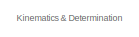
[diagram: root canvas - part 1/4, top center region]
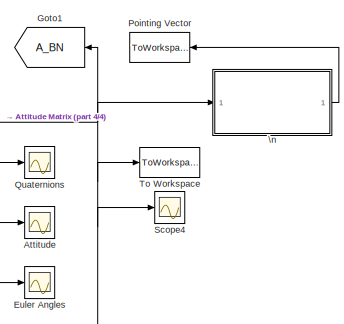
[diagram: root canvas - part 2/4, top right region]
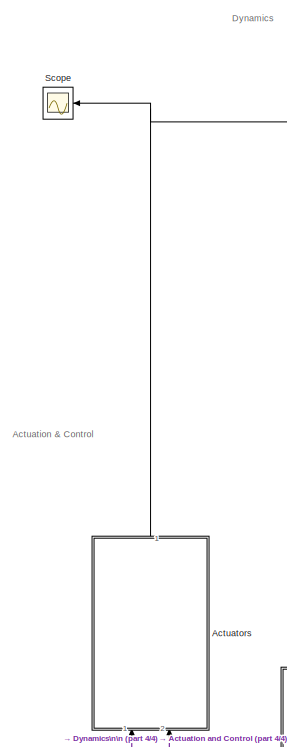
[diagram: root canvas - part 3/4, left side, full height]
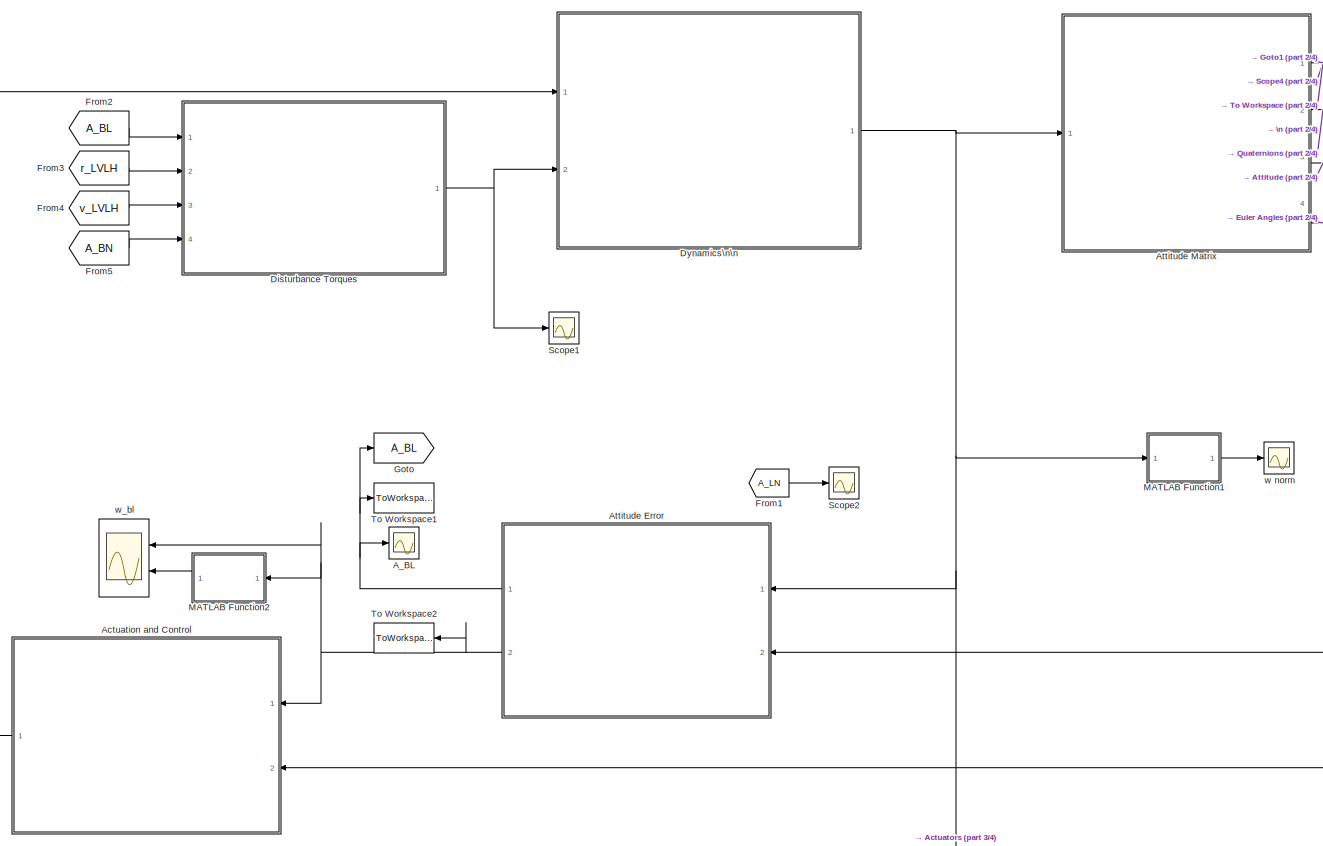
[diagram: root canvas - part 4/4, center side, full height]
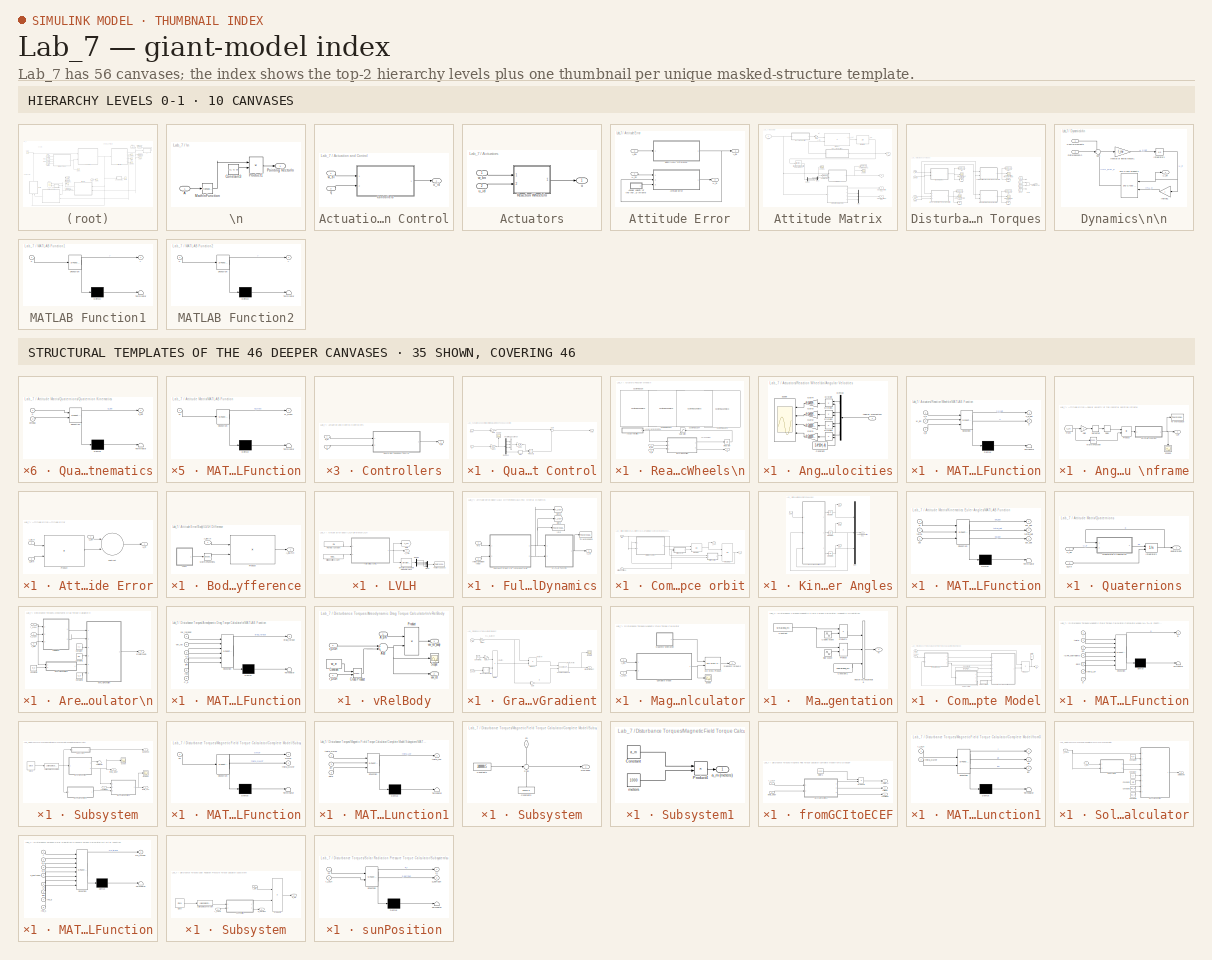
[diagram: thumbnail index - top-2 hierarchy levels (10 canvases) + 35 structural-template representatives of the remaining 46 canvases]
MODEL Lab_7
KIND model
BLOCK [Scope] A_BL
  Floating = off
  NumInputPorts = 1
  Ports = [1]
  SID = 1139
  ScopeSpecificationString = Simulink.scopes.TimeScopeBlockCfg('CurrentConfiguration', extmgr.ConfigurationSet(extmgr.Configuration('Core','General UI',true),extmgr.Configuration('Core','Source UI',true),extmgr.Configuration('Sources','WiredSimulink',true,'DataLoggingVariableName','ScopeData1'),extmgr.Configuration('Visuals','Time Domain',true,'SerializedDisplays',{struct('MinYLimReal','-1.24956','MaxYLimReal','1.24607','YLab...<+1593ch>
BLOCK [SubSystem] Actuation and Control
  Ports = [2, 1]
  RequestExecContextInheritance = off
  SID = 1421
BLOCK [SubSystem] Actuation and Control/Controllers
  Ports = [2, 1]
  RequestExecContextInheritance = off
  SID = 1476
BLOCK [SubSystem] Actuation and Control/Controllers/Quaternion Feedback Control
  Ports = [2, 1]
  RequestExecContextInheritance = off
  SID = 1482
BLOCK [Demux] Actuation and Control/Controllers/Quaternion Feedback Control/Demux2
  DisplayOption = bar
  Ports = [1, 4]
  SID = 1463
BLOCK [Gain] Actuation and Control/Controllers/Quaternion Feedback Control/Gain
  Gain = k_p
  OutDataTypeStr = Inherit: Inherit via internal rule
  ParamDataTypeStr = Inherit: Inherit via internal rule
  SID = 1472
  SaturateOnIntegerOverflow = off
BLOCK [Gain] Actuation and Control/Controllers/Quaternion Feedback Control/Gain1
  Gain = k_d
  OutDataTypeStr = Inherit: Inherit via internal rule
  ParamDataTypeStr = Inherit: Inherit via internal rule
  SID = 1465
  SaturateOnIntegerOverflow = off
BLOCK [Gain] Actuation and Control/Controllers/Quaternion Feedback Control/Gain2
  Gain = Q_C
  Multiplication = Matrix(K*u)
  OutDataTypeStr = Inherit: Inherit via internal rule
  ParamDataTypeStr = Inherit: Inherit via internal rule
  SID = 1466
  SaturateOnIntegerOverflow = off
BLOCK [Product] Actuation and Control/Controllers/Quaternion Feedback Control/Product2
  InputSameDT = off
  OutDataTypeStr = Inherit: Inherit via internal rule
  Ports = [2, 1]
  RndMeth = Floor
  SID = 1467
  SaturateOnIntegerOverflow = off
BLOCK [Scope] Actuation and Control/Controllers/Quaternion Feedback Control/Scope
  Floating = off
  NumInputPorts = 1
  Ports = [1]
  SID = 1468
  ScopeSpecificationString = Simulink.scopes.TimeScopeBlockCfg('CurrentConfiguration', extmgr.ConfigurationSet(extmgr.Configuration('Core','General UI',true),extmgr.Configuration('Core','Source UI',true),extmgr.Configuration('Sources','WiredSimulink',true,'DataLoggingVariableName','ScopeData9'),extmgr.Configuration('Visuals','Time Domain',true,'SerializedDisplays',{struct('MinYLimReal','-1.152','MaxYLimReal','1.239','YLabelRe...<+1382ch>
BLOCK [Signum] Actuation and Control/Controllers/Quaternion Feedback Control/Sign
  SID = 1469
BLOCK [Sum] Actuation and Control/Controllers/Quaternion Feedback Control/Sum
  IconShape = round
  InputSameDT = off
  Inputs = |++
  OutDataTypeStr = Inherit: Inherit via internal rule
  Ports = [2, 1]
  SID = 1455
  SaturateOnIntegerOverflow = off
BLOCK [Concatenate] Actuation and Control/Controllers/Quaternion Feedback Control/Vector\nConcatenate1
  NumInputs = 3
  Ports = [3, 1]
  SID = 1471
BLOCK [Inport] Actuation and Control/Controllers/Quaternion Feedback Control/q
  IconDisplay = Port number
  Port = 2
  SID = 1484
BLOCK [Outport] Actuation and Control/Controllers/Quaternion Feedback Control/u_id
  IconDisplay = Port number
  SID = 1487
BLOCK [Inport] Actuation and Control/Controllers/Quaternion Feedback Control/w_bl
  IconDisplay = Port number
  SID = 1483
BLOCK [Inport] Actuation and Control/Controllers/q
  IconDisplay = Port number
  Port = 2
  SID = 1478
BLOCK [Outport] Actuation and Control/Controllers/u_id
  IconDisplay = Port number
  SID = 1481
BLOCK [Inport] Actuation and Control/Controllers/w_bl
  IconDisplay = Port number
  SID = 1477
BLOCK [Inport] Actuation and Control/q
  IconDisplay = Port number
  Port = 2
  SID = 1423
BLOCK [Outport] Actuation and Control/u_id
  IconDisplay = Port number
  SID = 1460
BLOCK [Inport] Actuation and Control/w_bl
  IconDisplay = Port number
  SID = 1422
BLOCK [SubSystem] Actuators
  Ports = [2, 1]
  RequestExecContextInheritance = off
  SID = 1445
BLOCK [SubSystem] Actuators/Reaction Wheels\n
  Ports = [2, 1]
  RequestExecContextInheritance = off
  SID = 1562
BLOCK [SubSystem] Actuators/Reaction Wheels\n/Angular Velocities
  Ports = [1]
  RequestExecContextInheritance = off
  SID = 1575
BLOCK [Inport] Actuators/Reaction Wheels\n/Angular Velocities/Angular Momentum
  IconDisplay = Port number
  SID = 1576
BLOCK [Constant] Actuators/Reaction Wheels\n/Angular Velocities/Constant
  SID = 1557
  Value = 3.4*10^(-4)
BLOCK [Demux] Actuators/Reaction Wheels\n/Angular Velocities/Demux
  DisplayOption = bar
  Ports = [1, 4]
  SID = 1552
BLOCK [Product] Actuators/Reaction Wheels\n/Angular Velocities/Divide
  InputSameDT = off
  Inputs = */
  OutDataTypeStr = Inherit: Inherit via internal rule
  Ports = [2, 1]
  RndMeth = Floor
  SID = 1553
  SaturateOnIntegerOverflow = off
BLOCK [Product] Actuators/Reaction Wheels\n/Angular Velocities/Divide1
  InputSameDT = off
  Inputs = */
  OutDataTypeStr = Inherit: Inherit via internal rule
  Ports = [2, 1]
  RndMeth = Floor
  SID = 1554
  SaturateOnIntegerOverflow = off
BLOCK [Product] Actuators/Reaction Wheels\n/Angular Velocities/Divide2
  InputSameDT = off
  Inputs = */
  OutDataTypeStr = Inherit: Inherit via internal rule
  Ports = [2, 1]
  RndMeth = Floor
  SID = 1555
  SaturateOnIntegerOverflow = off
BLOCK [Product] Actuators/Reaction Wheels\n/Angular Velocities/Divide3
  InputSameDT = off
  Inputs = */
  OutDataTypeStr = Inherit: Inherit via internal rule
  Ports = [2, 1]
  RndMeth = Floor
  SID = 1556
  SaturateOnIntegerOverflow = off
BLOCK [Gain] Actuators/Reaction Wheels\n/Angular Velocities/Gain1
  Gain = 9.5492965964254
  OutDataTypeStr = Inherit: Inherit via internal rule
  ParamDataTypeStr = Inherit: Inherit via internal rule
  SID = 1540
  SaturateOnIntegerOverflow = off
BLOCK [Gain] Actuators/Reaction Wheels\n/Angular Velocities/Gain2
  Gain = 9.5492965964254
  OutDataTypeStr = Inherit: Inherit via internal rule
  ParamDataTypeStr = Inherit: Inherit via internal rule
  SID = 1559
  SaturateOnIntegerOverflow = off
BLOCK [Gain] Actuators/Reaction Wheels\n/Angular Velocities/Gain3
  Gain = 9.5492965964254
  OutDataTypeStr = Inherit: Inherit via internal rule
  ParamDataTypeStr = Inherit: Inherit via internal rule
  SID = 1560
  SaturateOnIntegerOverflow = off
BLOCK [Gain] Actuators/Reaction Wheels\n/Angular Velocities/Gain4
  Gain = 9.5492965964254
  OutDataTypeStr = Inherit: Inherit via internal rule
  ParamDataTypeStr = Inherit: Inherit via internal rule
  SID = 1561
  SaturateOnIntegerOverflow = off
BLOCK [Scope] Actuators/Reaction Wheels\n/Angular Velocities/Scope
  Floating = off
  NumInputPorts = 4
  Ports = [4]
  SID = 1558
  ScopeSpecificationString = Simulink.scopes.TimeScopeBlockCfg('CurrentConfiguration', extmgr.ConfigurationSet(extmgr.Configuration('Core','General UI',true),extmgr.Configuration('Core','Source UI',true),extmgr.Configuration('Sources','WiredSimulink',true,'DataLoggingVariableName','ScopeData4'),extmgr.Configuration('Visuals','Time Domain',true,'SerializedDisplays',{struct('MinYLimReal','-520.46576','MaxYLimReal','422.1388','Y...<+1400ch>
BLOCK [CustomGaugeBlock] Actuators/Reaction Wheels\n/Custom Gauge
  BackgroundImage = data:image/svg+xml;base64,PD94bWwgdmVyc2lvbj0iMS4wIiBlbmNvZGluZz0iVVRGLTgiIHN0YW5kYWxvbmU9Im5vIj8+CjwhLS0gR2VuZXJhdG9yOiBBZG9iZSBJbGx1c3RyYXRvciAxOS4yLjEsIFNWRyBFeHBvcnQgUGx1Zy1JbiAuIFNWRyBWZXJzaW9uOiA2LjAwIEJ1aWxkIDApICAtLT4KCjxzdmcKICAgeG1sbnM6ZGM9Imh0dHA6Ly9wdXJsLm9yZy9kYy9lbGVtZW50cy8xLjEvIgogICB4bWxuczpjYz0iaHR0cDovL2NyZWF0aXZlY29tbW9ucy5vcmcvbnMjIgogICB4bWxuczpyZGY9Imh0dHA6Ly93d3cudzMub3JnLz...<+9686ch>  <repeated x4 — deduplicated; at blocks: Custom Gauge, Custom Gauge1, Custom Gauge3, Custom Gauge4>
  BindingPersistence = DataTag0
  GaugeArcDefined = true
  GaugeArcRadius = 0.1358563990074277
  GaugeArcRatio = 0.8333333333333
  GaugeArcRotation = 240.5385250290321
  GaugeArcStrokeWidth = 0.03972965542329953
  GaugeArcTransparency = 0
  GaugeMax = 6000
  GaugeMin = -6000
  GaugeTickColor = #faf5c8
  NeedleHeight = 0.11602152693163792
  NeedleImage = data:image/svg+xml;base64,PD94bWwgdmVyc2lvbj0iMS4wIiBlbmNvZGluZz0idXRmLTgiPz4KPCEtLSBHZW5lcmF0b3I6IEFkb2JlIElsbHVzdHJhdG9yIDE5LjIuMSwgU1ZHIEV4cG9ydCBQbHVnLUluIC4gU1ZHIFZlcnNpb246IDYuMDAgQnVpbGQgMCkgIC0tPgo8c3ZnIHZlcnNpb249IjEuMSIgeG1sbnM9Imh0dHA6Ly93d3cudzMub3JnLzIwMDAvc3ZnIiB4bWxuczp4bGluaz0iaHR0cDovL3d3dy53My5vcmcvMTk5OS94bGluayIgeD0iMHB4IiB5PSIwcHgiCgkgdmlld0JveD0iMCAwIDIwMCA1MCIgc3R5bGU9ImVuYW...<+9966ch>  <repeated x4 — deduplicated; at blocks: Custom Gauge, Custom Gauge1, Custom Gauge3, Custom Gauge4>
  NeedleInitialRotation = -59.94322499147643
  NeedleWidth = 0.1911368983686954
  NeedleXPos = 0.3802298124325669
  NeedleYPos = 0.48117305677424654
  SID = 1566
  ScaleColorsJSON = []
  ValueArcColor = #1759b0
  WebBlockId = 1566
  fixedAspectRatio = on
BLOCK [CustomGaugeBlock] Actuators/Reaction Wheels\n/Custom Gauge1
  BindingPersistence = DataTag1
  GaugeArcDefined = true
  GaugeArcRadius = 0.1358563990074277
  GaugeArcRatio = 0.8333333333333
  GaugeArcRotation = 240.5385250290321
  GaugeArcStrokeWidth = 0.03972965542329953
  GaugeArcTransparency = 0
  GaugeMax = 6000
  GaugeMin = -6000
  GaugeTickColor = #faf5c8
  NeedleHeight = 0.11602152693163792
  NeedleInitialRotation = -59.94322499147643
  NeedleWidth = 0.1911368983686954
  NeedleXPos = 0.3802298124325669
  NeedleYPos = 0.48117305677424654
  SID = 1574
  ScaleColorsJSON = []
  ValueArcColor = #1759b0
  WebBlockId = 1574
  fixedAspectRatio = on
BLOCK [CustomGaugeBlock] Actuators/Reaction Wheels\n/Custom Gauge3
  BindingPersistence = DataTag2
  GaugeArcDefined = true
  GaugeArcRadius = 0.1358563990074277
  GaugeArcRatio = 0.8333333333333
  GaugeArcRotation = 240.5385250290321
  GaugeArcStrokeWidth = 0.03972965542329953
  GaugeArcTransparency = 0
  GaugeMax = 6000
  GaugeMin = -6000
  GaugeTickColor = #faf5c8
  NeedleHeight = 0.11602152693163792
  NeedleInitialRotation = -59.94322499147643
  NeedleWidth = 0.1911368983686954
  NeedleXPos = 0.3802298124325669
  NeedleYPos = 0.48117305677424654
  SID = 1572
  ScaleColorsJSON = []
  ValueArcColor = #1759b0
  WebBlockId = 1572
  fixedAspectRatio = on
BLOCK [CustomGaugeBlock] Actuators/Reaction Wheels\n/Custom Gauge4
  BindingPersistence = DataTag3
  GaugeArcDefined = true
  GaugeArcRadius = 0.1358563990074277
  GaugeArcRatio = 0.8333333333333
  GaugeArcRotation = 240.5385250290321
  GaugeArcStrokeWidth = 0.03972965542329953
  GaugeArcTransparency = 0
  GaugeMax = 6000
  GaugeMin = -6000
  GaugeTickColor = #faf5c8
  NeedleHeight = 0.11602152693163792
  NeedleInitialRotation = -59.94322499147643
  NeedleWidth = 0.1911368983686954
  NeedleXPos = 0.3802298124325669
  NeedleYPos = 0.48117305677424654
  SID = 1573
  ScaleColorsJSON = []
  ValueArcColor = #1759b0
  WebBlockId = 1573
  fixedAspectRatio = on
BLOCK [Integrator] Actuators/Reaction Wheels\n/Integrator
  InitialCondition = [0,0,0,0]
  LimitOutput = on
  LowerSaturationLimit = -0.02
  Ports = [1, 1]
  SID = 1448
  UpperSaturationLimit = 0.02
BLOCK [SubSystem] Actuators/Reaction Wheels\n/MATLAB Function
  ErrorFcn = Stateflow.Translate.translate
  PermitHierarchicalResolution = ExplicitOnly
  Ports = [3, 2]
  RequestExecContextInheritance = off
  SFBlockType = MATLAB Function
  SID = 1449
  TreatAsAtomicUnit = on
BLOCK [Demux] Actuators/Reaction Wheels\n/MATLAB Function/ Demux 
  Outputs = 1
  Ports = [1, 1]
  SID = 1449::29
BLOCK [S-Function] Actuators/Reaction Wheels\n/MATLAB Function/ SFunction 
  EnableBusSupport = on
  FunctionName = sf_sfun
  PortCounts = [3 3]
  Ports = [3, 3]
  SFcnIsStateOwnerBlock = off
  SFunctionDeploymentMode = off
  SID = 1449::28
  Tag = Stateflow S-Function Lab_7 16
BLOCK [Terminator] Actuators/Reaction Wheels\n/MATLAB Function/ Terminator 
  SID = 1449::30
BLOCK [Inport] Actuators/Reaction Wheels\n/MATLAB Function/h_d
  IconDisplay = Port number
  SID = 1449::23
BLOCK [Outport] Actuators/Reaction Wheels\n/MATLAB Function/h_d_dot
  IconDisplay = Port number
  SID = 1449::26
BLOCK [Outport] Actuators/Reaction Wheels\n/MATLAB Function/u
  IconDisplay = Port number
  Port = 2
  SID = 1449::27
BLOCK [Inport] Actuators/Reaction Wheels\n/MATLAB Function/u_id
  IconDisplay = Port number
  Port = 3
  SID = 1449::25
BLOCK [Inport] Actuators/Reaction Wheels\n/MATLAB Function/w_bn
  IconDisplay = Port number
  Port = 2
  SID = 1449::24
BLOCK [Saturate] Actuators/Reaction Wheels\n/Saturation
  InputPortMap = u0
  LowerLimit = -0.2
  Ports = [1, 1]
  SID = 1450
  UpperLimit = 0.2
BLOCK [Outport] Actuators/Reaction Wheels\n/u
  IconDisplay = Port number
  SID = 1565
BLOCK [Inport] Actuators/Reaction Wheels\n/u_id
  IconDisplay = Port number
  Port = 2
  SID = 1564
BLOCK [Inport] Actuators/Reaction Wheels\n/w_bn
  IconDisplay = Port number
  SID = 1563
BLOCK [Outport] Actuators/u
  IconDisplay = Port number
  SID = 1452
BLOCK [Inport] Actuators/u_id
  IconDisplay = Port number
  Port = 2
  SID = 1447
BLOCK [Inport] Actuators/w_bn
  IconDisplay = Port number
  SID = 1446
BLOCK [Scope] Attitude
  Floating = off
  NumInputPorts = 1
  Ports = [1]
  SID = 1140
  ScopeSpecificationString = Simulink.scopes.TimeScopeBlockCfg('CurrentConfiguration', extmgr.ConfigurationSet(extmgr.Configuration('Core','General UI',true),extmgr.Configuration('Core','Source UI',true),extmgr.Configuration('Sources','WiredSimulink',true,'DataLoggingVariableName','ScopeData2'),extmgr.Configuration('Visuals','Time Domain',true,'SerializedDisplays',{struct('MinYLimReal','-3.00854','MaxYLimReal','2.65787','YLab...<+1540ch>
BLOCK [SubSystem] Attitude Error
  Ports = [2, 2]
  RequestExecContextInheritance = off
  SID = 1141
BLOCK [Outport] Attitude Error/A_BL
  IconDisplay = Port number
  SID = 1202
BLOCK [Inport] Attitude Error/A_BN
  IconDisplay = Port number
  Port = 2
  SID = 1143
BLOCK [SubSystem] Attitude Error/Angular velocity of the \norbital pointing \nframe
  Ports = [0, 1]
  RequestExecContextInheritance = off
  SID = 1144
BLOCK [Delay] Attitude Error/Angular velocity of the \norbital pointing \nframe/Delay
  DelayLength = 1
  InputPortMap = u0
  Ports = [1, 1]
  SID = 1475
BLOCK [Derivative] Attitude Error/Angular velocity of the \norbital pointing \nframe/Derivative
  SID = 1145
BLOCK [From] Attitude Error/Angular velocity of the \norbital pointing \nframe/From
  GotoTag = A_LN
  SID = 1146
  TagVisibility = global
BLOCK [Gain] Attitude Error/Angular velocity of the \norbital pointing \nframe/Gain
  Gain = -1
  OutDataTypeStr = Inherit: Inherit via internal rule
  ParamDataTypeStr = Inherit: Inherit via internal rule
  SID = 1147
  SaturateOnIntegerOverflow = off
BLOCK [SubSystem] Attitude Error/Angular velocity of the \norbital pointing \nframe/MATLAB Function
  ErrorFcn = Stateflow.Translate.translate
  PermitHierarchicalResolution = ExplicitOnly
  Ports = [1, 1]
  RequestExecContextInheritance = off
  SFBlockType = MATLAB Function
  SID = 1148
  TreatAsAtomicUnit = on
BLOCK [Demux] Attitude Error/Angular velocity of the \norbital pointing \nframe/MATLAB Function/ Demux 
  Outputs = 1
  Ports = [1, 1]
  SID = 1148::23
BLOCK [S-Function] Attitude Error/Angular velocity of the \norbital pointing \nframe/MATLAB Function/ SFunction 
  EnableBusSupport = on
  FunctionName = sf_sfun
  PortCounts = [1 2]
  Ports = [1, 2]
  SFcnIsStateOwnerBlock = off
  SFunctionDeploymentMode = off
  SID = 1148::22
  Tag = Stateflow S-Function Lab_7 8
BLOCK [Terminator] Attitude Error/Angular velocity of the \norbital pointing \nframe/MATLAB Function/ Terminator 
  SID = 1148::24
BLOCK [Outport] Attitude Error/Angular velocity of the \norbital pointing \nframe/MATLAB Function/w_ln
  IconDisplay = Port number
  SID = 1148::5
BLOCK [Inport] Attitude Error/Angular velocity of the \norbital pointing \nframe/MATLAB Function/w_ln_cross
  IconDisplay = Port number
  SID = 1148::1
BLOCK [Math] Attitude Error/Angular velocity of the \norbital pointing \nframe/Math\nFunction
  Operator = transpose
  Ports = [1, 1]
  SID = 1149
BLOCK [Product] Attitude Error/Angular velocity of the \norbital pointing \nframe/Product
  InputSameDT = off
  Multiplication = Matrix(*)
  OutDataTypeStr = Inherit: Inherit via internal rule
  Ports = [2, 1]
  RndMeth = Floor
  SID = 1150
  SaturateOnIntegerOverflow = off
BLOCK [Scope] Attitude Error/Angular velocity of the \norbital pointing \nframe/Scope3
  Floating = off
  NumInputPorts = 1
  Ports = [1]
  SID = 1151
  ScopeSpecificationString = Simulink.scopes.TimeScopeBlockCfg('CurrentConfiguration', extmgr.ConfigurationSet(extmgr.Configuration('Core','General UI',true),extmgr.Configuration('Core','Source UI',true),extmgr.Configuration('Sources','WiredSimulink',true,'DataLoggingVariableName','ScopeData1'),extmgr.Configuration('Visuals','Time Domain',true,'SerializedDisplays',{struct('MinYLimReal','-0.00118','MaxYLimReal','-0.00054','YLa...<+1489ch>
BLOCK [ToWorkspace] Attitude Error/Angular velocity of the \norbital pointing \nframe/To Workspace
  FixptAsFi = on
  MaxDataPoints = inf
  Ports = [1]
  SID = 1152
  SampleTime = -1
  Save2DSignal = 3-D array (concatenate along third dimension)
  VariableName = w_ln
BLOCK [Outport] Attitude Error/Angular velocity of the \norbital pointing \nframe/ω_ln
  IconDisplay = Port number
  SID = 1153
BLOCK [SubSystem] Attitude Error/Attitude Error
  Ports = [3, 1]
  RequestExecContextInheritance = off
  SID = 1154
BLOCK [Inport] Attitude Error/Attitude Error/A_BL\n
  IconDisplay = Port number
  Port = 2
  SID = 1156
BLOCK [Product] Attitude Error/Attitude Error/Product
  InputSameDT = off
  Multiplication = Matrix(*)
  OutDataTypeStr = Inherit: Inherit via internal rule
  Ports = [2, 1]
  RndMeth = Floor
  SID = 1158
  SaturateOnIntegerOverflow = off
BLOCK [Sum] Attitude Error/Attitude Error/Subtract
  InputSameDT = off
  Inputs = +-
  OutDataTypeStr = Inherit: Inherit via internal rule
  Ports = [2, 1]
  SID = 1159
  SaturateOnIntegerOverflow = off
BLOCK [Outport] Attitude Error/Attitude Error/ω_bl
  IconDisplay = Port number
  SID = 1160
BLOCK [Inport] Attitude Error/Attitude Error/ω_bn
  IconDisplay = Port number
  SID = 1155
BLOCK [Inport] Attitude Error/Attitude Error/ω_ln\n
  IconDisplay = Port number
  Port = 3
  SID = 1157
BLOCK [SubSystem] Attitude Error/Body\\LVLH Difference
  Ports = [1, 1]
  RequestExecContextInheritance = off
  SID = 1161
BLOCK [Outport] Attitude Error/Body\\LVLH Difference/A_BL\n\n 
  IconDisplay = Port number
  SID = 1201
BLOCK [Inport] Attitude Error/Body\\LVLH Difference/A_BN\n
  IconDisplay = Port number
  SID = 1162
BLOCK [SubSystem] Attitude Error/Body\\LVLH Difference/LVLH
  Ports = [0, 1]
  RequestExecContextInheritance = off
  SID = 1163
BLOCK [Outport] Attitude Error/Body\\LVLH Difference/LVLH/A_LN\n
  IconDisplay = Port number
  SID = 1198
BLOCK [Demux] Attitude Error/Body\\LVLH Difference/LVLH/Demux
  DisplayOption = bar
  Ports = [1, 4]
  SID = 1164
BLOCK [Reference] Attitude Error/Body\\LVLH Difference/LVLH/Direction Cosine Matrix \nto Quaternions  REF=sharedtransform/Direction Cosine Matrix \nto Quaternions
  Ports = [1, 1]
  SID = 1165
  SourceBlock = sharedtransform/Direction Cosine Matrix \nto Quaternions
  SourceProductBaseCode = AE
  SourceProductName = Aerospace Blockset
  SourceType = DCM2Quaternion
  aMode = 0
  action = None
  tolerance = eps(2)
BLOCK [SubSystem] Attitude Error/Body\\LVLH Difference/LVLH/Full Orbital Dynamics
  Ports = [2, 1]
  RequestExecContextInheritance = off
  SID = 1166
BLOCK [Outport] Attitude Error/Body\\LVLH Difference/LVLH/Full Orbital Dynamics/A_LN
  IconDisplay = Port number
  SID = 1192
BLOCK [SubSystem] Attitude Error/Body\\LVLH Difference/LVLH/Full Orbital Dynamics/Compute R and V of reference orbit
  Ports = [2, 2]
  RequestExecContextInheritance = off
  SID = 1170
BLOCK [Inport] Attitude Error/Body\\LVLH Difference/LVLH/Full Orbital Dynamics/Compute R and V of reference orbit/Initial Conditions
  IconDisplay = Port number
  Port = 2
  SID = 1172
BLOCK [SubSystem] Attitude Error/Body\\LVLH Difference/LVLH/Full Orbital Dynamics/Compute R and V of reference orbit/Initial Position
  Ports = [2, 1]
  RequestExecContextInheritance = off
  SID = 1173
BLOCK [Inport] Attitude Error/Body\\LVLH Difference/LVLH/Full Orbital Dynamics/Compute R and V of reference orbit/Initial Position/Initial Conditions
  IconDisplay = Port number
  Port = 2
  SID = 1175
BLOCK [SubSystem] Attitude Error/Body\\LVLH Difference/LVLH/Full Orbital Dynamics/Compute R and V of reference orbit/Initial Position/MATLAB Function2
  ErrorFcn = Stateflow.Translate.translate
  PermitHierarchicalResolution = ExplicitOnly
  Ports = [2, 1]
  RequestExecContextInheritance = off
  SFBlockType = MATLAB Function
  SID = 1176
  TreatAsAtomicUnit = on
BLOCK [Demux] Attitude Error/Body\\LVLH Difference/LVLH/Full Orbital Dynamics/Compute R and V of reference orbit/Initial Position/MATLAB Function2/ Demux 
  Outputs = 1
  Ports = [1, 1]
  SID = 1176::33
BLOCK [S-Function] Attitude Error/Body\\LVLH Difference/LVLH/Full Orbital Dynamics/Compute R and V of reference orbit/Initial Position/MATLAB Function2/ SFunction 
  EnableBusSupport = on
  FunctionName = sf_sfun
  PortCounts = [2 2]
  Ports = [2, 2]
  SFcnIsStateOwnerBlock = off
  SFunctionDeploymentMode = off
  SID = 1176::32
  Tag = Stateflow S-Function Lab_7 9
BLOCK [Terminator] Attitude Error/Body\\LVLH Difference/LVLH/Full Orbital Dynamics/Compute R and V of reference orbit/Initial Position/MATLAB Function2/ Terminator 
  SID = 1176::34
BLOCK [Inport] Attitude Error/Body\\LVLH Difference/LVLH/Full Orbital Dynamics/Compute R and V of reference orbit/Initial Position/MATLAB Function2/kep
  IconDisplay = Port number
  SID = 1176::30
BLOCK [Inport] Attitude Error/Body\\LVLH Difference/LVLH/Full Orbital Dynamics/Compute R and V of reference orbit/Initial Position/MATLAB Function2/mu
  IconDisplay = Port number
  Port = 2
  SID = 1176::31
BLOCK [Outport] Attitude Error/Body\\LVLH Difference/LVLH/Full Orbital Dynamics/Compute R and V of reference orbit/Initial Position/MATLAB Function2/r_0
  IconDisplay = Port number
  SID = 1176::5
BLOCK [Inport] Attitude Error/Body\\LVLH Difference/LVLH/Full Orbital Dynamics/Compute R and V of reference orbit/Initial Position/mu
  IconDisplay = Port number
  SID = 1174
BLOCK [Outport] Attitude Error/Body\\LVLH Difference/LVLH/Full Orbital Dynamics/Compute R and V of reference orbit/Initial Position/r_0
  IconDisplay = Port number
  SID = 1177
BLOCK [SubSystem] Attitude Error/Body\\LVLH Difference/LVLH/Full Orbital Dynamics/Compute R and V of reference orbit/Initial Velocity
  Ports = [2, 1]
  RequestExecContextInheritance = off
  SID = 1178
BLOCK [Inport] Attitude Error/Body\\LVLH Difference/LVLH/Full Orbital Dynamics/Compute R and V of reference orbit/Initial Velocity/Initial Conditions
  IconDisplay = Port number
  Port = 2
  SID = 1180
BLOCK [SubSystem] Attitude Error/Body\\LVLH Difference/LVLH/Full Orbital Dynamics/Compute R and V of reference orbit/Initial Velocity/MATLAB Function1
  ErrorFcn = Stateflow.Translate.translate
  PermitHierarchicalResolution = ExplicitOnly
  Ports = [2, 1]
  RequestExecContextInheritance = off
  SFBlockType = MATLAB Function
  SID = 1181
  TreatAsAtomicUnit = on
BLOCK [Demux] Attitude Error/Body\\LVLH Difference/LVLH/Full Orbital Dynamics/Compute R and V of reference orbit/Initial Velocity/MATLAB Function1/ Demux 
  Outputs = 1
  Ports = [1, 1]
  SID = 1181::35
BLOCK [S-Function] Attitude Error/Body\\LVLH Difference/LVLH/Full Orbital Dynamics/Compute R and V of reference orbit/Initial Velocity/MATLAB Function1/ SFunction 
  EnableBusSupport = on
  FunctionName = sf_sfun
  PortCounts = [2 2]
  Ports = [2, 2]
  SFcnIsStateOwnerBlock = off
  SFunctionDeploymentMode = off
  SID = 1181::34
  Tag = Stateflow S-Function Lab_7 10
BLOCK [Terminator] Attitude Error/Body\\LVLH Difference/LVLH/Full Orbital Dynamics/Compute R and V of reference orbit/Initial Velocity/MATLAB Function1/ Terminator 
  SID = 1181::36
BLOCK [Inport] Attitude Error/Body\\LVLH Difference/LVLH/Full Orbital Dynamics/Compute R and V of reference orbit/Initial Velocity/MATLAB Function1/kep
  IconDisplay = Port number
  SID = 1181::32
BLOCK [Inport] Attitude Error/Body\\LVLH Difference/LVLH/Full Orbital Dynamics/Compute R and V of reference orbit/Initial Velocity/MATLAB Function1/mu
  IconDisplay = Port number
  Port = 2
  SID = 1181::33
BLOCK [Outport] Attitude Error/Body\\LVLH Difference/LVLH/Full Orbital Dynamics/Compute R and V of reference orbit/Initial Velocity/MATLAB Function1/r_dot_0
  IconDisplay = Port number
  SID = 1181::5
BLOCK [Inport] Attitude Error/Body\\LVLH Difference/LVLH/Full Orbital Dynamics/Compute R and V of reference orbit/Initial Velocity/mu
  IconDisplay = Port number
  SID = 1179
BLOCK [Outport] Attitude Error/Body\\LVLH Difference/LVLH/Full Orbital Dynamics/Compute R and V of reference orbit/Initial Velocity/r_dot_0
  IconDisplay = Port number
  SID = 1182
BLOCK [Integrator] Attitude Error/Body\\LVLH Difference/LVLH/Full Orbital Dynamics/Compute R and V of reference orbit/Integrator
  ContinuousStateAttributes = 'velocity'
  InitialCondition = [r,v]=kep2car(kep,mu);
  InitialConditionSource = external
  Ports = [2, 1]
  SID = 1183
BLOCK [Integrator] Attitude Error/Body\\LVLH Difference/LVLH/Full Orbital Dynamics/Compute R and V of reference orbit/Integrator2
  ContinuousStateAttributes = 'position'
  InitialCondition = [r,v]=kep2car(kep,mu);
  InitialConditionSource = external
  Ports = [2, 1]
  SID = 1184
BLOCK [SubSystem] Attitude Error/Body\\LVLH Difference/LVLH/Full Orbital Dynamics/Compute R and V of reference orbit/Orbital Dynamics
  ErrorFcn = Stateflow.Translate.translate
  PermitHierarchicalResolution = ExplicitOnly
  Ports = [2, 1]
  RequestExecContextInheritance = off
  SFBlockType = MATLAB Function
  SID = 1185
  TreatAsAtomicUnit = on
BLOCK [Demux] Attitude Error/Body\\LVLH Difference/LVLH/Full Orbital Dynamics/Compute R and V of reference orbit/Orbital Dynamics/ Demux 
  Outputs = 1
  Ports = [1, 1]
  SID = 1185::31
BLOCK [S-Function] Attitude Error/Body\\LVLH Difference/LVLH/Full Orbital Dynamics/Compute R and V of reference orbit/Orbital Dynamics/ SFunction 
  EnableBusSupport = on
  FunctionName = sf_sfun
  PortCounts = [2 2]
  Ports = [2, 2]
  SFcnIsStateOwnerBlock = off
  SFunctionDeploymentMode = off
  SID = 1185::30
  Tag = Stateflow S-Function Lab_7 11
BLOCK [Terminator] Attitude Error/Body\\LVLH Difference/LVLH/Full Orbital Dynamics/Compute R and V of reference orbit/Orbital Dynamics/ Terminator 
  SID = 1185::32
BLOCK [Inport] Attitude Error/Body\\LVLH Difference/LVLH/Full Orbital Dynamics/Compute R and V of reference orbit/Orbital Dynamics/mu
  IconDisplay = Port number
  Port = 2
  SID = 1185::29
BLOCK [Inport] Attitude Error/Body\\LVLH Difference/LVLH/Full Orbital Dynamics/Compute R and V of reference orbit/Orbital Dynamics/r
  IconDisplay = Port number
  SID = 1185::1
BLOCK [Outport] Attitude Error/Body\\LVLH Difference/LVLH/Full Orbital Dynamics/Compute R and V of reference orbit/Orbital Dynamics/r_dot_dot
  IconDisplay = Port number
  SID = 1185::5
BLOCK [Inport] Attitude Error/Body\\LVLH Difference/LVLH/Full Orbital Dynamics/Compute R and V of reference orbit/mu
  IconDisplay = Port number
  SID = 1171
BLOCK [Outport] Attitude Error/Body\\LVLH Difference/LVLH/Full Orbital Dynamics/Compute R and V of reference orbit/r
  IconDisplay = Port number
  SID = 1186
BLOCK [Outport] Attitude Error/Body\\LVLH Difference/LVLH/Full Orbital Dynamics/Compute R and V of reference orbit/r_dot
  IconDisplay = Port number
  Port = 2
  SID = 1187
BLOCK [Goto] Attitude Error/Body\\LVLH Difference/LVLH/Full Orbital Dynamics/Goto
  GotoTag = r_LVLH
  SID = 1188
  TagVisibility = global
BLOCK [Goto] Attitude Error/Body\\LVLH Difference/LVLH/Full Orbital Dynamics/Goto1
  GotoTag = v_LVLH
  SID = 1189
  TagVisibility = global
BLOCK [Inport] Attitude Error/Body\\LVLH Difference/LVLH/Full Orbital Dynamics/Initial Condition (kep)
  IconDisplay = Port number
  Port = 2
  SID = 1168
BLOCK [SubSystem] Attitude Error/Body\\LVLH Difference/LVLH/Full Orbital Dynamics/MATLAB Function
  ErrorFcn = Stateflow.Translate.translate
  PermitHierarchicalResolution = ExplicitOnly
  Ports = [2, 1]
  RequestExecContextInheritance = off
  SFBlockType = MATLAB Function
  SID = 1190
  TreatAsAtomicUnit = on
BLOCK [Demux] Attitude Error/Body\\LVLH Difference/LVLH/Full Orbital Dynamics/MATLAB Function/ Demux 
  Outputs = 1
  Ports = [1, 1]
  SID = 1190::24
BLOCK [S-Function] Attitude Error/Body\\LVLH Difference/LVLH/Full Orbital Dynamics/MATLAB Function/ SFunction 
  EnableBusSupport = on
  FunctionName = sf_sfun
  PortCounts = [2 2]
  Ports = [2, 2]
  SFcnIsStateOwnerBlock = off
  SFunctionDeploymentMode = off
  SID = 1190::23
  Tag = Stateflow S-Function Lab_7 12
BLOCK [Terminator] Attitude Error/Body\\LVLH Difference/LVLH/Full Orbital Dynamics/MATLAB Function/ Terminator 
  SID = 1190::25
BLOCK [Outport] Attitude Error/Body\\LVLH Difference/LVLH/Full Orbital Dynamics/MATLAB Function/A_LN
  IconDisplay = Port number
  SID = 1190::5
BLOCK [Inport] Attitude Error/Body\\LVLH Difference/LVLH/Full Orbital Dynamics/MATLAB Function/r
  IconDisplay = Port number
  SID = 1190::1
BLOCK [Inport] Attitude Error/Body\\LVLH Difference/LVLH/Full Orbital Dynamics/MATLAB Function/r_dot
  IconDisplay = Port number
  Port = 2
  SID = 1190::22
BLOCK [ToWorkspace] Attitude Error/Body\\LVLH Difference/LVLH/Full Orbital Dynamics/To Workspace
  FixptAsFi = on
  MaxDataPoints = inf
  Ports = [1]
  SID = 1191
  SampleTime = -1
  Save2DSignal = 3-D array (concatenate along third dimension)
  VariableName = A_LN
BLOCK [ToWorkspace] Attitude Error/Body\\LVLH Difference/LVLH/Full Orbital Dynamics/\n\n
  MaxDataPoints = inf
  Ports = [1]
  SID = 1169
  SampleTime = -1
  Save2DSignal = 3-D array (concatenate along third dimension)
  VariableName = r_LVLH
BLOCK [Inport] Attitude Error/Body\\LVLH Difference/LVLH/Full Orbital Dynamics/mu
  IconDisplay = Port number
  SID = 1167
BLOCK [Goto] Attitude Error/Body\\LVLH Difference/LVLH/Goto
  GotoTag = A_LN
  SID = 1193
  TagVisibility = global
BLOCK [Constant] Attitude Error/Body\\LVLH Difference/LVLH/Initial Conditions (KEP)
  SID = 1194
  Value = [a, e, i, OMG, omg, theta]
BLOCK [Mux] Attitude Error/Body\\LVLH Difference/LVLH/Mux1
  DisplayOption = bar
  Ports = [4, 1]
  SID = 1195
BLOCK [Constant] Attitude Error/Body\\LVLH Difference/LVLH/Planetary Constant
  SID = 1196
  Value = mu
BLOCK [ToWorkspace] Attitude Error/Body\\LVLH Difference/LVLH/To Workspace3
  FixptAsFi = on
  MaxDataPoints = inf
  Ports = [1]
  SID = 1197
  SampleTime = -1
  Save2DSignal = 3-D array (concatenate along third dimension)
  VariableName = q_ALN
BLOCK [Math] Attitude Error/Body\\LVLH Difference/Math\nFunction1
  Operator = transpose
  Ports = [1, 1]
  SID = 1199
BLOCK [Product] Attitude Error/Body\\LVLH Difference/Product
  InputSameDT = off
  Multiplication = Matrix(*)
  OutDataTypeStr = Inherit: Inherit via internal rule
  Ports = [2, 1]
  RndMeth = Floor
  SID = 1200
  SaturateOnIntegerOverflow = off
BLOCK [Outport] Attitude Error/ω_bl
  IconDisplay = Port number
  Port = 2
  SID = 1203
BLOCK [Inport] Attitude Error/ω_bn
  IconDisplay = Port number
  SID = 1142
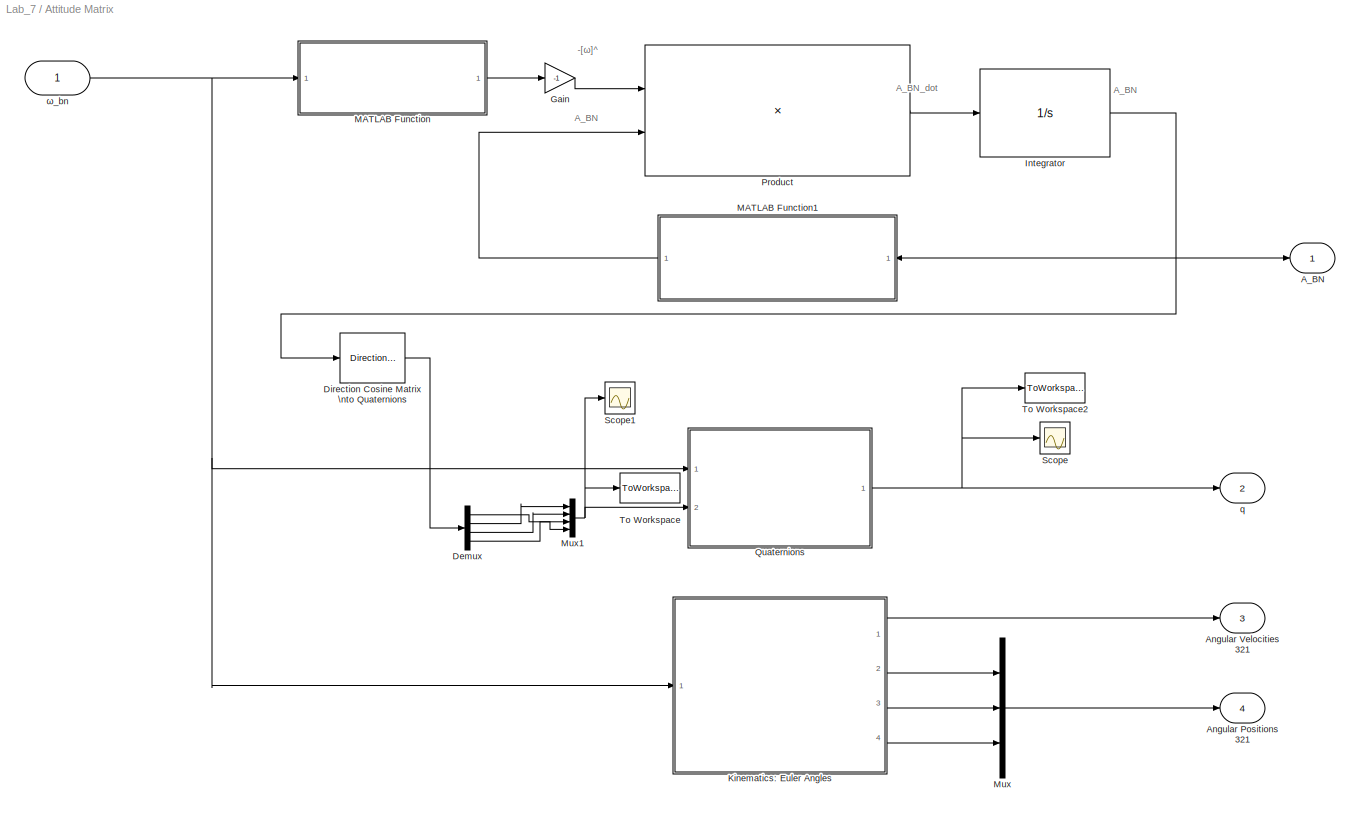
BLOCK [SubSystem] Attitude Matrix
  Ports = [1, 4]
  RequestExecContextInheritance = off
  SID = 1204
BLOCK [Outport] Attitude Matrix/A_BN
  IconDisplay = Port number
  SID = 1236
BLOCK [Outport] Attitude Matrix/Angular Positions 321
  IconDisplay = Port number
  Port = 4
  SID = 1239
BLOCK [Outport] Attitude Matrix/Angular Velocities 321
  IconDisplay = Port number
  Port = 3
  SID = 1238
BLOCK [Demux] Attitude Matrix/Demux
  DisplayOption = bar
  Ports = [1, 4]
  SID = 1206
BLOCK [Reference] Attitude Matrix/Direction Cosine Matrix \nto Quaternions  REF=sharedtransform/Direction Cosine Matrix \nto Quaternions
  Ports = [1, 1]
  SID = 1207
  SourceBlock = sharedtransform/Direction Cosine Matrix \nto Quaternions
  SourceProductBaseCode = AE
  SourceProductName = Aerospace Blockset
  SourceType = DCM2Quaternion
  aMode = 0
  action = None
  tolerance = eps(2)
BLOCK [Gain] Attitude Matrix/Gain
  Gain = -1
  OutDataTypeStr = Inherit: Inherit via internal rule
  ParamDataTypeStr = Inherit: Inherit via internal rule
  SID = 1208
  SaturateOnIntegerOverflow = off
BLOCK [Integrator] Attitude Matrix/Integrator
  InitialCondition = A_BN_0
  Ports = [1, 1]
  SID = 1209
BLOCK [SubSystem] Attitude Matrix/Kinematics: Euler Angles
  Ports = [1, 4]
  RequestExecContextInheritance = off
  SID = 1210
BLOCK [Outport] Attitude Matrix/Kinematics: Euler Angles/Angular Velocities 321
  IconDisplay = Port number
  SID = 1217
BLOCK [Integrator] Attitude Matrix/Kinematics: Euler Angles/Integrator
  InitialCondition = phi_0
  Ports = [1, 1]
  SID = 1212
BLOCK [Integrator] Attitude Matrix/Kinematics: Euler Angles/Integrator1
  InitialCondition = theta_0
  Ports = [1, 1]
  SID = 1213
BLOCK [Integrator] Attitude Matrix/Kinematics: Euler Angles/Integrator2
  InitialCondition = psi_0
  Ports = [1, 1]
  SID = 1214
BLOCK [SubSystem] Attitude Matrix/Kinematics: Euler Angles/MATLAB Function
  ErrorFcn = Stateflow.Translate.translate
  PermitHierarchicalResolution = ExplicitOnly
  Ports = [3, 3]
  RequestExecContextInheritance = off
  SFBlockType = MATLAB Function
  SID = 1215
  TreatAsAtomicUnit = on
BLOCK [Demux] Attitude Matrix/Kinematics: Euler Angles/MATLAB Function/ Demux 
  Outputs = 1
  Ports = [1, 1]
  SID = 1215::31
BLOCK [S-Function] Attitude Matrix/Kinematics: Euler Angles/MATLAB Function/ SFunction 
  EnableBusSupport = on
  FunctionName = sf_sfun
  PortCounts = [3 4]
  Ports = [3, 4]
  SFcnIsStateOwnerBlock = off
  SFunctionDeploymentMode = off
  SID = 1215::30
  Tag = Stateflow S-Function Lab_7 1
BLOCK [Terminator] Attitude Matrix/Kinematics: Euler Angles/MATLAB Function/ Terminator 
  SID = 1215::32
BLOCK [Outport] Attitude Matrix/Kinematics: Euler Angles/MATLAB Function/phi_dot
  IconDisplay = Port number
  SID = 1215::25
BLOCK [Inport] Attitude Matrix/Kinematics: Euler Angles/MATLAB Function/psi
  IconDisplay = Port number
  Port = 3
  SID = 1215::29
BLOCK [Outport] Attitude Matrix/Kinematics: Euler Angles/MATLAB Function/psi_dot
  IconDisplay = Port number
  Port = 3
  SID = 1215::27
BLOCK [Inport] Attitude Matrix/Kinematics: Euler Angles/MATLAB Function/tetha
  IconDisplay = Port number
  Port = 2
  SID = 1215::28
BLOCK [Outport] Attitude Matrix/Kinematics: Euler Angles/MATLAB Function/tetha_dot
  IconDisplay = Port number
  Port = 2
  SID = 1215::26
BLOCK [Inport] Attitude Matrix/Kinematics: Euler Angles/MATLAB Function/w
  IconDisplay = Port number
  SID = 1215::1
BLOCK [Mux] Attitude Matrix/Kinematics: Euler Angles/Mux
  DisplayOption = bar
  Inputs = 3
  Ports = [3, 1]
  SID = 1216
BLOCK [Outport] Attitude Matrix/Kinematics: Euler Angles/phi
  IconDisplay = Port number
  Port = 2
  SID = 1218
BLOCK [Outport] Attitude Matrix/Kinematics: Euler Angles/psi
  IconDisplay = Port number
  Port = 4
  SID = 1220
BLOCK [Outport] Attitude Matrix/Kinematics: Euler Angles/theta
  IconDisplay = Port number
  Port = 3
  SID = 1219
BLOCK [Inport] Attitude Matrix/Kinematics: Euler Angles/ω_bn
  IconDisplay = Port number
  SID = 1211
BLOCK [SubSystem] Attitude Matrix/MATLAB Function
  ErrorFcn = Stateflow.Translate.translate
  PermitHierarchicalResolution = ExplicitOnly
  Ports = [1, 1]
  RequestExecContextInheritance = off
  SFBlockType = MATLAB Function
  SID = 1221
  TreatAsAtomicUnit = on
BLOCK [Demux] Attitude Matrix/MATLAB Function/ Demux 
  Outputs = 1
  Ports = [1, 1]
  SID = 1221::20
BLOCK [S-Function] Attitude Matrix/MATLAB Function/ SFunction 
  EnableBusSupport = on
  FunctionName = sf_sfun
  PortCounts = [1 2]
  Ports = [1, 2]
  SFcnIsStateOwnerBlock = off
  SFunctionDeploymentMode = off
  SID = 1221::19
  Tag = Stateflow S-Function Lab_7 2
BLOCK [Terminator] Attitude Matrix/MATLAB Function/ Terminator 
  SID = 1221::21
BLOCK [Inport] Attitude Matrix/MATLAB Function/w
  IconDisplay = Port number
  SID = 1221::1
BLOCK [Outport] Attitude Matrix/MATLAB Function/w_cross
  IconDisplay = Port number
  SID = 1221::5
BLOCK [SubSystem] Attitude Matrix/MATLAB Function1
  ErrorFcn = Stateflow.Translate.translate
  PermitHierarchicalResolution = ExplicitOnly
  Ports = [1, 1]
  RequestExecContextInheritance = off
  SFBlockType = MATLAB Function
  SID = 1222
  TreatAsAtomicUnit = on
BLOCK [Demux] Attitude Matrix/MATLAB Function1/ Demux 
  Outputs = 1
  Ports = [1, 1]
  SID = 1222::23
BLOCK [S-Function] Attitude Matrix/MATLAB Function1/ SFunction 
  EnableBusSupport = on
  FunctionName = sf_sfun
  PortCounts = [1 2]
  Ports = [1, 2]
  SFcnIsStateOwnerBlock = off
  SFunctionDeploymentMode = off
  SID = 1222::22
  Tag = Stateflow S-Function Lab_7 3
BLOCK [Terminator] Attitude Matrix/MATLAB Function1/ Terminator 
  SID = 1222::24
BLOCK [Inport] Attitude Matrix/MATLAB Function1/u
  IconDisplay = Port number
  SID = 1222::1
BLOCK [Outport] Attitude Matrix/MATLAB Function1/y
  IconDisplay = Port number
  SID = 1222::5
BLOCK [Mux] Attitude Matrix/Mux
  DisplayOption = bar
  Inputs = 3
  Ports = [3, 1]
  SID = 1223
BLOCK [Mux] Attitude Matrix/Mux1
  DisplayOption = bar
  Ports = [4, 1]
  SID = 1224
BLOCK [Product] Attitude Matrix/Product
  InputSameDT = off
  Multiplication = Matrix(*)
  OutDataTypeStr = Inherit: Inherit via internal rule
  Ports = [2, 1]
  RndMeth = Floor
  SID = 1225
  SaturateOnIntegerOverflow = off
BLOCK [SubSystem] Attitude Matrix/Quaternions
  Ports = [2, 1]
  RequestExecContextInheritance = off
  SID = 1226
BLOCK [Integrator] Attitude Matrix/Quaternions/Integrator2
  InitialCondition = q_0
  InitialConditionSource = external
  Ports = [2, 1]
  SID = 1229
BLOCK [SubSystem] Attitude Matrix/Quaternions/Quaternion Kinematics
  ErrorFcn = Stateflow.Translate.translate
  PermitHierarchicalResolution = ExplicitOnly
  Ports = [2, 1]
  RequestExecContextInheritance = off
  SFBlockType = MATLAB Function
  SID = 1230
  TreatAsAtomicUnit = on
BLOCK [Demux] Attitude Matrix/Quaternions/Quaternion Kinematics/ Demux 
  Outputs = 1
  Ports = [1, 1]
  SID = 1230::29
BLOCK [S-Function] Attitude Matrix/Quaternions/Quaternion Kinematics/ SFunction 
  EnableBusSupport = on
  FunctionName = sf_sfun
  PortCounts = [2 2]
  Ports = [2, 2]
  SFcnIsStateOwnerBlock = off
  SFunctionDeploymentMode = off
  SID = 1230::28
  Tag = Stateflow S-Function Lab_7 4
BLOCK [Terminator] Attitude Matrix/Quaternions/Quaternion Kinematics/ Terminator 
  SID = 1230::30
BLOCK [Inport] Attitude Matrix/Quaternions/Quaternion Kinematics/omega
  IconDisplay = Port number
  Port = 2
  SID = 1230::18
BLOCK [Inport] Attitude Matrix/Quaternions/Quaternion Kinematics/q
  IconDisplay = Port number
  SID = 1230::1
BLOCK [Outport] Attitude Matrix/Quaternions/Quaternion Kinematics/q_dot
  IconDisplay = Port number
  SID = 1230::5
BLOCK [Inport] Attitude Matrix/Quaternions/q_0\n
  IconDisplay = Port number
  Port = 2
  SID = 1228
BLOCK [Outport] Attitude Matrix/Quaternions/quaternions
  IconDisplay = Port number
  SID = 1231
BLOCK [Inport] Attitude Matrix/Quaternions/ω_bn
  IconDisplay = Port number
  SID = 1227
BLOCK [Scope] Attitude Matrix/Scope
  Floating = off
  NumInputPorts = 1
  Ports = [1]
  SID = 1232
  ScopeSpecificationString = Simulink.scopes.TimeScopeBlockCfg('CurrentConfiguration', extmgr.ConfigurationSet(extmgr.Configuration('Core','General UI',true),extmgr.Configuration('Core','Source UI',true),extmgr.Configuration('Sources','WiredSimulink',true,'DataLoggingVariableName','ScopeData1'),extmgr.Configuration('Visuals','Time Domain',true,'SerializedDisplays',{struct('MinYLimReal','-0.80506','MaxYLimReal','1.2006','YLabe...<+1445ch>
BLOCK [Scope] Attitude Matrix/Scope1
  Floating = off
  NumInputPorts = 1
  Ports = [1]
  SID = 1233
  ScopeSpecificationString = Simulink.scopes.TimeScopeBlockCfg('CurrentConfiguration', extmgr.ConfigurationSet(extmgr.Configuration('Core','General UI',true),extmgr.Configuration('Core','Source UI',true),extmgr.Configuration('Sources','WiredSimulink',true,'DataLoggingVariableName','ScopeData2'),extmgr.Configuration('Visuals','Time Domain',true,'SerializedDisplays',{struct('MinYLimReal','-1.09716','MaxYLimReal','1.23302','YLab...<+1425ch>
BLOCK [ToWorkspace] Attitude Matrix/To Workspace
  FixptAsFi = on
  MaxDataPoints = inf
  Ports = [1]
  SID = 1234
  SampleTime = -1
  Save2DSignal = 3-D array (concatenate along third dimension)
  VariableName = q_from_ABN
BLOCK [ToWorkspace] Attitude Matrix/To Workspace2
  FixptAsFi = on
  MaxDataPoints = inf
  Ports = [1]
  SID = 1235
  SampleTime = -1
  Save2DSignal = 3-D array (concatenate along third dimension)
  VariableName = q
BLOCK [Outport] Attitude Matrix/q
  IconDisplay = Port number
  Port = 2
  SID = 1237
BLOCK [Inport] Attitude Matrix/ω_bn
  IconDisplay = Port number
  PortDimensions = 3
  SID = 1205
  Unit = rad/s
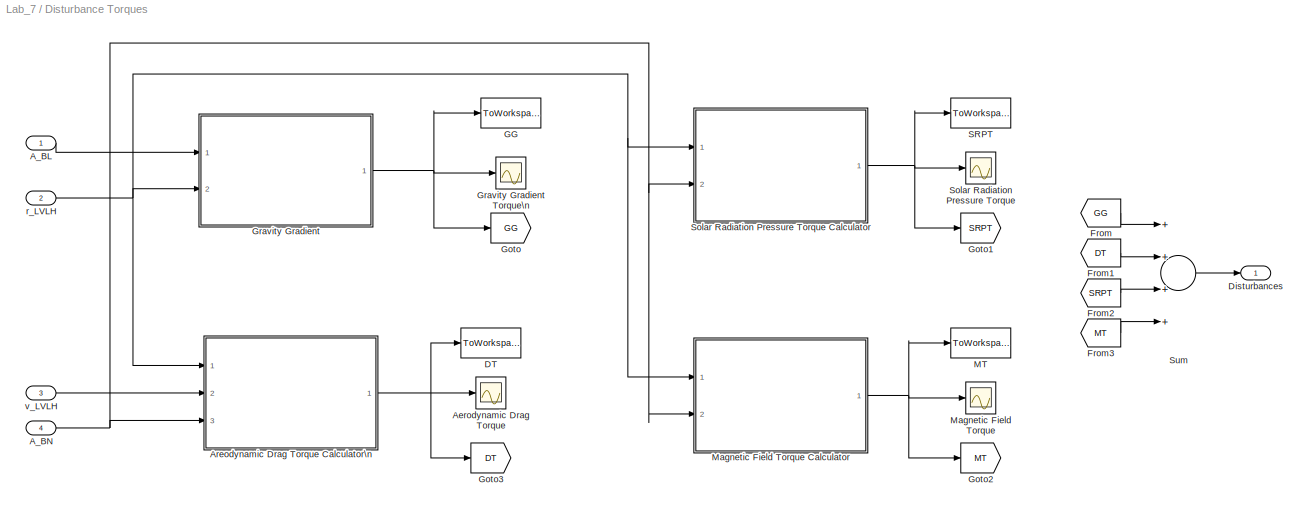
BLOCK [SubSystem] Disturbance Torques
  Ports = [4, 1]
  RequestExecContextInheritance = off
  SID = 1255
BLOCK [Inport] Disturbance Torques/A_BL
  IconDisplay = Port number
  SID = 1256
BLOCK [Inport] Disturbance Torques/A_BN
  IconDisplay = Port number
  Port = 4
  SID = 1259
BLOCK [Scope] Disturbance Torques/Aerodynamic Drag Torque
  Floating = off
  NumInputPorts = 1
  Ports = [1]
  SID = 1260
  ScopeSpecificationString = Simulink.scopes.TimeScopeBlockCfg('CurrentConfiguration', extmgr.ConfigurationSet(extmgr.Configuration('Core','General UI',true),extmgr.Configuration('Core','Source UI',true),extmgr.Configuration('Sources','WiredSimulink',true,'DataLoggingVariableName','ScopeData2'),extmgr.Configuration('Visuals','Time Domain',true,'SerializedDisplays',{struct('MinYLimReal','-0.000000024','MaxYLimReal','0.00000002...<+1554ch>
BLOCK [SubSystem] Disturbance Torques/Areodynamic Drag Torque Calculator\n
  Ports = [3, 1]
  RequestExecContextInheritance = off
  SID = 1261
BLOCK [Inport] Disturbance Torques/Areodynamic Drag Torque Calculator\n/A_BN
  IconDisplay = Port number
  Port = 3
  SID = 1264
BLOCK [Constant] Disturbance Torques/Areodynamic Drag Torque Calculator\n/Constant
  SID = 1265
  Value = A_i
BLOCK [Constant] Disturbance Torques/Areodynamic Drag Torque Calculator\n/Constant1
  SID = 1266
  Value = dim
BLOCK [Constant] Disturbance Torques/Areodynamic Drag Torque Calculator\n/Constant2
  SID = 1267
  Value = R_e
BLOCK [Constant] Disturbance Torques/Areodynamic Drag Torque Calculator\n/Constant3
  SID = 1268
  Value = C_d
BLOCK [SubSystem] Disturbance Torques/Areodynamic Drag Torque Calculator\n/MATLAB Function
  ErrorFcn = Stateflow.Translate.translate
  PermitHierarchicalResolution = ExplicitOnly
  Ports = [6, 1]
  RequestExecContextInheritance = off
  SFBlockType = MATLAB Function
  SID = 1269
  TreatAsAtomicUnit = on
BLOCK [Demux] Disturbance Torques/Areodynamic Drag Torque Calculator\n/MATLAB Function/ Demux 
  Outputs = 1
  Ports = [1, 1]
  SID = 1269::30
BLOCK [S-Function] Disturbance Torques/Areodynamic Drag Torque Calculator\n/MATLAB Function/ SFunction 
  EnableBusSupport = on
  FunctionName = sf_sfun
  PortCounts = [6 2]
  Ports = [6, 2]
  SFcnIsStateOwnerBlock = off
  SFunctionDeploymentMode = off
  SID = 1269::29
  Tag = Stateflow S-Function Lab_7 5
BLOCK [Terminator] Disturbance Torques/Areodynamic Drag Torque Calculator\n/MATLAB Function/ Terminator 
  SID = 1269::31
BLOCK [Inport] Disturbance Torques/Areodynamic Drag Torque Calculator\n/MATLAB Function/A_i
  IconDisplay = Port number
  Port = 3
  SID = 1269::22
BLOCK [Inport] Disturbance Torques/Areodynamic Drag Torque Calculator\n/MATLAB Function/C_d
  IconDisplay = Port number
  Port = 6
  SID = 1269::26
BLOCK [Inport] Disturbance Torques/Areodynamic Drag Torque Calculator\n/MATLAB Function/dim
  IconDisplay = Port number
  Port = 4
  SID = 1269::23
BLOCK [Outport] Disturbance Torques/Areodynamic Drag Torque Calculator\n/MATLAB Function/drag_torque
  IconDisplay = Port number
  SID = 1269::5
BLOCK [Inport] Disturbance Torques/Areodynamic Drag Torque Calculator\n/MATLAB Function/rho
  IconDisplay = Port number
  Port = 5
  SID = 1269::25
BLOCK [Inport] Disturbance Torques/Areodynamic Drag Torque Calculator\n/MATLAB Function/vw_rel
  IconDisplay = Port number
  Port = 2
  SID = 1269::32
BLOCK [Inport] Disturbance Torques/Areodynamic Drag Torque Calculator\n/MATLAB Function/vw_rel_body
  IconDisplay = Port number
  SID = 1269::1
BLOCK [SubSystem] Disturbance Torques/Areodynamic Drag Torque Calculator\n/MATLAB Function1
  ErrorFcn = Stateflow.Translate.translate
  PermitHierarchicalResolution = ExplicitOnly
  Ports = [2, 1]
  RequestExecContextInheritance = off
  SFBlockType = MATLAB Function
  SID = 1270
  TreatAsAtomicUnit = on
BLOCK [Demux] Disturbance Torques/Areodynamic Drag Torque Calculator\n/MATLAB Function1/ Demux 
  Outputs = 1
  Ports = [1, 1]
  SID = 1270::25
BLOCK [S-Function] Disturbance Torques/Areodynamic Drag Torque Calculator\n/MATLAB Function1/ SFunction 
  EnableBusSupport = on
  FunctionName = sf_sfun
  PortCounts = [2 2]
  Ports = [2, 2]
  SFcnIsStateOwnerBlock = off
  SFunctionDeploymentMode = off
  SID = 1270::24
  Tag = Stateflow S-Function Lab_7 7
BLOCK [Terminator] Disturbance Torques/Areodynamic Drag Torque Calculator\n/MATLAB Function1/ Terminator 
  SID = 1270::26
BLOCK [Inport] Disturbance Torques/Areodynamic Drag Torque Calculator\n/MATLAB Function1/R_e
  IconDisplay = Port number
  Port = 2
  SID = 1270::22
BLOCK [Inport] Disturbance Torques/Areodynamic Drag Torque Calculator\n/MATLAB Function1/r_LVLH
  IconDisplay = Port number
  SID = 1270::1
BLOCK [Outport] Disturbance Torques/Areodynamic Drag Torque Calculator\n/MATLAB Function1/rho
  IconDisplay = Port number
  SID = 1270::5
BLOCK [Outport] Disturbance Torques/Areodynamic Drag Torque Calculator\n/drag torque\n
  IconDisplay = Port number
  SID = 1282
BLOCK [Inport] Disturbance Torques/Areodynamic Drag Torque Calculator\n/r_LVLH
  IconDisplay = Port number
  SID = 1262
BLOCK [SubSystem] Disturbance Torques/Areodynamic Drag Torque Calculator\n/vRelBody
  Ports = [3, 2]
  RequestExecContextInheritance = off
  SID = 1271
BLOCK [Inport] Disturbance Torques/Areodynamic Drag Torque Calculator\n/vRelBody/A_BN
  IconDisplay = Port number
  Port = 3
  SID = 1274
BLOCK [Sum] Disturbance Torques/Areodynamic Drag Torque Calculator\n/vRelBody/Add
  InputSameDT = off
  OutDataTypeStr = Inherit: Inherit via internal rule
  Ports = [2, 1]
  SID = 1275
  SaturateOnIntegerOverflow = off
BLOCK [Constant] Disturbance Torques/Areodynamic Drag Torque Calculator\n/vRelBody/Constant
  SID = 1276
  Value = w_e
BLOCK [Reference] Disturbance Torques/Areodynamic Drag Torque Calculator\n/vRelBody/Cross Product  REF=vrlib/Utilities/Cross Product
  Ports = [2, 1]
  SID = 1277
  SourceBlock = vrlib/Utilities/Cross Product
  SourceProductBaseCode = VR
  SourceProductName = Simulink 3D Animation
  SourceType = Cross Product
BLOCK [Product] Disturbance Torques/Areodynamic Drag Torque Calculator\n/vRelBody/Product
  InputSameDT = off
  Multiplication = Matrix(*)
  OutDataTypeStr = Inherit: Inherit via internal rule
  Ports = [2, 1]
  RndMeth = Floor
  SID = 1278
  SaturateOnIntegerOverflow = off
BLOCK [Scope] Disturbance Torques/Areodynamic Drag Torque Calculator\n/vRelBody/Scope
  Floating = off
  NumInputPorts = 1
  Ports = [1]
  SID = 1279
  ScopeSpecificationString = Simulink.scopes.TimeScopeBlockCfg('CurrentConfiguration', extmgr.ConfigurationSet(extmgr.Configuration('Core','General UI',true),extmgr.Configuration('Core','Source UI',true),extmgr.Configuration('Sources','WiredSimulink',true,'DataLoggingVariableName','ScopeData2'),extmgr.Configuration('Visuals','Time Domain',true,'SerializedDisplays',{struct('MinYLimReal','-8.87875','MaxYLimReal','8.88104','YLab...<+1409ch>
BLOCK [Inport] Disturbance Torques/Areodynamic Drag Torque Calculator\n/vRelBody/r_LVLH
  IconDisplay = Port number
  SID = 1272
BLOCK [Inport] Disturbance Torques/Areodynamic Drag Torque Calculator\n/vRelBody/v_LVLH
  IconDisplay = Port number
  Port = 2
  SID = 1273
BLOCK [Outport] Disturbance Torques/Areodynamic Drag Torque Calculator\n/vRelBody/vw_rel
  IconDisplay = Port number
  Port = 2
  SID = 1281
BLOCK [Outport] Disturbance Torques/Areodynamic Drag Torque Calculator\n/vRelBody/vw_rel_body
  IconDisplay = Port number
  SID = 1280
BLOCK [Inport] Disturbance Torques/Areodynamic Drag Torque Calculator\n/v_LVLH
  IconDisplay = Port number
  Port = 2
  SID = 1263
BLOCK [ToWorkspace] Disturbance Torques/DT
  FixptAsFi = on
  MaxDataPoints = inf
  Ports = [1]
  SID = 1283
  SampleTime = -1
  Save2DSignal = 3-D array (concatenate along third dimension)
  VariableName = drag_torque
BLOCK [Outport] Disturbance Torques/Disturbances
  IconDisplay = Port number
  SID = 1389
BLOCK [From] Disturbance Torques/From
  GotoTag = GG
  SID = 1284
BLOCK [From] Disturbance Torques/From1
  GotoTag = DT
  SID = 1285
BLOCK [From] Disturbance Torques/From2
  GotoTag = SRPT
  SID = 1286
BLOCK [From] Disturbance Torques/From3
  GotoTag = MT
  SID = 1287
BLOCK [ToWorkspace] Disturbance Torques/GG
  FixptAsFi = on
  MaxDataPoints = inf
  Ports = [1]
  SID = 1288
  SampleTime = -1
  Save2DSignal = 3-D array (concatenate along third dimension)
  VariableName = GG
BLOCK [Goto] Disturbance Torques/Goto
  GotoTag = GG
  SID = 1289
BLOCK [Goto] Disturbance Torques/Goto1
  GotoTag = SRPT
  SID = 1290
BLOCK [Goto] Disturbance Torques/Goto2
  GotoTag = MT
  SID = 1291
BLOCK [Goto] Disturbance Torques/Goto3
  GotoTag = DT
  SID = 1292
BLOCK [SubSystem] Disturbance Torques/Gravity Gradient
  Ports = [2, 1]
  RequestExecContextInheritance = off
  SID = 1293
BLOCK [Scope] Disturbance Torques/Gravity Gradient Torque\n
  Floating = off
  NumInputPorts = 1
  Ports = [1]
  SID = 1311
  ScopeSpecificationString = Simulink.scopes.TimeScopeBlockCfg('CurrentConfiguration', extmgr.ConfigurationSet(extmgr.Configuration('Core','General UI',true),extmgr.Configuration('Core','Source UI',true),extmgr.Configuration('Sources','WiredSimulink',true,'DataLoggingVariableName','ScopeData1'),extmgr.Configuration('Visuals','Time Domain',true,'SerializedDisplays',{struct('MinYLimReal','-0.00000019','MaxYLimReal','0.00000021'...<+1472ch>
BLOCK [Reference] Disturbance Torques/Gravity Gradient/3x3 Cross Product1  REF=sharedutil/3x3 Cross Product
  Ports = [2, 1]
  SID = 1296
  SourceBlock = sharedutil/3x3 Cross Product
  SourceProductBaseCode = AE
  SourceProductName = Aerospace Blockset
  SourceType = CrossProduct
  aMode = aMode
BLOCK [Inport] Disturbance Torques/Gravity Gradient/A_BL
  IconDisplay = Port number
  SID = 1294
BLOCK [Constant] Disturbance Torques/Gravity Gradient/Constant2
  SID = 1297
  Value = mu
BLOCK [Product] Disturbance Torques/Gravity Gradient/Divide
  InputSameDT = off
  Inputs = */
  OutDataTypeStr = Inherit: Inherit via internal rule
  Ports = [2, 1]
  RndMeth = Floor
  SID = 1298
  SaturateOnIntegerOverflow = off
BLOCK [Gain] Disturbance Torques/Gravity Gradient/Gain
  Gain = I
  Multiplication = Matrix(K*u)
  OutDataTypeStr = Inherit: Inherit via internal rule
  ParamDataTypeStr = Inherit: Inherit via internal rule
  SID = 1299
  SaturateOnIntegerOverflow = off
BLOCK [Gain] Disturbance Torques/Gravity Gradient/Gain1
  Gain = 3
  OutDataTypeStr = Inherit: Inherit via internal rule
  ParamDataTypeStr = Inherit: Inherit via internal rule
  SID = 1300
  SaturateOnIntegerOverflow = off
BLOCK [Gain] Disturbance Torques/Gravity Gradient/Gain2
  Gain = nadir_vector
  Multiplication = Matrix(u*K)
  OutDataTypeStr = Inherit: Inherit via internal rule
  ParamDataTypeStr = Inherit: Inherit via internal rule
  SID = 1301
  SaturateOnIntegerOverflow = off
BLOCK [Outport] Disturbance Torques/Gravity Gradient/Gravity Gradient
  IconDisplay = Port number
  SID = 1305
BLOCK [SubSystem] Disturbance Torques/Gravity Gradient/MATLAB Function
  ErrorFcn = Stateflow.Translate.translate
  PermitHierarchicalResolution = ExplicitOnly
  Ports = [1, 1]
  RequestExecContextInheritance = off
  SFBlockType = MATLAB Function
  SID = 1302
  TreatAsAtomicUnit = on
BLOCK [Demux] Disturbance Torques/Gravity Gradient/MATLAB Function/ Demux 
  Outputs = 1
  Ports = [1, 1]
  SID = 1302::23
BLOCK [S-Function] Disturbance Torques/Gravity Gradient/MATLAB Function/ SFunction 
  EnableBusSupport = on
  FunctionName = sf_sfun
  PortCounts = [1 2]
  Ports = [1, 2]
  SFcnIsStateOwnerBlock = off
  SFunctionDeploymentMode = off
  SID = 1302::22
  Tag = Stateflow S-Function Lab_7 19
BLOCK [Terminator] Disturbance Torques/Gravity Gradient/MATLAB Function/ Terminator 
  SID = 1302::24
BLOCK [Inport] Disturbance Torques/Gravity Gradient/MATLAB Function/u
  IconDisplay = Port number
  SID = 1302::1
BLOCK [Outport] Disturbance Torques/Gravity Gradient/MATLAB Function/y
  IconDisplay = Port number
  SID = 1302::5
BLOCK [Product] Disturbance Torques/Gravity Gradient/Product
  InputSameDT = off
  Multiplication = Matrix(*)
  OutDataTypeStr = Inherit: Inherit via internal rule
  Ports = [2, 1]
  RndMeth = Floor
  SID = 1303
  SaturateOnIntegerOverflow = off
BLOCK [Scope] Disturbance Torques/Gravity Gradient/Scope
  Floating = off
  NumInputPorts = 1
  Ports = [1]
  SID = 1304
  ScopeSpecificationString = Simulink.scopes.TimeScopeBlockCfg('CurrentConfiguration', extmgr.ConfigurationSet(extmgr.Configuration('Core','General UI',true),extmgr.Configuration('Core','Source UI',true),extmgr.Configuration('Sources','WiredSimulink',true,'DataLoggingVariableName','ScopeData4'),extmgr.Configuration('Visuals','Time Domain',true,'SerializedDisplays',{struct('MinYLimReal','-0.00000007','MaxYLimReal','0.00000005'...<+1497ch>
BLOCK [Inport] Disturbance Torques/Gravity Gradient/r_LVLH
  IconDisplay = Port number
  Port = 2
  SID = 1295
BLOCK [ToWorkspace] Disturbance Torques/MT
  FixptAsFi = on
  MaxDataPoints = inf
  Ports = [1]
  SID = 1312
  SampleTime = -1
  Save2DSignal = 3-D array (concatenate along third dimension)
  VariableName = magnetic_torque
BLOCK [Scope] Disturbance Torques/Magnetic Field Torque
  Floating = off
  NumInputPorts = 1
  Ports = [1]
  SID = 1313
  ScopeSpecificationString = Simulink.scopes.TimeScopeBlockCfg('CurrentConfiguration', extmgr.ConfigurationSet(extmgr.Configuration('Core','General UI',true),extmgr.Configuration('Core','Source UI',true),extmgr.Configuration('Sources','WiredSimulink',true,'DataLoggingVariableName','ScopeData1'),extmgr.Configuration('Visuals','Time Domain',true,'SerializedDisplays',{struct('MinYLimReal','-0.000034','MaxYLimReal','0.000043','YL...<+1523ch>
BLOCK [SubSystem] Disturbance Torques/Magnetic Field Torque Calculator
  Ports = [2, 1]
  RequestExecContextInheritance = off
  SID = 1314
BLOCK [SubSystem] Disturbance Torques/Magnetic Field Torque Calculator/ Magnetic Orientation
  Ports = [0, 1]
  RequestExecContextInheritance = off
  SID = 1317
BLOCK [Constant] Disturbance Torques/Magnetic Field Torque Calculator/ Magnetic Orientation/Constant
  SID = 1318
  Value = sin(alpha_m)
BLOCK [Constant] Disturbance Torques/Magnetic Field Torque Calculator/ Magnetic Orientation/Constant1
  SID = 1319
  Value = cos(alpha_m)
BLOCK [Sin] Disturbance Torques/Magnetic Field Torque Calculator/ Magnetic Orientation/Cosine Wave
  Frequency = w_e(3)
  Phase = pi/2
  Ports = [0, 1]
  SID = 1320
  SampleTime = 0
BLOCK [Product] Disturbance Torques/Magnetic Field Torque Calculator/ Magnetic Orientation/Product
  InputSameDT = off
  OutDataTypeStr = Inherit: Inherit via internal rule
  Ports = [2, 1]
  RndMeth = Floor
  SID = 1321
  SaturateOnIntegerOverflow = off
BLOCK [Product] Disturbance Torques/Magnetic Field Torque Calculator/ Magnetic Orientation/Product1
  InputSameDT = off
  OutDataTypeStr = Inherit: Inherit via internal rule
  Ports = [2, 1]
  RndMeth = Floor
  SID = 1322
  SaturateOnIntegerOverflow = off
BLOCK [Sin] Disturbance Torques/Magnetic Field Torque Calculator/ Magnetic Orientation/Sine Wave
  Frequency = w_e(3)
  Ports = [0, 1]
  SID = 1323
  SampleTime = 0
BLOCK [Concatenate] Disturbance Torques/Magnetic Field Torque Calculator/ Magnetic Orientation/Vector\nConcatenate
  NumInputs = 3
  Ports = [3, 1]
  SID = 1324
BLOCK [Outport] Disturbance Torques/Magnetic Field Torque Calculator/ Magnetic Orientation/m
  IconDisplay = Port number
  SID = 1325
BLOCK [Reference] Disturbance Torques/Magnetic Field Torque Calculator/3x3 Cross Product  REF=sharedutil/3x3 Cross Product
  Ports = [2, 1]
  SID = 1513
  SourceBlock = sharedutil/3x3 Cross Product
  SourceProductBaseCode = AE
  SourceProductName = Aerospace Blockset
  SourceType = CrossProduct
  aMode = aMode
BLOCK [Inport] Disturbance Torques/Magnetic Field Torque Calculator/A_BN
  IconDisplay = Port number
  Port = 2
  SID = 1316
BLOCK [SubSystem] Disturbance Torques/Magnetic Field Torque Calculator/Complete Model
  Ports = [2, 1]
  RequestExecContextInheritance = off
  SID = 1326
BLOCK [Inport] Disturbance Torques/Magnetic Field Torque Calculator/Complete Model/A_BN
  IconDisplay = Port number
  SID = 1327
BLOCK [Outport] Disturbance Torques/Magnetic Field Torque Calculator/Complete Model/B
  IconDisplay = Port number
  SID = 1362
BLOCK [Constant] Disturbance Torques/Magnetic Field Torque Calculator/Complete Model/Constant2
  SID = 1330
  Value = [gn, gm, gvali,  gsvi, hn,  hm,  hvali,  hsvi]
BLOCK [Goto] Disturbance Torques/Magnetic Field Torque Calculator/Complete Model/Goto
  GotoTag = B
  SID = 1331
  TagVisibility = global
BLOCK [SubSystem] Disturbance Torques/Magnetic Field Torque Calculator/Complete Model/MATLAB Function
  ErrorFcn = Stateflow.Translate.translate
  PermitHierarchicalResolution = ExplicitOnly
  Ports = [7, 1]
  RequestExecContextInheritance = off
  SFBlockType = MATLAB Function
  SID = 1332
  TreatAsAtomicUnit = on
BLOCK [Demux] Disturbance Torques/Magnetic Field Torque Calculator/Complete Model/MATLAB Function/ Demux 
  Outputs = 1
  Ports = [1, 1]
  SID = 1332::20
BLOCK [S-Function] Disturbance Torques/Magnetic Field Torque Calculator/Complete Model/MATLAB Function/ SFunction 
  EnableBusSupport = on
  FunctionName = sf_sfun
  PortCounts = [7 2]
  Ports = [7, 2]
  SFcnIsStateOwnerBlock = off
  SFunctionDeploymentMode = off
  SID = 1332::19
  Tag = Stateflow S-Function Lab_7 18
BLOCK [Terminator] Disturbance Torques/Magnetic Field Torque Calculator/Complete Model/MATLAB Function/ Terminator 
  SID = 1332::21
BLOCK [Outport] Disturbance Torques/Magnetic Field Torque Calculator/Complete Model/MATLAB Function/B
  IconDisplay = Port number
  SID = 1332::5
BLOCK [Inport] Disturbance Torques/Magnetic Field Torque Calculator/Complete Model/MATLAB Function/IGRF_coefficients
  IconDisplay = Port number
  Port = 4
  SID = 1332::28
BLOCK [Inport] Disturbance Torques/Magnetic Field Torque Calculator/Complete Model/MATLAB Function/a
  IconDisplay = Port number
  Port = 7
  SID = 1332::31
BLOCK [Inport] Disturbance Torques/Magnetic Field Torque Calculator/Complete Model/MATLAB Function/days
  IconDisplay = Port number
  Port = 5
  SID = 1332::24
BLOCK [Inport] Disturbance Torques/Magnetic Field Torque Calculator/Complete Model/MATLAB Function/phi
  IconDisplay = Port number
  Port = 3
  SID = 1332::30
BLOCK [Inport] Disturbance Torques/Magnetic Field Torque Calculator/Complete Model/MATLAB Function/r
  IconDisplay = Port number
  SID = 1332::1
BLOCK [Inport] Disturbance Torques/Magnetic Field Torque Calculator/Complete Model/MATLAB Function/theta
  IconDisplay = Port number
  Port = 2
  SID = 1332::29
BLOCK [Inport] Disturbance Torques/Magnetic Field Torque Calculator/Complete Model/MATLAB Function/theta_LST
  IconDisplay = Port number
  Port = 6
  SID = 1332::32
BLOCK [Product] Disturbance Torques/Magnetic Field Torque Calculator/Complete Model/Product
  InputSameDT = off
  Multiplication = Matrix(*)
  OutDataTypeStr = Inherit: Inherit via internal rule
  Ports = [2, 1]
  RndMeth = Floor
  SID = 1333
  SaturateOnIntegerOverflow = off
BLOCK [SubSystem] Disturbance Torques/Magnetic Field Torque Calculator/Complete Model/Subsystem
  Ports = [1, 3]
  RequestExecContextInheritance = off
  SID = 1334
BLOCK [Clock] Disturbance Torques/Magnetic Field Torque Calculator/Complete Model/Subsystem/Clock
  DisplayTime = on
  SID = 1336
BLOCK [Reference] Disturbance Torques/Magnetic Field Torque Calculator/Complete Model/Subsystem/Julian Date Conversion  REF=aerolibconvert2/Julian Date Conversion
  Ports = [1, 1]
  SID = 1337
  SourceBlock = aerolibconvert2/Julian Date Conversion
  SourceProductBaseCode = AE
  SourceProductName = Aerospace Blockset
  SourceType = JulianDate
  day = 1
  deltaT = Sec
  errorflag = Error
  hour = 12
  min = 0
  modflag = off
  month = January
  sec = 0
  year = 2019
BLOCK [Inport] Disturbance Torques/Magnetic Field Torque Calculator/Complete Model/Subsystem/Longitude
  IconDisplay = Port number
  SID = 1335
BLOCK [SubSystem] Disturbance Torques/Magnetic Field Torque Calculator/Complete Model/Subsystem/MATLAB Function
  ErrorFcn = Stateflow.Translate.translate
  PermitHierarchicalResolution = ExplicitOnly
  Ports = [1, 2]
  RequestExecContextInheritance = off
  SFBlockType = MATLAB Function
  SID = 1338
  TreatAsAtomicUnit = on
BLOCK [Demux] Disturbance Torques/Magnetic Field Torque Calculator/Complete Model/Subsystem/MATLAB Function/ Demux 
  Outputs = 1
  Ports = [1, 1]
  SID = 1338::20
BLOCK [S-Function] Disturbance Torques/Magnetic Field Torque Calculator/Complete Model/Subsystem/MATLAB Function/ SFunction 
  EnableBusSupport = on
  FunctionName = sf_sfun
  PortCounts = [1 3]
  Ports = [1, 3]
  SFcnIsStateOwnerBlock = off
  SFunctionDeploymentMode = off
  SID = 1338::19
  Tag = Stateflow S-Function Lab_7 21
BLOCK [Terminator] Disturbance Torques/Magnetic Field Torque Calculator/Complete Model/Subsystem/MATLAB Function/ Terminator 
  SID = 1338::21
BLOCK [Outport] Disturbance Torques/Magnetic Field Torque Calculator/Complete Model/Subsystem/MATLAB Function/GMST
  IconDisplay = Port number
  SID = 1338::5
BLOCK [Inport] Disturbance Torques/Magnetic Field Torque Calculator/Complete Model/Subsystem/MATLAB Function/JD
  IconDisplay = Port number
  SID = 1338::1
BLOCK [Outport] Disturbance Torques/Magnetic Field Torque Calculator/Complete Model/Subsystem/MATLAB Function/theta_GMST
  IconDisplay = Port number
  Port = 2
  SID = 1338::22
BLOCK [SubSystem] Disturbance Torques/Magnetic Field Torque Calculator/Complete Model/Subsystem/MATLAB Function1
  ErrorFcn = Stateflow.Translate.translate
  PermitHierarchicalResolution = ExplicitOnly
  Ports = [3, 1]
  RequestExecContextInheritance = off
  SFBlockType = MATLAB Function
  SID = 1339
  TreatAsAtomicUnit = on
BLOCK [Demux] Disturbance Torques/Magnetic Field Torque Calculator/Complete Model/Subsystem/MATLAB Function1/ Demux 
  Outputs = 1
  Ports = [1, 1]
  SID = 1339::20
BLOCK [S-Function] Disturbance Torques/Magnetic Field Torque Calculator/Complete Model/Subsystem/MATLAB Function1/ SFunction 
  EnableBusSupport = on
  FunctionName = sf_sfun
  PortCounts = [3 2]
  Ports = [3, 2]
  SFcnIsStateOwnerBlock = off
  SFunctionDeploymentMode = off
  SID = 1339::19
  Tag = Stateflow S-Function Lab_7 22
BLOCK [Terminator] Disturbance Torques/Magnetic Field Torque Calculator/Complete Model/Subsystem/MATLAB Function1/ Terminator 
  SID = 1339::21
BLOCK [Inport] Disturbance Torques/Magnetic Field Torque Calculator/Complete Model/Subsystem/MATLAB Function1/date
  IconDisplay = Port number
  Port = 3
  SID = 1339::22
BLOCK [Inport] Disturbance Torques/Magnetic Field Torque Calculator/Complete Model/Subsystem/MATLAB Function1/lon
  IconDisplay = Port number
  Port = 2
  SID = 1339::23
BLOCK [Inport] Disturbance Torques/Magnetic Field Torque Calculator/Complete Model/Subsystem/MATLAB Function1/theta_GMST
  IconDisplay = Port number
  SID = 1339::1
BLOCK [Outport] Disturbance Torques/Magnetic Field Torque Calculator/Complete Model/Subsystem/MATLAB Function1/theta_LST
  IconDisplay = Port number
  SID = 1339::5
BLOCK [SubSystem] Disturbance Torques/Magnetic Field Torque Calculator/Complete Model/Subsystem/MATLAB Function2
  ErrorFcn = Stateflow.Translate.translate
  PermitHierarchicalResolution = ExplicitOnly
  Ports = [1, 1]
  RequestExecContextInheritance = off
  SFBlockType = MATLAB Function
  SID = 1340
  TreatAsAtomicUnit = on
BLOCK [Demux] Disturbance Torques/Magnetic Field Torque Calculator/Complete Model/Subsystem/MATLAB Function2/ Demux 
  Outputs = 1
  Ports = [1, 1]
  SID = 1340::20
BLOCK [S-Function] Disturbance Torques/Magnetic Field Torque Calculator/Complete Model/Subsystem/MATLAB Function2/ SFunction 
  EnableBusSupport = on
  FunctionName = sf_sfun
  PortCounts = [1 2]
  Ports = [1, 2]
  SFcnIsStateOwnerBlock = off
  SFunctionDeploymentMode = off
  SID = 1340::19
  Tag = Stateflow S-Function Lab_7 15
BLOCK [Terminator] Disturbance Torques/Magnetic Field Torque Calculator/Complete Model/Subsystem/MATLAB Function2/ Terminator 
  SID = 1340::21
BLOCK [Outport] Disturbance Torques/Magnetic Field Torque Calculator/Complete Model/Subsystem/MATLAB Function2/date
  IconDisplay = Port number
  SID = 1340::5
BLOCK [Inport] Disturbance Torques/Magnetic Field Torque Calculator/Complete Model/Subsystem/MATLAB Function2/jd
  IconDisplay = Port number
  SID = 1340::1
BLOCK [Outport] Disturbance Torques/Magnetic Field Torque Calculator/Complete Model/Subsystem/MJD2000
  IconDisplay = Port number
  SID = 1350
BLOCK [Scope] Disturbance Torques/Magnetic Field Torque Calculator/Complete Model/Subsystem/Scope
  Floating = off
  NumInputPorts = 1
  Ports = [1]
  SID = 1341
  ScopeSpecificationString = Simulink.scopes.TimeScopeBlockCfg('CurrentConfiguration', extmgr.ConfigurationSet(extmgr.Configuration('Core','General UI',true),extmgr.Configuration('Core','Source UI',true),extmgr.Configuration('Sources','WiredSimulink',true,'DataLoggingVariableName','ScopeData1'),extmgr.Configuration('Visuals','Time Domain',true,'SerializedDisplays',{struct('MinYLimReal','278.72703','MaxYLimReal','304.91851','Y...<+1428ch>
BLOCK [Scope] Disturbance Torques/Magnetic Field Torque Calculator/Complete Model/Subsystem/Scope1
  Floating = off
  NumInputPorts = 1
  Ports = [1]
  SID = 1342
  ScopeSpecificationString = Simulink.scopes.TimeScopeBlockCfg('CurrentConfiguration', extmgr.ConfigurationSet(extmgr.Configuration('Core','General UI',true),extmgr.Configuration('Core','Source UI',true),extmgr.Configuration('Sources','WiredSimulink',true,'DataLoggingVariableName','ScopeData1'),extmgr.Configuration('Visuals','Time Domain',true,'SerializedDisplays',{struct('MinYLimReal','-44.99633','MaxYLimReal','404.97103','Y...<+1413ch>
BLOCK [SubSystem] Disturbance Torques/Magnetic Field Torque Calculator/Complete Model/Subsystem/Subsystem
  Ports = [1, 1]
  RequestExecContextInheritance = off
  SID = 1343
BLOCK [Constant] Disturbance Torques/Magnetic Field Torque Calculator/Complete Model/Subsystem/Subsystem/Constant1
  SID = 1345
  Value = 2400000.5
BLOCK [Constant] Disturbance Torques/Magnetic Field Torque Calculator/Complete Model/Subsystem/Subsystem/Constant3
  SID = 1346
  Value = 51544.5
BLOCK [Inport] Disturbance Torques/Magnetic Field Torque Calculator/Complete Model/Subsystem/Subsystem/JD
  IconDisplay = Port number
  SID = 1344
BLOCK [Outport] Disturbance Torques/Magnetic Field Torque Calculator/Complete Model/Subsystem/Subsystem/MJD2000
  IconDisplay = Port number
  SID = 1348
BLOCK [Sum] Disturbance Torques/Magnetic Field Torque Calculator/Complete Model/Subsystem/Subsystem/Sum
  IconShape = round
  InputSameDT = off
  Inputs = +--
  OutDataTypeStr = Inherit: Inherit via internal rule
  Ports = [3, 1]
  SID = 1347
  SaturateOnIntegerOverflow = off
BLOCK [Terminator] Disturbance Torques/Magnetic Field Torque Calculator/Complete Model/Subsystem/Terminator
  SID = 1349
BLOCK [Outport] Disturbance Torques/Magnetic Field Torque Calculator/Complete Model/Subsystem/theta_GMST
  IconDisplay = Port number
  Port = 3
  SID = 1352
BLOCK [Outport] Disturbance Torques/Magnetic Field Torque Calculator/Complete Model/Subsystem/theta_LST
  IconDisplay = Port number
  Port = 2
  SID = 1351
BLOCK [SubSystem] Disturbance Torques/Magnetic Field Torque Calculator/Complete Model/Subsystem1
  Ports = [0, 1]
  RequestExecContextInheritance = off
  SID = 1518
BLOCK [Constant] Disturbance Torques/Magnetic Field Torque Calculator/Complete Model/Subsystem1/Constant
  SID = 1329
  Value = a_m
BLOCK [Product] Disturbance Torques/Magnetic Field Torque Calculator/Complete Model/Subsystem1/Product4
  InputSameDT = off
  OutDataTypeStr = Inherit: Inherit via internal rule
  Ports = [2, 1]
  RndMeth = Floor
  SID = 1516
  SaturateOnIntegerOverflow = off
BLOCK [Outport] Disturbance Torques/Magnetic Field Torque Calculator/Complete Model/Subsystem1/a_m (meters)
  IconDisplay = Port number
  SID = 1519
BLOCK [Constant] Disturbance Torques/Magnetic Field Torque Calculator/Complete Model/Subsystem1/meters
  SID = 1517
  Value = 1000
BLOCK [SubSystem] Disturbance Torques/Magnetic Field Torque Calculator/Complete Model/fromGCItoECEF
  Ports = [2, 3]
  RequestExecContextInheritance = off
  SID = 1353
BLOCK [Outport] Disturbance Torques/Magnetic Field Torque Calculator/Complete Model/fromGCItoECEF/Latitude
  IconDisplay = Port number
  Port = 2
  SID = 1360
BLOCK [Outport] Disturbance Torques/Magnetic Field Torque Calculator/Complete Model/fromGCItoECEF/Longitude
  IconDisplay = Port number
  Port = 3
  SID = 1361
BLOCK [SubSystem] Disturbance Torques/Magnetic Field Torque Calculator/Complete Model/fromGCItoECEF/MATLAB Function1
  ErrorFcn = Stateflow.Translate.translate
  PermitHierarchicalResolution = ExplicitOnly
  Ports = [2, 3]
  RequestExecContextInheritance = off
  SFBlockType = MATLAB Function
  SID = 1356
  TreatAsAtomicUnit = on
BLOCK [Demux] Disturbance Torques/Magnetic Field Torque Calculator/Complete Model/fromGCItoECEF/MATLAB Function1/ Demux 
  Outputs = 1
  Ports = [1, 1]
  SID = 1356::20
BLOCK [S-Function] Disturbance Torques/Magnetic Field Torque Calculator/Complete Model/fromGCItoECEF/MATLAB Function1/ SFunction 
  EnableBusSupport = on
  FunctionName = sf_sfun
  PortCounts = [2 4]
  Ports = [2, 4]
  SFcnIsStateOwnerBlock = off
  SFunctionDeploymentMode = off
  SID = 1356::19
  Tag = Stateflow S-Function Lab_7 20
BLOCK [Terminator] Disturbance Torques/Magnetic Field Torque Calculator/Complete Model/fromGCItoECEF/MATLAB Function1/ Terminator 
  SID = 1356::21
BLOCK [Outport] Disturbance Torques/Magnetic Field Torque Calculator/Complete Model/fromGCItoECEF/MATLAB Function1/lat
  IconDisplay = Port number
  Port = 2
  SID = 1356::5
BLOCK [Outport] Disturbance Torques/Magnetic Field Torque Calculator/Complete Model/fromGCItoECEF/MATLAB Function1/lon
  IconDisplay = Port number
  Port = 3
  SID = 1356::22
BLOCK [Outport] Disturbance Torques/Magnetic Field Torque Calculator/Complete Model/fromGCItoECEF/MATLAB Function1/r
  IconDisplay = Port number
  SID = 1356::24
BLOCK [Inport] Disturbance Torques/Magnetic Field Torque Calculator/Complete Model/fromGCItoECEF/MATLAB Function1/r_LVLH
  IconDisplay = Port number
  SID = 1356::23
BLOCK [Inport] Disturbance Torques/Magnetic Field Torque Calculator/Complete Model/fromGCItoECEF/MATLAB Function1/theta_GMST
  IconDisplay = Port number
  Port = 2
  SID = 1356::1
BLOCK [Product] Disturbance Torques/Magnetic Field Torque Calculator/Complete Model/fromGCItoECEF/Product4
  InputSameDT = off
  OutDataTypeStr = Inherit: Inherit via internal rule
  Ports = [2, 1]
  RndMeth = Floor
  SID = 1357
  SaturateOnIntegerOverflow = off
BLOCK [Constant] Disturbance Torques/Magnetic Field Torque Calculator/Complete Model/fromGCItoECEF/meters
  SID = 1358
  Value = 1000
BLOCK [Outport] Disturbance Torques/Magnetic Field Torque Calculator/Complete Model/fromGCItoECEF/r (meters)
  IconDisplay = Port number
  SID = 1359
BLOCK [Inport] Disturbance Torques/Magnetic Field Torque Calculator/Complete Model/fromGCItoECEF/r_LVLH
  IconDisplay = Port number
  SID = 1354
BLOCK [Inport] Disturbance Torques/Magnetic Field Torque Calculator/Complete Model/fromGCItoECEF/theta_GMST
  IconDisplay = Port number
  Port = 2
  SID = 1355
BLOCK [Inport] Disturbance Torques/Magnetic Field Torque Calculator/Complete Model/r_LVLH
  IconDisplay = Port number
  Port = 2
  SID = 1328
BLOCK [Scope] Disturbance Torques/Magnetic Field Torque Calculator/Scope
  Floating = off
  NumInputPorts = 1
  Ports = [1]
  SID = 1511
  ScopeSpecificationString = Simulink.scopes.TimeScopeBlockCfg('CurrentConfiguration', extmgr.ConfigurationSet(extmgr.Configuration('Core','General UI',true),extmgr.Configuration('Core','Source UI',true),extmgr.Configuration('Sources','WiredSimulink',true,'DataLoggingVariableName','ScopeData1'),extmgr.Configuration('Visuals','Time Domain',true,'SerializedDisplays',{struct('MinYLimReal','-0.000036','MaxYLimReal','0.000043','YL...<+1421ch>
BLOCK [Outport] Disturbance Torques/Magnetic Field Torque Calculator/magnetic torque\n
  IconDisplay = Port number
  SID = 1364
BLOCK [Inport] Disturbance Torques/Magnetic Field Torque Calculator/r_LVLH
  IconDisplay = Port number
  SID = 1315
BLOCK [ToWorkspace] Disturbance Torques/SRPT
  FixptAsFi = on
  MaxDataPoints = inf
  Ports = [1]
  SID = 1365
  SampleTime = -1
  Save2DSignal = 3-D array (concatenate along third dimension)
  VariableName = srp_torque
BLOCK [Scope] Disturbance Torques/Solar Radiation Pressure Torque
  Floating = off
  NumInputPorts = 1
  Ports = [1]
  SID = 1366
  ScopeSpecificationString = Simulink.scopes.TimeScopeBlockCfg('CurrentConfiguration', extmgr.ConfigurationSet(extmgr.Configuration('Core','General UI',true),extmgr.Configuration('Core','Source UI',true),extmgr.Configuration('Sources','WiredSimulink',true,'DataLoggingVariableName','ScopeData1'),extmgr.Configuration('Visuals','Time Domain',true,'SerializedDisplays',{struct('MinYLimReal','-0.00000027','MaxYLimReal','0.00000027'...<+1569ch>
BLOCK [SubSystem] Disturbance Torques/Solar Radiation Pressure Torque Calculator
  Ports = [2, 1]
  RequestExecContextInheritance = off
  SID = 1367
BLOCK [Inport] Disturbance Torques/Solar Radiation Pressure Torque Calculator/A_BN
  IconDisplay = Port number
  Port = 2
  SID = 1369
BLOCK [Constant] Disturbance Torques/Solar Radiation Pressure Torque Calculator/Constant
  SID = 1370
  Value = A_i
BLOCK [Constant] Disturbance Torques/Solar Radiation Pressure Torque Calculator/Constant1
  SID = 1371
  Value = dim
BLOCK [Constant] Disturbance Torques/Solar Radiation Pressure Torque Calculator/Constant2
  SID = 1372
  Value = rho_s
BLOCK [Constant] Disturbance Torques/Solar Radiation Pressure Torque Calculator/Constant3
  SID = 1373
  Value = rho_d
BLOCK [Constant] Disturbance Torques/Solar Radiation Pressure Torque Calculator/Constant7
  SID = 1374
  Value = R_e
BLOCK [SubSystem] Disturbance Torques/Solar Radiation Pressure Torque Calculator/MATLAB Function
  ErrorFcn = Stateflow.Translate.translate
  PermitHierarchicalResolution = ExplicitOnly
  Ports = [8, 1]
  RequestExecContextInheritance = off
  SFBlockType = MATLAB Function
  SID = 1375
  TreatAsAtomicUnit = on
BLOCK [Demux] Disturbance Torques/Solar Radiation Pressure Torque Calculator/MATLAB Function/ Demux 
  Outputs = 1
  Ports = [1, 1]
  SID = 1375::35
BLOCK [S-Function] Disturbance Torques/Solar Radiation Pressure Torque Calculator/MATLAB Function/ SFunction 
  EnableBusSupport = on
  FunctionName = sf_sfun
  PortCounts = [8 2]
  Ports = [8, 2]
  SFcnIsStateOwnerBlock = off
  SFunctionDeploymentMode = off
  SID = 1375::34
  Tag = Stateflow S-Function Lab_7 17
BLOCK [Terminator] Disturbance Torques/Solar Radiation Pressure Torque Calculator/MATLAB Function/ Terminator 
  SID = 1375::36
BLOCK [Inport] Disturbance Torques/Solar Radiation Pressure Torque Calculator/MATLAB Function/A_i
  IconDisplay = Port number
  Port = 5
  SID = 1375::22
BLOCK [Inport] Disturbance Torques/Solar Radiation Pressure Torque Calculator/MATLAB Function/R_e
  IconDisplay = Port number
  Port = 2
  SID = 1375::33
BLOCK [Inport] Disturbance Torques/Solar Radiation Pressure Torque Calculator/MATLAB Function/S_b
  IconDisplay = Port number
  Port = 3
  SID = 1375::1
BLOCK [Inport] Disturbance Torques/Solar Radiation Pressure Torque Calculator/MATLAB Function/S_earthSun
  IconDisplay = Port number
  Port = 4
  SID = 1375::37
BLOCK [Inport] Disturbance Torques/Solar Radiation Pressure Torque Calculator/MATLAB Function/dim
  IconDisplay = Port number
  Port = 6
  SID = 1375::23
BLOCK [Inport] Disturbance Torques/Solar Radiation Pressure Torque Calculator/MATLAB Function/r
  IconDisplay = Port number
  SID = 1375::32
BLOCK [Inport] Disturbance Torques/Solar Radiation Pressure Torque Calculator/MATLAB Function/rho_d
  IconDisplay = Port number
  Port = 7
  SID = 1375::26
BLOCK [Inport] Disturbance Torques/Solar Radiation Pressure Torque Calculator/MATLAB Function/rho_s
  IconDisplay = Port number
  Port = 8
  SID = 1375::29
BLOCK [Outport] Disturbance Torques/Solar Radiation Pressure Torque Calculator/MATLAB Function/srp_torque
  IconDisplay = Port number
  SID = 1375::5
BLOCK [SubSystem] Disturbance Torques/Solar Radiation Pressure Torque Calculator/Subsystem
  Ports = [2, 2]
  RequestExecContextInheritance = off
  SID = 1494
BLOCK [Inport] Disturbance Torques/Solar Radiation Pressure Torque Calculator/Subsystem/A_BN
  IconDisplay = Port number
  SID = 1496
BLOCK [Clock] Disturbance Torques/Solar Radiation Pressure Torque Calculator/Subsystem/Clock
  DisplayTime = on
  SID = 1492
BLOCK [Reference] Disturbance Torques/Solar Radiation Pressure Torque Calculator/Subsystem/Julian Date Conversion  REF=aerolibconvert2/Julian Date Conversion
  Ports = [1, 1]
  SID = 1493
  SourceBlock = aerolibconvert2/Julian Date Conversion
  SourceProductBaseCode = AE
  SourceProductName = Aerospace Blockset
  SourceType = JulianDate
  day = 1
  deltaT = Sec
  errorflag = Error
  hour = 12
  min = 0
  modflag = off
  month = January
  sec = 0
  year = 2019
BLOCK [Product] Disturbance Torques/Solar Radiation Pressure Torque Calculator/Subsystem/Product2
  InputSameDT = off
  Multiplication = Matrix(*)
  OutDataTypeStr = Inherit: Inherit via internal rule
  Ports = [2, 1]
  RndMeth = Floor
  SID = 1497
  SaturateOnIntegerOverflow = off
BLOCK [Outport] Disturbance Torques/Solar Radiation Pressure Torque Calculator/Subsystem/S_b\n
  IconDisplay = Port number
  SID = 1498
BLOCK [Outport] Disturbance Torques/Solar Radiation Pressure Torque Calculator/Subsystem/S_eartSun
  IconDisplay = Port number
  Port = 2
  SID = 1501
BLOCK [Inport] Disturbance Torques/Solar Radiation Pressure Torque Calculator/Subsystem/r_LVLH
  IconDisplay = Port number
  Port = 2
  SID = 1500
BLOCK [SubSystem] Disturbance Torques/Solar Radiation Pressure Torque Calculator/Subsystem/sunPosition
  ErrorFcn = Stateflow.Translate.translate
  PermitHierarchicalResolution = ExplicitOnly
  Ports = [2, 2]
  RequestExecContextInheritance = off
  SFBlockType = MATLAB Function
  SID = 1499
  TreatAsAtomicUnit = on
BLOCK [Demux] Disturbance Torques/Solar Radiation Pressure Torque Calculator/Subsystem/sunPosition/ Demux 
  Outputs = 1
  Ports = [1, 1]
  SID = 1499::20
BLOCK [S-Function] Disturbance Torques/Solar Radiation Pressure Torque Calculator/Subsystem/sunPosition/ SFunction 
  EnableBusSupport = on
  FunctionName = sf_sfun
  PortCounts = [2 3]
  Ports = [2, 3]
  SFcnIsStateOwnerBlock = off
  SFunctionDeploymentMode = off
  SID = 1499::19
  Tag = Stateflow S-Function Lab_7 14
BLOCK [Terminator] Disturbance Torques/Solar Radiation Pressure Torque Calculator/Subsystem/sunPosition/ Terminator 
  SID = 1499::21
BLOCK [Inport] Disturbance Torques/Solar Radiation Pressure Torque Calculator/Subsystem/sunPosition/JD
  IconDisplay = Port number
  SID = 1499::1
BLOCK [Outport] Disturbance Torques/Solar Radiation Pressure Torque Calculator/Subsystem/sunPosition/S_eartSun
  IconDisplay = Port number
  Port = 2
  SID = 1499::23
BLOCK [Outport] Disturbance Torques/Solar Radiation Pressure Torque Calculator/Subsystem/sunPosition/S_i
  IconDisplay = Port number
  SID = 1499::5
BLOCK [Inport] Disturbance Torques/Solar Radiation Pressure Torque Calculator/Subsystem/sunPosition/r_LVLH
  IconDisplay = Port number
  Port = 2
  SID = 1499::22
BLOCK [Inport] Disturbance Torques/Solar Radiation Pressure Torque Calculator/r_LVLH
  IconDisplay = Port number
  SID = 1368
BLOCK [Outport] Disturbance Torques/Solar Radiation Pressure Torque Calculator/srp torque\n
  IconDisplay = Port number
  SID = 1387
BLOCK [Sum] Disturbance Torques/Sum
  InputSameDT = off
  Inputs = ++++
  OutDataTypeStr = Inherit: Inherit via internal rule
  Ports = [4, 1]
  SID = 1388
  SaturateOnIntegerOverflow = off
BLOCK [Inport] Disturbance Torques/r_LVLH
  IconDisplay = Port number
  Port = 2
  SID = 1257
BLOCK [Inport] Disturbance Torques/v_LVLH
  IconDisplay = Port number
  Port = 3
  SID = 1258
BLOCK [SubSystem] Dynamics\n\n
  Ports = [2, 1]
  RequestExecContextInheritance = off
  SID = 1390
BLOCK [Reference] Dynamics\n\n/3x3 Cross Product1  REF=sharedutil/3x3 Cross Product
  Ports = [2, 1]
  SID = 1393
  SourceBlock = sharedutil/3x3 Cross Product
  SourceProductBaseCode = AE
  SourceProductName = Aerospace Blockset
  SourceType = CrossProduct
  aMode = aMode
BLOCK [Inport] Dynamics\n\n/Control Moments
  IconDisplay = Port number
  SID = 1391
BLOCK [Inport] Dynamics\n\n/Disturbances\n
  IconDisplay = Port number
  Port = 2
  SID = 1392
BLOCK [Gain] Dynamics\n\n/Inertia1
  Gain = I
  Multiplication = Matrix(K*u)
  OutDataTypeStr = Inherit: Inherit via internal rule
  ParamDataTypeStr = Inherit: Inherit via internal rule
  SID = 1394
  SaturateOnIntegerOverflow = off
BLOCK [Integrator] Dynamics\n\n/Integrator1
  InitialCondition = w_0
  Ports = [1, 1]
  SID = 1395
BLOCK [Gain] Dynamics\n\n/Inverse of inertia tensor1
  Gain = I_inv
  Multiplication = Matrix(K*u)
  OutDataTypeStr = Inherit: Inherit via internal rule
  ParamDataTypeStr = Inherit: Inherit via internal rule
  SID = 1396
  SaturateOnIntegerOverflow = off
BLOCK [Sum] Dynamics\n\n/Sum
  IconShape = round
  InputSameDT = off
  Inputs = ++-
  OutDataTypeStr = Inherit: Inherit via internal rule
  Ports = [3, 1]
  SID = 1397
  SaturateOnIntegerOverflow = off
BLOCK [Outport] Dynamics\n\n/ω_bn
  IconDisplay = Port number
  SID = 1398
BLOCK [Scope] Euler Angles
  Floating = off
  NumInputPorts = 1
  Ports = [1]
  SID = 1399
  ScopeSpecificationString = Simulink.scopes.TimeScopeBlockCfg('CurrentConfiguration', extmgr.ConfigurationSet(extmgr.Configuration('Core','General UI',true),extmgr.Configuration('Core','Source UI',true),extmgr.Configuration('Sources','WiredSimulink',true,'DataLoggingVariableName','ScopeData3'),extmgr.Configuration('Visuals','Time Domain',true,'SerializedDisplays',{struct('MinYLimReal','-9.51583','MaxYLimReal','74.97764','YLa...<+1586ch>
BLOCK [From] From1
  GotoTag = A_LN
  SID = 1400
  TagVisibility = global
BLOCK [From] From2
  GotoTag = A_BL
  SID = 1401
  TagVisibility = global
BLOCK [From] From3
  GotoTag = r_LVLH
  SID = 1402
  TagVisibility = global
BLOCK [From] From4
  GotoTag = v_LVLH
  SID = 1403
  TagVisibility = global
BLOCK [From] From5
  GotoTag = A_BN
  SID = 1404
  TagVisibility = global
BLOCK [Goto] Goto
  GotoTag = A_BL
  SID = 1405
  TagVisibility = global
BLOCK [Goto] Goto1
  GotoTag = A_BN
  SID = 1406
  TagVisibility = global
BLOCK [SubSystem] MATLAB Function1
  ErrorFcn = Stateflow.Translate.translate
  PermitHierarchicalResolution = ExplicitOnly
  Ports = [1, 1]
  RequestExecContextInheritance = off
  SFBlockType = MATLAB Function
  SID = 1407
  TreatAsAtomicUnit = on
BLOCK [Demux] MATLAB Function1/ Demux 
  Outputs = 1
  Ports = [1, 1]
  SID = 1407::20
BLOCK [S-Function] MATLAB Function1/ SFunction 
  EnableBusSupport = on
  FunctionName = sf_sfun
  PortCounts = [1 2]
  Ports = [1, 2]
  SFcnIsStateOwnerBlock = off
  SFunctionDeploymentMode = off
  SID = 1407::19
  Tag = Stateflow S-Function Lab_7 13
BLOCK [Terminator] MATLAB Function1/ Terminator 
  SID = 1407::21
BLOCK [Inport] MATLAB Function1/u
  IconDisplay = Port number
  SID = 1407::1
BLOCK [Outport] MATLAB Function1/y
  IconDisplay = Port number
  SID = 1407::5
BLOCK [SubSystem] MATLAB Function2
  ErrorFcn = Stateflow.Translate.translate
  PermitHierarchicalResolution = ExplicitOnly
  Ports = [1, 1]
  RequestExecContextInheritance = off
  SFBlockType = MATLAB Function
  SID = 1408
  TreatAsAtomicUnit = on
BLOCK [Demux] MATLAB Function2/ Demux 
  Outputs = 1
  Ports = [1, 1]
  SID = 1408::20
BLOCK [S-Function] MATLAB Function2/ SFunction 
  EnableBusSupport = on
  FunctionName = sf_sfun
  PortCounts = [1 2]
  Ports = [1, 2]
  SFcnIsStateOwnerBlock = off
  SFunctionDeploymentMode = off
  SID = 1408::19
  Tag = Stateflow S-Function Lab_7 6
BLOCK [Terminator] MATLAB Function2/ Terminator 
  SID = 1408::21
BLOCK [Inport] MATLAB Function2/u
  IconDisplay = Port number
  SID = 1408::1
BLOCK [Outport] MATLAB Function2/y
  IconDisplay = Port number
  SID = 1408::5
BLOCK [ToWorkspace] Pointing Vector
  MaxDataPoints = inf
  Ports = [1]
  SID = 1409
  SampleTime = -1
  Save2DSignal = 3-D array (concatenate along third dimension)
  VariableName = X_P
BLOCK [Scope] Quaternions
  Floating = off
  NumInputPorts = 1
  Ports = [1]
  SID = 1410
  ScopeSpecificationString = Simulink.scopes.TimeScopeBlockCfg('CurrentConfiguration', extmgr.ConfigurationSet(extmgr.Configuration('Core','General UI',true),extmgr.Configuration('Core','Source UI',true),extmgr.Configuration('Sources','WiredSimulink',true,'DataLoggingVariableName','ScopeData4'),extmgr.Configuration('Visuals','Time Domain',true,'SerializedDisplays',{struct('MinYLimReal','-1.24248','MaxYLimReal','1.24916','YLab...<+1471ch>
BLOCK [Scope] Scope
  Floating = off
  NumInputPorts = 1
  Ports = [1]
  SID = 1473
  ScopeSpecificationString = Simulink.scopes.TimeScopeBlockCfg('CurrentConfiguration', extmgr.ConfigurationSet(extmgr.Configuration('Core','General UI',true),extmgr.Configuration('Core','Source UI',true),extmgr.Configuration('Sources','WiredSimulink',true,'DataLoggingVariableName','ScopeData10'),extmgr.Configuration('Visuals','Time Domain',true,'SerializedDisplays',{struct('MinYLimReal','-0.00116','MaxYLimReal','0.00109','YLa...<+1447ch>
BLOCK [Scope] Scope1
  Floating = off
  NumInputPorts = 1
  Ports = [1]
  SID = 1541
  ScopeSpecificationString = Simulink.scopes.TimeScopeBlockCfg('CurrentConfiguration', extmgr.ConfigurationSet(extmgr.Configuration('Core','General UI',true),extmgr.Configuration('Core','Source UI',true),extmgr.Configuration('Sources','WiredSimulink',true,'DataLoggingVariableName','ScopeData1'),extmgr.Configuration('Visuals','Time Domain',true,'SerializedDisplays',{struct('MinYLimReal','-0.000041','MaxYLimReal','0.000029','YL...<+1463ch>
BLOCK [Scope] Scope2
  Floating = off
  NumInputPorts = 1
  Ports = [1]
  SID = 1411
  ScopeSpecificationString = Simulink.scopes.TimeScopeBlockCfg('CurrentConfiguration', extmgr.ConfigurationSet(extmgr.Configuration('Core','General UI',true),extmgr.Configuration('Core','Source UI',true),extmgr.Configuration('Sources','WiredSimulink',true,'DataLoggingVariableName','ScopeData5'),extmgr.Configuration('Visuals','Time Domain',true,'SerializedDisplays',{struct('MinYLimReal','-1.25','MaxYLimReal','1.25','YLabelReal...<+1466ch>
BLOCK [Scope] Scope4
  Floating = off
  NumInputPorts = 1
  Ports = [1]
  SID = 1412
  ScopeSpecificationString = Simulink.scopes.TimeScopeBlockCfg('CurrentConfiguration', extmgr.ConfigurationSet(extmgr.Configuration('Core','General UI',true),extmgr.Configuration('Core','Source UI',true),extmgr.Configuration('Sources','WiredSimulink',true,'DataLoggingVariableName','ScopeData6'),extmgr.Configuration('Visuals','Time Domain',true,'SerializedDisplays',{struct('MinYLimReal','-1.24988','MaxYLimReal','1.24999','YLab...<+1583ch>
BLOCK [ToWorkspace] To Workspace
  FixptAsFi = on
  MaxDataPoints = inf
  Ports = [1]
  SID = 1413
  SampleTime = -1
  Save2DSignal = 3-D array (concatenate along third dimension)
  VariableName = A_BN
BLOCK [ToWorkspace] To Workspace1
  FixptAsFi = on
  MaxDataPoints = inf
  Ports = [1]
  SID = 1414
  SampleTime = -1
  Save2DSignal = 3-D array (concatenate along third dimension)
  VariableName = A_BL
BLOCK [ToWorkspace] To Workspace2
  FixptAsFi = on
  MaxDataPoints = inf
  Ports = [1]
  SID = 1415
  SampleTime = -1
  Save2DSignal = 3-D array (concatenate along third dimension)
  VariableName = w_bl
BLOCK [SubSystem] \n
  Ports = [1, 1]
  RequestExecContextInheritance = off
  SID = 1133
BLOCK [Inport] \n/A
  IconDisplay = Port number
  SID = 1134
BLOCK [Constant] \n/Constant3
  SID = 1135
  Value = [1; 0; 0]
  VectorParams1D = off
BLOCK [Math] \n/Math\nFunction
  Operator = transpose
  Ports = [1, 1]
  SID = 1136
BLOCK [Outport] \n/Pointing Vector\n
  IconDisplay = Port number
  SID = 1138
BLOCK [Product] \n/Product1
  InputSameDT = off
  Multiplication = Matrix(*)
  OutDataTypeStr = Inherit: Inherit via internal rule
  Ports = [2, 1]
  RndMeth = Floor
  SID = 1137
  SaturateOnIntegerOverflow = off
BLOCK [Scope] w norm
  Floating = off
  NumInputPorts = 1
  Ports = [1]
  SID = 1416
  ScopeSpecificationString = Simulink.scopes.TimeScopeBlockCfg('CurrentConfiguration', extmgr.ConfigurationSet(extmgr.Configuration('Core','General UI',true),extmgr.Configuration('Core','Source UI',true),extmgr.Configuration('Sources','WiredSimulink',true,'DataLoggingVariableName','ScopeData7'),extmgr.Configuration('Visuals','Time Domain',true,'SerializedDisplays',{struct('MinYLimReal','-0.01696','MaxYLimReal','0.17138','YLab...<+1470ch>
BLOCK [Scope] w_bl
  Floating = off
  NumInputPorts = 2
  Ports = [2]
  SID = 1417
  ScopeSpecificationString = Simulink.scopes.TimeScopeBlockCfg('CurrentConfiguration', extmgr.ConfigurationSet(extmgr.Configuration('Core','General UI',true),extmgr.Configuration('Core','Source UI',true),extmgr.Configuration('Sources','WiredSimulink',true,'DataLoggingVariableName','ScopeData8'),extmgr.Configuration('Visuals','Time Domain',true,'SerializedDisplays',{struct('MinYLimReal','-0.12787','MaxYLimReal','0.18456','YLab...<+1509ch>
ANNOTATION (root): Actuation & Control
ANNOTATION (root): Dynamics
ANNOTATION (root): Kinematics & Determination
ANNOTATION Actuators/Reaction Wheels\n: Angular Momentum of RW
ANNOTATION Actuators/Reaction Wheels\n: Torque of RW
ANNOTATION Attitude Matrix: -[ω]^
ANNOTATION Attitude Matrix: A_BN
ANNOTATION Attitude Matrix: A_BN_dot
ANNOTATION Disturbance Torques/Gravity Gradient: 3*mu/|r|^3
ANNOTATION Disturbance Torques/Gravity Gradient: 3*mu/|r|^3 * n
ANNOTATION Disturbance Torques/Gravity Gradient: 3*mu/|r|^3*n x (I*n)
ANNOTATION Disturbance Torques/Gravity Gradient: I * n
ANNOTATION Disturbance Torques/Gravity Gradient: n = A_BL*[1 0 0]'
LINE Actuation and Control/Controllers/Quaternion Feedback Control/Demux2:1 -> Actuation and Control/Controllers/Quaternion Feedback Control/Vector\nConcatenate1:1
LINE Actuation and Control/Controllers/Quaternion Feedback Control/Demux2:2 -> Actuation and Control/Controllers/Quaternion Feedback Control/Vector\nConcatenate1:2
LINE Actuation and Control/Controllers/Quaternion Feedback Control/Demux2:3 -> Actuation and Control/Controllers/Quaternion Feedback Control/Vector\nConcatenate1:3
LINE Actuation and Control/Controllers/Quaternion Feedback Control/Demux2:4 -> Actuation and Control/Controllers/Quaternion Feedback Control/Sign:1
LINE Actuation and Control/Controllers/Quaternion Feedback Control/Gain1:1 -> Actuation and Control/Controllers/Quaternion Feedback Control/Product2:1
NET Actuation and Control/Controllers/Quaternion Feedback Control/Gain2:1 -> Actuation and Control/Controllers/Quaternion Feedback Control/Demux2:1, Actuation and Control/Controllers/Quaternion Feedback Control/Scope:1
LINE Actuation and Control/Controllers/Quaternion Feedback Control/Gain:1 -> Actuation and Control/Controllers/Quaternion Feedback Control/Sum:1
LINE Actuation and Control/Controllers/Quaternion Feedback Control/Product2:1 -> Actuation and Control/Controllers/Quaternion Feedback Control/Sum:2
LINE Actuation and Control/Controllers/Quaternion Feedback Control/Sign:1 -> Actuation and Control/Controllers/Quaternion Feedback Control/Product2:2
LINE Actuation and Control/Controllers/Quaternion Feedback Control/Sum:1 -> Actuation and Control/Controllers/Quaternion Feedback Control/u_id:1
LINE Actuation and Control/Controllers/Quaternion Feedback Control/Vector\nConcatenate1:1 -> Actuation and Control/Controllers/Quaternion Feedback Control/Gain1:1
LINE Actuation and Control/Controllers/Quaternion Feedback Control/q:1 -> Actuation and Control/Controllers/Quaternion Feedback Control/Gain2:1
LINE Actuation and Control/Controllers/Quaternion Feedback Control/w_bl:1 -> Actuation and Control/Controllers/Quaternion Feedback Control/Gain:1
LINE Actuation and Control/Controllers/Quaternion Feedback Control:1 -> Actuation and Control/Controllers/u_id:1
LINE Actuation and Control/Controllers/q:1 -> Actuation and Control/Controllers/Quaternion Feedback Control:2
LINE Actuation and Control/Controllers/w_bl:1 -> Actuation and Control/Controllers/Quaternion Feedback Control:1
LINE Actuation and Control/Controllers:1 -> Actuation and Control/u_id:1
LINE Actuation and Control/q:1 -> Actuation and Control/Controllers:2
LINE Actuation and Control/w_bl:1 -> Actuation and Control/Controllers:1
LINE Actuation and Control:1 -> Actuators:2
LINE Actuators/Reaction Wheels\n/Angular Velocities/Angular Momentum:1 -> Actuators/Reaction Wheels\n/Angular Velocities/Demux:1
NET Actuators/Reaction Wheels\n/Angular Velocities/Constant:1 -> Actuators/Reaction Wheels\n/Angular Velocities/Divide1:2, Actuators/Reaction Wheels\n/Angular Velocities/Divide2:2, Actuators/Reaction Wheels\n/Angular Velocities/Divide3:2, Actuators/Reaction Wheels\n/Angular Velocities/Divide:2
LINE Actuators/Reaction Wheels\n/Angular Velocities/Demux:1 -> Actuators/Reaction Wheels\n/Angular Velocities/Divide:1
LINE Actuators/Reaction Wheels\n/Angular Velocities/Demux:2 -> Actuators/Reaction Wheels\n/Angular Velocities/Divide1:1
LINE Actuators/Reaction Wheels\n/Angular Velocities/Demux:3 -> Actuators/Reaction Wheels\n/Angular Velocities/Divide2:1
LINE Actuators/Reaction Wheels\n/Angular Velocities/Demux:4 -> Actuators/Reaction Wheels\n/Angular Velocities/Divide3:1
LINE Actuators/Reaction Wheels\n/Angular Velocities/Divide1:1 -> Actuators/Reaction Wheels\n/Angular Velocities/Gain3:1
LINE Actuators/Reaction Wheels\n/Angular Velocities/Divide2:1 -> Actuators/Reaction Wheels\n/Angular Velocities/Gain2:1
LINE Actuators/Reaction Wheels\n/Angular Velocities/Divide3:1 -> Actuators/Reaction Wheels\n/Angular Velocities/Gain1:1
LINE Actuators/Reaction Wheels\n/Angular Velocities/Divide:1 -> Actuators/Reaction Wheels\n/Angular Velocities/Gain4:1
LINE Actuators/Reaction Wheels\n/Angular Velocities/Gain1:1 -> Actuators/Reaction Wheels\n/Angular Velocities/Scope:4
LINE Actuators/Reaction Wheels\n/Angular Velocities/Gain2:1 -> Actuators/Reaction Wheels\n/Angular Velocities/Scope:3
LINE Actuators/Reaction Wheels\n/Angular Velocities/Gain3:1 -> Actuators/Reaction Wheels\n/Angular Velocities/Scope:2
LINE Actuators/Reaction Wheels\n/Angular Velocities/Gain4:1 -> Actuators/Reaction Wheels\n/Angular Velocities/Scope:1
LINE Actuators/Reaction Wheels\n/Integrator:1 -> Actuators/Reaction Wheels\n/Saturation:1
LINE Actuators/Reaction Wheels\n/MATLAB Function/ Demux :1 -> Actuators/Reaction Wheels\n/MATLAB Function/ Terminator :1
LINE Actuators/Reaction Wheels\n/MATLAB Function/ SFunction :1 -> Actuators/Reaction Wheels\n/MATLAB Function/ Demux :1
LINE Actuators/Reaction Wheels\n/MATLAB Function/ SFunction :2 -> Actuators/Reaction Wheels\n/MATLAB Function/h_d_dot:1
LINE Actuators/Reaction Wheels\n/MATLAB Function/ SFunction :3 -> Actuators/Reaction Wheels\n/MATLAB Function/u:1
LINE Actuators/Reaction Wheels\n/MATLAB Function/h_d:1 -> Actuators/Reaction Wheels\n/MATLAB Function/ SFunction :1
LINE Actuators/Reaction Wheels\n/MATLAB Function/u_id:1 -> Actuators/Reaction Wheels\n/MATLAB Function/ SFunction :3
LINE Actuators/Reaction Wheels\n/MATLAB Function/w_bn:1 -> Actuators/Reaction Wheels\n/MATLAB Function/ SFunction :2
LINE Actuators/Reaction Wheels\n/MATLAB Function:1 -> Actuators/Reaction Wheels\n/Integrator:1
LINE Actuators/Reaction Wheels\n/MATLAB Function:2 -> Actuators/Reaction Wheels\n/u:1
NET Actuators/Reaction Wheels\n/Saturation:1 -> Actuators/Reaction Wheels\n/Angular Velocities:1, Actuators/Reaction Wheels\n/MATLAB Function:1
LINE Actuators/Reaction Wheels\n/u_id:1 -> Actuators/Reaction Wheels\n/MATLAB Function:3
LINE Actuators/Reaction Wheels\n/w_bn:1 -> Actuators/Reaction Wheels\n/MATLAB Function:2
LINE Actuators/Reaction Wheels\n:1 -> Actuators/u:1
LINE Actuators/u_id:1 -> Actuators/Reaction Wheels\n:2
LINE Actuators/w_bn:1 -> Actuators/Reaction Wheels\n:1
NET Actuators:1 -> Dynamics\n\n:1, Scope:1
LINE Attitude Error/A_BN:1 -> Attitude Error/Body\\LVLH Difference:1
LINE Attitude Error/Angular velocity of the \norbital pointing \nframe/Delay:1 -> Attitude Error/Angular velocity of the \norbital pointing \nframe/Product:1
LINE Attitude Error/Angular velocity of the \norbital pointing \nframe/Derivative:1 -> Attitude Error/Angular velocity of the \norbital pointing \nframe/Delay:1
NET Attitude Error/Angular velocity of the \norbital pointing \nframe/From:1 -> Attitude Error/Angular velocity of the \norbital pointing \nframe/Gain:1, Attitude Error/Angular velocity of the \norbital pointing \nframe/Math\nFunction:1
LINE Attitude Error/Angular velocity of the \norbital pointing \nframe/Gain:1 -> Attitude Error/Angular velocity of the \norbital pointing \nframe/Derivative:1
LINE Attitude Error/Angular velocity of the \norbital pointing \nframe/MATLAB Function/ Demux :1 -> Attitude Error/Angular velocity of the \norbital pointing \nframe/MATLAB Function/ Terminator :1
LINE Attitude Error/Angular velocity of the \norbital pointing \nframe/MATLAB Function/ SFunction :1 -> Attitude Error/Angular velocity of the \norbital pointing \nframe/MATLAB Function/ Demux :1
LINE Attitude Error/Angular velocity of the \norbital pointing \nframe/MATLAB Function/ SFunction :2 -> Attitude Error/Angular velocity of the \norbital pointing \nframe/MATLAB Function/w_ln:1
LINE Attitude Error/Angular velocity of the \norbital pointing \nframe/MATLAB Function/w_ln_cross:1 -> Attitude Error/Angular velocity of the \norbital pointing \nframe/MATLAB Function/ SFunction :1
NET Attitude Error/Angular velocity of the \norbital pointing \nframe/MATLAB Function:1 -> Attitude Error/Angular velocity of the \norbital pointing \nframe/Scope3:1, Attitude Error/Angular velocity of the \norbital pointing \nframe/To Workspace:1, Attitude Error/Angular velocity of the \norbital pointing \nframe/ω_ln:1
LINE Attitude Error/Angular velocity of the \norbital pointing \nframe/Math\nFunction:1 -> Attitude Error/Angular velocity of the \norbital pointing \nframe/Product:2
LINE Attitude Error/Angular velocity of the \norbital pointing \nframe/Product:1 -> Attitude Error/Angular velocity of the \norbital pointing \nframe/MATLAB Function:1
LINE Attitude Error/Angular velocity of the \norbital pointing \nframe:1 -> Attitude Error/Attitude Error:3
LINE Attitude Error/Attitude Error/A_BL\n:1 -> Attitude Error/Attitude Error/Product:1
LINE Attitude Error/Attitude Error/Product:1 -> Attitude Error/Attitude Error/Subtract:2
LINE Attitude Error/Attitude Error/Subtract:1 -> Attitude Error/Attitude Error/ω_bl:1
LINE Attitude Error/Attitude Error/ω_bn:1 -> Attitude Error/Attitude Error/Subtract:1
LINE Attitude Error/Attitude Error/ω_ln\n:1 -> Attitude Error/Attitude Error/Product:2
LINE Attitude Error/Attitude Error:1 -> Attitude Error/ω_bl:1
LINE Attitude Error/Body\\LVLH Difference/A_BN\n:1 -> Attitude Error/Body\\LVLH Difference/Product:1
LINE Attitude Error/Body\\LVLH Difference/LVLH/Demux:1 -> Attitude Error/Body\\LVLH Difference/LVLH/Mux1:4
LINE Attitude Error/Body\\LVLH Difference/LVLH/Demux:2 -> Attitude Error/Body\\LVLH Difference/LVLH/Mux1:1
LINE Attitude Error/Body\\LVLH Difference/LVLH/Demux:3 -> Attitude Error/Body\\LVLH Difference/LVLH/Mux1:2
LINE Attitude Error/Body\\LVLH Difference/LVLH/Demux:4 -> Attitude Error/Body\\LVLH Difference/LVLH/Mux1:3
LINE Attitude Error/Body\\LVLH Difference/LVLH/Direction Cosine Matrix \nto Quaternions:1 -> Attitude Error/Body\\LVLH Difference/LVLH/Demux:1
NET Attitude Error/Body\\LVLH Difference/LVLH/Full Orbital Dynamics/Compute R and V of reference orbit/Initial Conditions:1 -> Attitude Error/Body\\LVLH Difference/LVLH/Full Orbital Dynamics/Compute R and V of reference orbit/Initial Position:2, Attitude Error/Body\\LVLH Difference/LVLH/Full Orbital Dynamics/Compute R and V of reference orbit/Initial Velocity:2
LINE Attitude Error/Body\\LVLH Difference/LVLH/Full Orbital Dynamics/Compute R and V of reference orbit/Initial Position/Initial Conditions:1 -> Attitude Error/Body\\LVLH Difference/LVLH/Full Orbital Dynamics/Compute R and V of reference orbit/Initial Position/MATLAB Function2:1
LINE Attitude Error/Body\\LVLH Difference/LVLH/Full Orbital Dynamics/Compute R and V of reference orbit/Initial Position/MATLAB Function2/ Demux :1 -> Attitude Error/Body\\LVLH Difference/LVLH/Full Orbital Dynamics/Compute R and V of reference orbit/Initial Position/MATLAB Function2/ Terminator :1
LINE Attitude Error/Body\\LVLH Difference/LVLH/Full Orbital Dynamics/Compute R and V of reference orbit/Initial Position/MATLAB Function2/ SFunction :1 -> Attitude Error/Body\\LVLH Difference/LVLH/Full Orbital Dynamics/Compute R and V of reference orbit/Initial Position/MATLAB Function2/ Demux :1
LINE Attitude Error/Body\\LVLH Difference/LVLH/Full Orbital Dynamics/Compute R and V of reference orbit/Initial Position/MATLAB Function2/ SFunction :2 -> Attitude Error/Body\\LVLH Difference/LVLH/Full Orbital Dynamics/Compute R and V of reference orbit/Initial Position/MATLAB Function2/r_0:1
LINE Attitude Error/Body\\LVLH Difference/LVLH/Full Orbital Dynamics/Compute R and V of reference orbit/Initial Position/MATLAB Function2/kep:1 -> Attitude Error/Body\\LVLH Difference/LVLH/Full Orbital Dynamics/Compute R and V of reference orbit/Initial Position/MATLAB Function2/ SFunction :1
LINE Attitude Error/Body\\LVLH Difference/LVLH/Full Orbital Dynamics/Compute R and V of reference orbit/Initial Position/MATLAB Function2/mu:1 -> Attitude Error/Body\\LVLH Difference/LVLH/Full Orbital Dynamics/Compute R and V of reference orbit/Initial Position/MATLAB Function2/ SFunction :2
LINE Attitude Error/Body\\LVLH Difference/LVLH/Full Orbital Dynamics/Compute R and V of reference orbit/Initial Position/MATLAB Function2:1 -> Attitude Error/Body\\LVLH Difference/LVLH/Full Orbital Dynamics/Compute R and V of reference orbit/Initial Position/r_0:1
LINE Attitude Error/Body\\LVLH Difference/LVLH/Full Orbital Dynamics/Compute R and V of reference orbit/Initial Position/mu:1 -> Attitude Error/Body\\LVLH Difference/LVLH/Full Orbital Dynamics/Compute R and V of reference orbit/Initial Position/MATLAB Function2:2
LINE Attitude Error/Body\\LVLH Difference/LVLH/Full Orbital Dynamics/Compute R and V of reference orbit/Initial Position:1 -> Attitude Error/Body\\LVLH Difference/LVLH/Full Orbital Dynamics/Compute R and V of reference orbit/Integrator2:2
LINE Attitude Error/Body\\LVLH Difference/LVLH/Full Orbital Dynamics/Compute R and V of reference orbit/Initial Velocity/Initial Conditions:1 -> Attitude Error/Body\\LVLH Difference/LVLH/Full Orbital Dynamics/Compute R and V of reference orbit/Initial Velocity/MATLAB Function1:1
LINE Attitude Error/Body\\LVLH Difference/LVLH/Full Orbital Dynamics/Compute R and V of reference orbit/Initial Velocity/MATLAB Function1/ Demux :1 -> Attitude Error/Body\\LVLH Difference/LVLH/Full Orbital Dynamics/Compute R and V of reference orbit/Initial Velocity/MATLAB Function1/ Terminator :1
LINE Attitude Error/Body\\LVLH Difference/LVLH/Full Orbital Dynamics/Compute R and V of reference orbit/Initial Velocity/MATLAB Function1/ SFunction :1 -> Attitude Error/Body\\LVLH Difference/LVLH/Full Orbital Dynamics/Compute R and V of reference orbit/Initial Velocity/MATLAB Function1/ Demux :1
LINE Attitude Error/Body\\LVLH Difference/LVLH/Full Orbital Dynamics/Compute R and V of reference orbit/Initial Velocity/MATLAB Function1/ SFunction :2 -> Attitude Error/Body\\LVLH Difference/LVLH/Full Orbital Dynamics/Compute R and V of reference orbit/Initial Velocity/MATLAB Function1/r_dot_0:1
LINE Attitude Error/Body\\LVLH Difference/LVLH/Full Orbital Dynamics/Compute R and V of reference orbit/Initial Velocity/MATLAB Function1/kep:1 -> Attitude Error/Body\\LVLH Difference/LVLH/Full Orbital Dynamics/Compute R and V of reference orbit/Initial Velocity/MATLAB Function1/ SFunction :1
LINE Attitude Error/Body\\LVLH Difference/LVLH/Full Orbital Dynamics/Compute R and V of reference orbit/Initial Velocity/MATLAB Function1/mu:1 -> Attitude Error/Body\\LVLH Difference/LVLH/Full Orbital Dynamics/Compute R and V of reference orbit/Initial Velocity/MATLAB Function1/ SFunction :2
LINE Attitude Error/Body\\LVLH Difference/LVLH/Full Orbital Dynamics/Compute R and V of reference orbit/Initial Velocity/MATLAB Function1:1 -> Attitude Error/Body\\LVLH Difference/LVLH/Full Orbital Dynamics/Compute R and V of reference orbit/Initial Velocity/r_dot_0:1
LINE Attitude Error/Body\\LVLH Difference/LVLH/Full Orbital Dynamics/Compute R and V of reference orbit/Initial Velocity/mu:1 -> Attitude Error/Body\\LVLH Difference/LVLH/Full Orbital Dynamics/Compute R and V of reference orbit/Initial Velocity/MATLAB Function1:2
LINE Attitude Error/Body\\LVLH Difference/LVLH/Full Orbital Dynamics/Compute R and V of reference orbit/Initial Velocity:1 -> Attitude Error/Body\\LVLH Difference/LVLH/Full Orbital Dynamics/Compute R and V of reference orbit/Integrator:2
NET Attitude Error/Body\\LVLH Difference/LVLH/Full Orbital Dynamics/Compute R and V of reference orbit/Integrator2:1 -> Attitude Error/Body\\LVLH Difference/LVLH/Full Orbital Dynamics/Compute R and V of reference orbit/Orbital Dynamics:1, Attitude Error/Body\\LVLH Difference/LVLH/Full Orbital Dynamics/Compute R and V of reference orbit/r:1
NET Attitude Error/Body\\LVLH Difference/LVLH/Full Orbital Dynamics/Compute R and V of reference orbit/Integrator:1 -> Attitude Error/Body\\LVLH Difference/LVLH/Full Orbital Dynamics/Compute R and V of reference orbit/Integrator2:1, Attitude Error/Body\\LVLH Difference/LVLH/Full Orbital Dynamics/Compute R and V of reference orbit/r_dot:1
LINE Attitude Error/Body\\LVLH Difference/LVLH/Full Orbital Dynamics/Compute R and V of reference orbit/Orbital Dynamics/ Demux :1 -> Attitude Error/Body\\LVLH Difference/LVLH/Full Orbital Dynamics/Compute R and V of reference orbit/Orbital Dynamics/ Terminator :1
LINE Attitude Error/Body\\LVLH Difference/LVLH/Full Orbital Dynamics/Compute R and V of reference orbit/Orbital Dynamics/ SFunction :1 -> Attitude Error/Body\\LVLH Difference/LVLH/Full Orbital Dynamics/Compute R and V of reference orbit/Orbital Dynamics/ Demux :1
LINE Attitude Error/Body\\LVLH Difference/LVLH/Full Orbital Dynamics/Compute R and V of reference orbit/Orbital Dynamics/ SFunction :2 -> Attitude Error/Body\\LVLH Difference/LVLH/Full Orbital Dynamics/Compute R and V of reference orbit/Orbital Dynamics/r_dot_dot:1
LINE Attitude Error/Body\\LVLH Difference/LVLH/Full Orbital Dynamics/Compute R and V of reference orbit/Orbital Dynamics/mu:1 -> Attitude Error/Body\\LVLH Difference/LVLH/Full Orbital Dynamics/Compute R and V of reference orbit/Orbital Dynamics/ SFunction :2
LINE Attitude Error/Body\\LVLH Difference/LVLH/Full Orbital Dynamics/Compute R and V of reference orbit/Orbital Dynamics/r:1 -> Attitude Error/Body\\LVLH Difference/LVLH/Full Orbital Dynamics/Compute R and V of reference orbit/Orbital Dynamics/ SFunction :1
LINE Attitude Error/Body\\LVLH Difference/LVLH/Full Orbital Dynamics/Compute R and V of reference orbit/Orbital Dynamics:1 -> Attitude Error/Body\\LVLH Difference/LVLH/Full Orbital Dynamics/Compute R and V of reference orbit/Integrator:1
NET Attitude Error/Body\\LVLH Difference/LVLH/Full Orbital Dynamics/Compute R and V of reference orbit/mu:1 -> Attitude Error/Body\\LVLH Difference/LVLH/Full Orbital Dynamics/Compute R and V of reference orbit/Initial Position:1, Attitude Error/Body\\LVLH Difference/LVLH/Full Orbital Dynamics/Compute R and V of reference orbit/Initial Velocity:1, Attitude Error/Body\\LVLH Difference/LVLH/Full Orbital Dynamics/Compute R and V of reference orbit/Orbital Dynamics:2
NET Attitude Error/Body\\LVLH Difference/LVLH/Full Orbital Dynamics/Compute R and V of reference orbit:1 -> Attitude Error/Body\\LVLH Difference/LVLH/Full Orbital Dynamics/Goto:1, Attitude Error/Body\\LVLH Difference/LVLH/Full Orbital Dynamics/MATLAB Function:1, Attitude Error/Body\\LVLH Difference/LVLH/Full Orbital Dynamics/\n\n:1
NET Attitude Error/Body\\LVLH Difference/LVLH/Full Orbital Dynamics/Compute R and V of reference orbit:2 -> Attitude Error/Body\\LVLH Difference/LVLH/Full Orbital Dynamics/Goto1:1, Attitude Error/Body\\LVLH Difference/LVLH/Full Orbital Dynamics/MATLAB Function:2
LINE Attitude Error/Body\\LVLH Difference/LVLH/Full Orbital Dynamics/Initial Condition (kep):1 -> Attitude Error/Body\\LVLH Difference/LVLH/Full Orbital Dynamics/Compute R and V of reference orbit:2
LINE Attitude Error/Body\\LVLH Difference/LVLH/Full Orbital Dynamics/MATLAB Function/ Demux :1 -> Attitude Error/Body\\LVLH Difference/LVLH/Full Orbital Dynamics/MATLAB Function/ Terminator :1
LINE Attitude Error/Body\\LVLH Difference/LVLH/Full Orbital Dynamics/MATLAB Function/ SFunction :1 -> Attitude Error/Body\\LVLH Difference/LVLH/Full Orbital Dynamics/MATLAB Function/ Demux :1
LINE Attitude Error/Body\\LVLH Difference/LVLH/Full Orbital Dynamics/MATLAB Function/ SFunction :2 -> Attitude Error/Body\\LVLH Difference/LVLH/Full Orbital Dynamics/MATLAB Function/A_LN:1
LINE Attitude Error/Body\\LVLH Difference/LVLH/Full Orbital Dynamics/MATLAB Function/r:1 -> Attitude Error/Body\\LVLH Difference/LVLH/Full Orbital Dynamics/MATLAB Function/ SFunction :1
LINE Attitude Error/Body\\LVLH Difference/LVLH/Full Orbital Dynamics/MATLAB Function/r_dot:1 -> Attitude Error/Body\\LVLH Difference/LVLH/Full Orbital Dynamics/MATLAB Function/ SFunction :2
NET Attitude Error/Body\\LVLH Difference/LVLH/Full Orbital Dynamics/MATLAB Function:1 -> Attitude Error/Body\\LVLH Difference/LVLH/Full Orbital Dynamics/A_LN:1, Attitude Error/Body\\LVLH Difference/LVLH/Full Orbital Dynamics/To Workspace:1
LINE Attitude Error/Body\\LVLH Difference/LVLH/Full Orbital Dynamics/mu:1 -> Attitude Error/Body\\LVLH Difference/LVLH/Full Orbital Dynamics/Compute R and V of reference orbit:1
NET Attitude Error/Body\\LVLH Difference/LVLH/Full Orbital Dynamics:1 -> Attitude Error/Body\\LVLH Difference/LVLH/A_LN\n:1, Attitude Error/Body\\LVLH Difference/LVLH/Direction Cosine Matrix \nto Quaternions:1, Attitude Error/Body\\LVLH Difference/LVLH/Goto:1
LINE Attitude Error/Body\\LVLH Difference/LVLH/Initial Conditions (KEP):1 -> Attitude Error/Body\\LVLH Difference/LVLH/Full Orbital Dynamics:2
LINE Attitude Error/Body\\LVLH Difference/LVLH/Mux1:1 -> Attitude Error/Body\\LVLH Difference/LVLH/To Workspace3:1
LINE Attitude Error/Body\\LVLH Difference/LVLH/Planetary Constant:1 -> Attitude Error/Body\\LVLH Difference/LVLH/Full Orbital Dynamics:1
LINE Attitude Error/Body\\LVLH Difference/LVLH:1 -> Attitude Error/Body\\LVLH Difference/Math\nFunction1:1
LINE Attitude Error/Body\\LVLH Difference/Math\nFunction1:1 -> Attitude Error/Body\\LVLH Difference/Product:2
LINE Attitude Error/Body\\LVLH Difference/Product:1 -> Attitude Error/Body\\LVLH Difference/A_BL\n\n :1
NET Attitude Error/Body\\LVLH Difference:1 -> Attitude Error/A_BL:1, Attitude Error/Attitude Error:2
LINE Attitude Error/ω_bn:1 -> Attitude Error/Attitude Error:1
NET Attitude Error:1 -> A_BL:1, Goto:1, To Workspace1:1
NET Attitude Error:2 -> Actuation and Control:1, MATLAB Function2:1, To Workspace2:1, w_bl:1
LINE Attitude Matrix/Demux:1 -> Attitude Matrix/Mux1:4
LINE Attitude Matrix/Demux:2 -> Attitude Matrix/Mux1:1
LINE Attitude Matrix/Demux:3 -> Attitude Matrix/Mux1:2
LINE Attitude Matrix/Demux:4 -> Attitude Matrix/Mux1:3
LINE Attitude Matrix/Direction Cosine Matrix \nto Quaternions:1 -> Attitude Matrix/Demux:1
LINE Attitude Matrix/Gain:1 -> Attitude Matrix/Product:1
NET Attitude Matrix/Integrator:1 -> Attitude Matrix/A_BN:1, Attitude Matrix/Direction Cosine Matrix \nto Quaternions:1, Attitude Matrix/MATLAB Function1:1
NET Attitude Matrix/Kinematics: Euler Angles/Integrator1:1 -> Attitude Matrix/Kinematics: Euler Angles/MATLAB Function:2, Attitude Matrix/Kinematics: Euler Angles/Mux:2, Attitude Matrix/Kinematics: Euler Angles/theta:1
NET Attitude Matrix/Kinematics: Euler Angles/Integrator2:1 -> Attitude Matrix/Kinematics: Euler Angles/MATLAB Function:3, Attitude Matrix/Kinematics: Euler Angles/Mux:3, Attitude Matrix/Kinematics: Euler Angles/psi:1
NET Attitude Matrix/Kinematics: Euler Angles/Integrator:1 -> Attitude Matrix/Kinematics: Euler Angles/Mux:1, Attitude Matrix/Kinematics: Euler Angles/phi:1
LINE Attitude Matrix/Kinematics: Euler Angles/MATLAB Function/ Demux :1 -> Attitude Matrix/Kinematics: Euler Angles/MATLAB Function/ Terminator :1
LINE Attitude Matrix/Kinematics: Euler Angles/MATLAB Function/ SFunction :1 -> Attitude Matrix/Kinematics: Euler Angles/MATLAB Function/ Demux :1
LINE Attitude Matrix/Kinematics: Euler Angles/MATLAB Function/ SFunction :2 -> Attitude Matrix/Kinematics: Euler Angles/MATLAB Function/phi_dot:1
LINE Attitude Matrix/Kinematics: Euler Angles/MATLAB Function/ SFunction :3 -> Attitude Matrix/Kinematics: Euler Angles/MATLAB Function/tetha_dot:1
LINE Attitude Matrix/Kinematics: Euler Angles/MATLAB Function/ SFunction :4 -> Attitude Matrix/Kinematics: Euler Angles/MATLAB Function/psi_dot:1
LINE Attitude Matrix/Kinematics: Euler Angles/MATLAB Function/psi:1 -> Attitude Matrix/Kinematics: Euler Angles/MATLAB Function/ SFunction :3
LINE Attitude Matrix/Kinematics: Euler Angles/MATLAB Function/tetha:1 -> Attitude Matrix/Kinematics: Euler Angles/MATLAB Function/ SFunction :2
LINE Attitude Matrix/Kinematics: Euler Angles/MATLAB Function/w:1 -> Attitude Matrix/Kinematics: Euler Angles/MATLAB Function/ SFunction :1
LINE Attitude Matrix/Kinematics: Euler Angles/MATLAB Function:1 -> Attitude Matrix/Kinematics: Euler Angles/Integrator:1
LINE Attitude Matrix/Kinematics: Euler Angles/MATLAB Function:2 -> Attitude Matrix/Kinematics: Euler Angles/Integrator1:1
LINE Attitude Matrix/Kinematics: Euler Angles/MATLAB Function:3 -> Attitude Matrix/Kinematics: Euler Angles/Integrator2:1
LINE Attitude Matrix/Kinematics: Euler Angles/Mux:1 -> Attitude Matrix/Kinematics: Euler Angles/Angular Velocities 321:1
LINE Attitude Matrix/Kinematics: Euler Angles/ω_bn:1 -> Attitude Matrix/Kinematics: Euler Angles/MATLAB Function:1
LINE Attitude Matrix/Kinematics: Euler Angles:1 -> Attitude Matrix/Angular Velocities 321:1
LINE Attitude Matrix/Kinematics: Euler Angles:2 -> Attitude Matrix/Mux:1
LINE Attitude Matrix/Kinematics: Euler Angles:3 -> Attitude Matrix/Mux:2
LINE Attitude Matrix/Kinematics: Euler Angles:4 -> Attitude Matrix/Mux:3
LINE Attitude Matrix/MATLAB Function/ Demux :1 -> Attitude Matrix/MATLAB Function/ Terminator :1
LINE Attitude Matrix/MATLAB Function/ SFunction :1 -> Attitude Matrix/MATLAB Function/ Demux :1
LINE Attitude Matrix/MATLAB Function/ SFunction :2 -> Attitude Matrix/MATLAB Function/w_cross:1
LINE Attitude Matrix/MATLAB Function/w:1 -> Attitude Matrix/MATLAB Function/ SFunction :1
LINE Attitude Matrix/MATLAB Function1/ Demux :1 -> Attitude Matrix/MATLAB Function1/ Terminator :1
LINE Attitude Matrix/MATLAB Function1/ SFunction :1 -> Attitude Matrix/MATLAB Function1/ Demux :1
LINE Attitude Matrix/MATLAB Function1/ SFunction :2 -> Attitude Matrix/MATLAB Function1/y:1
LINE Attitude Matrix/MATLAB Function1/u:1 -> Attitude Matrix/MATLAB Function1/ SFunction :1
LINE Attitude Matrix/MATLAB Function1:1 -> Attitude Matrix/Product:2
LINE Attitude Matrix/MATLAB Function:1 -> Attitude Matrix/Gain:1
NET Attitude Matrix/Mux1:1 -> Attitude Matrix/Quaternions:2, Attitude Matrix/Scope1:1, Attitude Matrix/To Workspace:1
LINE Attitude Matrix/Mux:1 -> Attitude Matrix/Angular Positions 321:1
LINE Attitude Matrix/Product:1 -> Attitude Matrix/Integrator:1
NET Attitude Matrix/Quaternions/Integrator2:1 -> Attitude Matrix/Quaternions/Quaternion Kinematics:1, Attitude Matrix/Quaternions/quaternions:1
LINE Attitude Matrix/Quaternions/Quaternion Kinematics/ Demux :1 -> Attitude Matrix/Quaternions/Quaternion Kinematics/ Terminator :1
LINE Attitude Matrix/Quaternions/Quaternion Kinematics/ SFunction :1 -> Attitude Matrix/Quaternions/Quaternion Kinematics/ Demux :1
LINE Attitude Matrix/Quaternions/Quaternion Kinematics/ SFunction :2 -> Attitude Matrix/Quaternions/Quaternion Kinematics/q_dot:1
LINE Attitude Matrix/Quaternions/Quaternion Kinematics/omega:1 -> Attitude Matrix/Quaternions/Quaternion Kinematics/ SFunction :2
LINE Attitude Matrix/Quaternions/Quaternion Kinematics/q:1 -> Attitude Matrix/Quaternions/Quaternion Kinematics/ SFunction :1
LINE Attitude Matrix/Quaternions/Quaternion Kinematics:1 -> Attitude Matrix/Quaternions/Integrator2:1
LINE Attitude Matrix/Quaternions/q_0\n:1 -> Attitude Matrix/Quaternions/Integrator2:2
LINE Attitude Matrix/Quaternions/ω_bn:1 -> Attitude Matrix/Quaternions/Quaternion Kinematics:2
NET Attitude Matrix/Quaternions:1 -> Attitude Matrix/Scope:1, Attitude Matrix/To Workspace2:1, Attitude Matrix/q:1
NET Attitude Matrix/ω_bn:1 -> Attitude Matrix/Kinematics: Euler Angles:1, Attitude Matrix/MATLAB Function:1, Attitude Matrix/Quaternions:1
NET Attitude Matrix:1 -> Attitude Error:2, Goto1:1, Scope4:1, To Workspace:1, \n:1
NET Attitude Matrix:2 -> Actuation and Control:2, Quaternions:1
LINE Attitude Matrix:3 -> Attitude:1
LINE Attitude Matrix:4 -> Euler Angles:1
LINE Disturbance Torques/A_BL:1 -> Disturbance Torques/Gravity Gradient:1
NET Disturbance Torques/A_BN:1 -> Disturbance Torques/Areodynamic Drag Torque Calculator\n:3, Disturbance Torques/Magnetic Field Torque Calculator:2, Disturbance Torques/Solar Radiation Pressure Torque Calculator:2
LINE Disturbance Torques/Areodynamic Drag Torque Calculator\n/A_BN:1 -> Disturbance Torques/Areodynamic Drag Torque Calculator\n/vRelBody:3
LINE Disturbance Torques/Areodynamic Drag Torque Calculator\n/Constant1:1 -> Disturbance Torques/Areodynamic Drag Torque Calculator\n/MATLAB Function:4
LINE Disturbance Torques/Areodynamic Drag Torque Calculator\n/Constant2:1 -> Disturbance Torques/Areodynamic Drag Torque Calculator\n/MATLAB Function1:2
LINE Disturbance Torques/Areodynamic Drag Torque Calculator\n/Constant3:1 -> Disturbance Torques/Areodynamic Drag Torque Calculator\n/MATLAB Function:6
LINE Disturbance Torques/Areodynamic Drag Torque Calculator\n/Constant:1 -> Disturbance Torques/Areodynamic Drag Torque Calculator\n/MATLAB Function:3
LINE Disturbance Torques/Areodynamic Drag Torque Calculator\n/MATLAB Function/ Demux :1 -> Disturbance Torques/Areodynamic Drag Torque Calculator\n/MATLAB Function/ Terminator :1
LINE Disturbance Torques/Areodynamic Drag Torque Calculator\n/MATLAB Function/ SFunction :1 -> Disturbance Torques/Areodynamic Drag Torque Calculator\n/MATLAB Function/ Demux :1
LINE Disturbance Torques/Areodynamic Drag Torque Calculator\n/MATLAB Function/ SFunction :2 -> Disturbance Torques/Areodynamic Drag Torque Calculator\n/MATLAB Function/drag_torque:1
LINE Disturbance Torques/Areodynamic Drag Torque Calculator\n/MATLAB Function/A_i:1 -> Disturbance Torques/Areodynamic Drag Torque Calculator\n/MATLAB Function/ SFunction :3
LINE Disturbance Torques/Areodynamic Drag Torque Calculator\n/MATLAB Function/C_d:1 -> Disturbance Torques/Areodynamic Drag Torque Calculator\n/MATLAB Function/ SFunction :6
LINE Disturbance Torques/Areodynamic Drag Torque Calculator\n/MATLAB Function/dim:1 -> Disturbance Torques/Areodynamic Drag Torque Calculator\n/MATLAB Function/ SFunction :4
LINE Disturbance Torques/Areodynamic Drag Torque Calculator\n/MATLAB Function/rho:1 -> Disturbance Torques/Areodynamic Drag Torque Calculator\n/MATLAB Function/ SFunction :5
LINE Disturbance Torques/Areodynamic Drag Torque Calculator\n/MATLAB Function/vw_rel:1 -> Disturbance Torques/Areodynamic Drag Torque Calculator\n/MATLAB Function/ SFunction :2
LINE Disturbance Torques/Areodynamic Drag Torque Calculator\n/MATLAB Function/vw_rel_body:1 -> Disturbance Torques/Areodynamic Drag Torque Calculator\n/MATLAB Function/ SFunction :1
LINE Disturbance Torques/Areodynamic Drag Torque Calculator\n/MATLAB Function1/ Demux :1 -> Disturbance Torques/Areodynamic Drag Torque Calculator\n/MATLAB Function1/ Terminator :1
LINE Disturbance Torques/Areodynamic Drag Torque Calculator\n/MATLAB Function1/ SFunction :1 -> Disturbance Torques/Areodynamic Drag Torque Calculator\n/MATLAB Function1/ Demux :1
LINE Disturbance Torques/Areodynamic Drag Torque Calculator\n/MATLAB Function1/ SFunction :2 -> Disturbance Torques/Areodynamic Drag Torque Calculator\n/MATLAB Function1/rho:1
LINE Disturbance Torques/Areodynamic Drag Torque Calculator\n/MATLAB Function1/R_e:1 -> Disturbance Torques/Areodynamic Drag Torque Calculator\n/MATLAB Function1/ SFunction :2
LINE Disturbance Torques/Areodynamic Drag Torque Calculator\n/MATLAB Function1/r_LVLH:1 -> Disturbance Torques/Areodynamic Drag Torque Calculator\n/MATLAB Function1/ SFunction :1
LINE Disturbance Torques/Areodynamic Drag Torque Calculator\n/MATLAB Function1:1 -> Disturbance Torques/Areodynamic Drag Torque Calculator\n/MATLAB Function:5
LINE Disturbance Torques/Areodynamic Drag Torque Calculator\n/MATLAB Function:1 -> Disturbance Torques/Areodynamic Drag Torque Calculator\n/drag torque\n:1
NET Disturbance Torques/Areodynamic Drag Torque Calculator\n/r_LVLH:1 -> Disturbance Torques/Areodynamic Drag Torque Calculator\n/MATLAB Function1:1, Disturbance Torques/Areodynamic Drag Torque Calculator\n/vRelBody:1
LINE Disturbance Torques/Areodynamic Drag Torque Calculator\n/vRelBody/A_BN:1 -> Disturbance Torques/Areodynamic Drag Torque Calculator\n/vRelBody/Product:1
NET Disturbance Torques/Areodynamic Drag Torque Calculator\n/vRelBody/Add:1 -> Disturbance Torques/Areodynamic Drag Torque Calculator\n/vRelBody/Product:2, Disturbance Torques/Areodynamic Drag Torque Calculator\n/vRelBody/Scope:1, Disturbance Torques/Areodynamic Drag Torque Calculator\n/vRelBody/vw_rel:1
LINE Disturbance Torques/Areodynamic Drag Torque Calculator\n/vRelBody/Constant:1 -> Disturbance Torques/Areodynamic Drag Torque Calculator\n/vRelBody/Cross Product:1
LINE Disturbance Torques/Areodynamic Drag Torque Calculator\n/vRelBody/Cross Product:1 -> Disturbance Torques/Areodynamic Drag Torque Calculator\n/vRelBody/Add:2
LINE Disturbance Torques/Areodynamic Drag Torque Calculator\n/vRelBody/Product:1 -> Disturbance Torques/Areodynamic Drag Torque Calculator\n/vRelBody/vw_rel_body:1
LINE Disturbance Torques/Areodynamic Drag Torque Calculator\n/vRelBody/r_LVLH:1 -> Disturbance Torques/Areodynamic Drag Torque Calculator\n/vRelBody/Cross Product:2
LINE Disturbance Torques/Areodynamic Drag Torque Calculator\n/vRelBody/v_LVLH:1 -> Disturbance Torques/Areodynamic Drag Torque Calculator\n/vRelBody/Add:1
LINE Disturbance Torques/Areodynamic Drag Torque Calculator\n/vRelBody:1 -> Disturbance Torques/Areodynamic Drag Torque Calculator\n/MATLAB Function:1
LINE Disturbance Torques/Areodynamic Drag Torque Calculator\n/vRelBody:2 -> Disturbance Torques/Areodynamic Drag Torque Calculator\n/MATLAB Function:2
LINE Disturbance Torques/Areodynamic Drag Torque Calculator\n/v_LVLH:1 -> Disturbance Torques/Areodynamic Drag Torque Calculator\n/vRelBody:2
NET Disturbance Torques/Areodynamic Drag Torque Calculator\n:1 -> Disturbance Torques/Aerodynamic Drag Torque:1, Disturbance Torques/DT:1, Disturbance Torques/Goto3:1
LINE Disturbance Torques/From1:1 -> Disturbance Torques/Sum:2
LINE Disturbance Torques/From2:1 -> Disturbance Torques/Sum:3
LINE Disturbance Torques/From3:1 -> Disturbance Torques/Sum:4
LINE Disturbance Torques/From:1 -> Disturbance Torques/Sum:1
NET Disturbance Torques/Gravity Gradient/3x3 Cross Product1:1 -> Disturbance Torques/Gravity Gradient/Gravity Gradient:1, Disturbance Torques/Gravity Gradient/Scope:1
LINE Disturbance Torques/Gravity Gradient/A_BL:1 -> Disturbance Torques/Gravity Gradient/Gain2:1
LINE Disturbance Torques/Gravity Gradient/Constant2:1 -> Disturbance Torques/Gravity Gradient/Gain1:1
LINE Disturbance Torques/Gravity Gradient/Divide:1 -> Disturbance Torques/Gravity Gradient/Product:2
LINE Disturbance Torques/Gravity Gradient/Gain1:1 -> Disturbance Torques/Gravity Gradient/Divide:1
NET Disturbance Torques/Gravity Gradient/Gain2:1 -> Disturbance Torques/Gravity Gradient/Gain:1, Disturbance Torques/Gravity Gradient/Product:1
LINE Disturbance Torques/Gravity Gradient/Gain:1 -> Disturbance Torques/Gravity Gradient/3x3 Cross Product1:2
LINE Disturbance Torques/Gravity Gradient/MATLAB Function/ Demux :1 -> Disturbance Torques/Gravity Gradient/MATLAB Function/ Terminator :1
LINE Disturbance Torques/Gravity Gradient/MATLAB Function/ SFunction :1 -> Disturbance Torques/Gravity Gradient/MATLAB Function/ Demux :1
LINE Disturbance Torques/Gravity Gradient/MATLAB Function/ SFunction :2 -> Disturbance Torques/Gravity Gradient/MATLAB Function/y:1
LINE Disturbance Torques/Gravity Gradient/MATLAB Function/u:1 -> Disturbance Torques/Gravity Gradient/MATLAB Function/ SFunction :1
LINE Disturbance Torques/Gravity Gradient/MATLAB Function:1 -> Disturbance Torques/Gravity Gradient/Divide:2
LINE Disturbance Torques/Gravity Gradient/Product:1 -> Disturbance Torques/Gravity Gradient/3x3 Cross Product1:1
LINE Disturbance Torques/Gravity Gradient/r_LVLH:1 -> Disturbance Torques/Gravity Gradient/MATLAB Function:1
NET Disturbance Torques/Gravity Gradient:1 -> Disturbance Torques/GG:1, Disturbance Torques/Goto:1, Disturbance Torques/Gravity Gradient Torque\n:1
LINE Disturbance Torques/Magnetic Field Torque Calculator/ Magnetic Orientation/Constant1:1 -> Disturbance Torques/Magnetic Field Torque Calculator/ Magnetic Orientation/Vector\nConcatenate:3
NET Disturbance Torques/Magnetic Field Torque Calculator/ Magnetic Orientation/Constant:1 -> Disturbance Torques/Magnetic Field Torque Calculator/ Magnetic Orientation/Product1:1, Disturbance Torques/Magnetic Field Torque Calculator/ Magnetic Orientation/Product:1
LINE Disturbance Torques/Magnetic Field Torque Calculator/ Magnetic Orientation/Cosine Wave:1 -> Disturbance Torques/Magnetic Field Torque Calculator/ Magnetic Orientation/Product1:2
LINE Disturbance Torques/Magnetic Field Torque Calculator/ Magnetic Orientation/Product1:1 -> Disturbance Torques/Magnetic Field Torque Calculator/ Magnetic Orientation/Vector\nConcatenate:1
LINE Disturbance Torques/Magnetic Field Torque Calculator/ Magnetic Orientation/Product:1 -> Disturbance Torques/Magnetic Field Torque Calculator/ Magnetic Orientation/Vector\nConcatenate:2
LINE Disturbance Torques/Magnetic Field Torque Calculator/ Magnetic Orientation/Sine Wave:1 -> Disturbance Torques/Magnetic Field Torque Calculator/ Magnetic Orientation/Product:2
LINE Disturbance Torques/Magnetic Field Torque Calculator/ Magnetic Orientation/Vector\nConcatenate:1 -> Disturbance Torques/Magnetic Field Torque Calculator/ Magnetic Orientation/m:1
LINE Disturbance Torques/Magnetic Field Torque Calculator/ Magnetic Orientation:1 -> Disturbance Torques/Magnetic Field Torque Calculator/3x3 Cross Product:1
LINE Disturbance Torques/Magnetic Field Torque Calculator/3x3 Cross Product:1 -> Disturbance Torques/Magnetic Field Torque Calculator/magnetic torque\n:1
LINE Disturbance Torques/Magnetic Field Torque Calculator/A_BN:1 -> Disturbance Torques/Magnetic Field Torque Calculator/Complete Model:1
LINE Disturbance Torques/Magnetic Field Torque Calculator/Complete Model/A_BN:1 -> Disturbance Torques/Magnetic Field Torque Calculator/Complete Model/Product:1
LINE Disturbance Torques/Magnetic Field Torque Calculator/Complete Model/Constant2:1 -> Disturbance Torques/Magnetic Field Torque Calculator/Complete Model/MATLAB Function:4
LINE Disturbance Torques/Magnetic Field Torque Calculator/Complete Model/MATLAB Function/ Demux :1 -> Disturbance Torques/Magnetic Field Torque Calculator/Complete Model/MATLAB Function/ Terminator :1
LINE Disturbance Torques/Magnetic Field Torque Calculator/Complete Model/MATLAB Function/ SFunction :1 -> Disturbance Torques/Magnetic Field Torque Calculator/Complete Model/MATLAB Function/ Demux :1
LINE Disturbance Torques/Magnetic Field Torque Calculator/Complete Model/MATLAB Function/ SFunction :2 -> Disturbance Torques/Magnetic Field Torque Calculator/Complete Model/MATLAB Function/B:1
LINE Disturbance Torques/Magnetic Field Torque Calculator/Complete Model/MATLAB Function/IGRF_coefficients:1 -> Disturbance Torques/Magnetic Field Torque Calculator/Complete Model/MATLAB Function/ SFunction :4
LINE Disturbance Torques/Magnetic Field Torque Calculator/Complete Model/MATLAB Function/a:1 -> Disturbance Torques/Magnetic Field Torque Calculator/Complete Model/MATLAB Function/ SFunction :7
LINE Disturbance Torques/Magnetic Field Torque Calculator/Complete Model/MATLAB Function/days:1 -> Disturbance Torques/Magnetic Field Torque Calculator/Complete Model/MATLAB Function/ SFunction :5
LINE Disturbance Torques/Magnetic Field Torque Calculator/Complete Model/MATLAB Function/phi:1 -> Disturbance Torques/Magnetic Field Torque Calculator/Complete Model/MATLAB Function/ SFunction :3
LINE Disturbance Torques/Magnetic Field Torque Calculator/Complete Model/MATLAB Function/r:1 -> Disturbance Torques/Magnetic Field Torque Calculator/Complete Model/MATLAB Function/ SFunction :1
LINE Disturbance Torques/Magnetic Field Torque Calculator/Complete Model/MATLAB Function/theta:1 -> Disturbance Torques/Magnetic Field Torque Calculator/Complete Model/MATLAB Function/ SFunction :2
LINE Disturbance Torques/Magnetic Field Torque Calculator/Complete Model/MATLAB Function/theta_LST:1 -> Disturbance Torques/Magnetic Field Torque Calculator/Complete Model/MATLAB Function/ SFunction :6
LINE Disturbance Torques/Magnetic Field Torque Calculator/Complete Model/MATLAB Function:1 -> Disturbance Torques/Magnetic Field Torque Calculator/Complete Model/Product:2
NET Disturbance Torques/Magnetic Field Torque Calculator/Complete Model/Product:1 -> Disturbance Torques/Magnetic Field Torque Calculator/Complete Model/B:1, Disturbance Torques/Magnetic Field Torque Calculator/Complete Model/Goto:1
LINE Disturbance Torques/Magnetic Field Torque Calculator/Complete Model/Subsystem/Clock:1 -> Disturbance Torques/Magnetic Field Torque Calculator/Complete Model/Subsystem/Julian Date Conversion:1
NET Disturbance Torques/Magnetic Field Torque Calculator/Complete Model/Subsystem/Julian Date Conversion:1 -> Disturbance Torques/Magnetic Field Torque Calculator/Complete Model/Subsystem/MATLAB Function2:1, Disturbance Torques/Magnetic Field Torque Calculator/Complete Model/Subsystem/MATLAB Function:1, Disturbance Torques/Magnetic Field Torque Calculator/Complete Model/Subsystem/Subsystem:1
LINE Disturbance Torques/Magnetic Field Torque Calculator/Complete Model/Subsystem/Longitude:1 -> Disturbance Torques/Magnetic Field Torque Calculator/Complete Model/Subsystem/MATLAB Function1:2
LINE Disturbance Torques/Magnetic Field Torque Calculator/Complete Model/Subsystem/MATLAB Function/ Demux :1 -> Disturbance Torques/Magnetic Field Torque Calculator/Complete Model/Subsystem/MATLAB Function/ Terminator :1
LINE Disturbance Torques/Magnetic Field Torque Calculator/Complete Model/Subsystem/MATLAB Function/ SFunction :1 -> Disturbance Torques/Magnetic Field Torque Calculator/Complete Model/Subsystem/MATLAB Function/ Demux :1
LINE Disturbance Torques/Magnetic Field Torque Calculator/Complete Model/Subsystem/MATLAB Function/ SFunction :2 -> Disturbance Torques/Magnetic Field Torque Calculator/Complete Model/Subsystem/MATLAB Function/GMST:1
LINE Disturbance Torques/Magnetic Field Torque Calculator/Complete Model/Subsystem/MATLAB Function/ SFunction :3 -> Disturbance Torques/Magnetic Field Torque Calculator/Complete Model/Subsystem/MATLAB Function/theta_GMST:1
LINE Disturbance Torques/Magnetic Field Torque Calculator/Complete Model/Subsystem/MATLAB Function/JD:1 -> Disturbance Torques/Magnetic Field Torque Calculator/Complete Model/Subsystem/MATLAB Function/ SFunction :1
LINE Disturbance Torques/Magnetic Field Torque Calculator/Complete Model/Subsystem/MATLAB Function1/ Demux :1 -> Disturbance Torques/Magnetic Field Torque Calculator/Complete Model/Subsystem/MATLAB Function1/ Terminator :1
LINE Disturbance Torques/Magnetic Field Torque Calculator/Complete Model/Subsystem/MATLAB Function1/ SFunction :1 -> Disturbance Torques/Magnetic Field Torque Calculator/Complete Model/Subsystem/MATLAB Function1/ Demux :1
LINE Disturbance Torques/Magnetic Field Torque Calculator/Complete Model/Subsystem/MATLAB Function1/ SFunction :2 -> Disturbance Torques/Magnetic Field Torque Calculator/Complete Model/Subsystem/MATLAB Function1/theta_LST:1
LINE Disturbance Torques/Magnetic Field Torque Calculator/Complete Model/Subsystem/MATLAB Function1/date:1 -> Disturbance Torques/Magnetic Field Torque Calculator/Complete Model/Subsystem/MATLAB Function1/ SFunction :3
LINE Disturbance Torques/Magnetic Field Torque Calculator/Complete Model/Subsystem/MATLAB Function1/lon:1 -> Disturbance Torques/Magnetic Field Torque Calculator/Complete Model/Subsystem/MATLAB Function1/ SFunction :2
LINE Disturbance Torques/Magnetic Field Torque Calculator/Complete Model/Subsystem/MATLAB Function1/theta_GMST:1 -> Disturbance Torques/Magnetic Field Torque Calculator/Complete Model/Subsystem/MATLAB Function1/ SFunction :1
NET Disturbance Torques/Magnetic Field Torque Calculator/Complete Model/Subsystem/MATLAB Function1:1 -> Disturbance Torques/Magnetic Field Torque Calculator/Complete Model/Subsystem/Scope1:1, Disturbance Torques/Magnetic Field Torque Calculator/Complete Model/Subsystem/theta_LST:1
LINE Disturbance Torques/Magnetic Field Torque Calculator/Complete Model/Subsystem/MATLAB Function2/ Demux :1 -> Disturbance Torques/Magnetic Field Torque Calculator/Complete Model/Subsystem/MATLAB Function2/ Terminator :1
LINE Disturbance Torques/Magnetic Field Torque Calculator/Complete Model/Subsystem/MATLAB Function2/ SFunction :1 -> Disturbance Torques/Magnetic Field Torque Calculator/Complete Model/Subsystem/MATLAB Function2/ Demux :1
LINE Disturbance Torques/Magnetic Field Torque Calculator/Complete Model/Subsystem/MATLAB Function2/ SFunction :2 -> Disturbance Torques/Magnetic Field Torque Calculator/Complete Model/Subsystem/MATLAB Function2/date:1
LINE Disturbance Torques/Magnetic Field Torque Calculator/Complete Model/Subsystem/MATLAB Function2/jd:1 -> Disturbance Torques/Magnetic Field Torque Calculator/Complete Model/Subsystem/MATLAB Function2/ SFunction :1
LINE Disturbance Torques/Magnetic Field Torque Calculator/Complete Model/Subsystem/MATLAB Function2:1 -> Disturbance Torques/Magnetic Field Torque Calculator/Complete Model/Subsystem/MATLAB Function1:3
LINE Disturbance Torques/Magnetic Field Torque Calculator/Complete Model/Subsystem/MATLAB Function:1 -> Disturbance Torques/Magnetic Field Torque Calculator/Complete Model/Subsystem/Terminator:1
NET Disturbance Torques/Magnetic Field Torque Calculator/Complete Model/Subsystem/MATLAB Function:2 -> Disturbance Torques/Magnetic Field Torque Calculator/Complete Model/Subsystem/MATLAB Function1:1, Disturbance Torques/Magnetic Field Torque Calculator/Complete Model/Subsystem/Scope:1, Disturbance Torques/Magnetic Field Torque Calculator/Complete Model/Subsystem/theta_GMST:1
LINE Disturbance Torques/Magnetic Field Torque Calculator/Complete Model/Subsystem/Subsystem/Constant1:1 -> Disturbance Torques/Magnetic Field Torque Calculator/Complete Model/Subsystem/Subsystem/Sum:2
LINE Disturbance Torques/Magnetic Field Torque Calculator/Complete Model/Subsystem/Subsystem/Constant3:1 -> Disturbance Torques/Magnetic Field Torque Calculator/Complete Model/Subsystem/Subsystem/Sum:3
LINE Disturbance Torques/Magnetic Field Torque Calculator/Complete Model/Subsystem/Subsystem/JD:1 -> Disturbance Torques/Magnetic Field Torque Calculator/Complete Model/Subsystem/Subsystem/Sum:1
LINE Disturbance Torques/Magnetic Field Torque Calculator/Complete Model/Subsystem/Subsystem/Sum:1 -> Disturbance Torques/Magnetic Field Torque Calculator/Complete Model/Subsystem/Subsystem/MJD2000:1
LINE Disturbance Torques/Magnetic Field Torque Calculator/Complete Model/Subsystem/Subsystem:1 -> Disturbance Torques/Magnetic Field Torque Calculator/Complete Model/Subsystem/MJD2000:1
LINE Disturbance Torques/Magnetic Field Torque Calculator/Complete Model/Subsystem1/Constant:1 -> Disturbance Torques/Magnetic Field Torque Calculator/Complete Model/Subsystem1/Product4:1
LINE Disturbance Torques/Magnetic Field Torque Calculator/Complete Model/Subsystem1/Product4:1 -> Disturbance Torques/Magnetic Field Torque Calculator/Complete Model/Subsystem1/a_m (meters):1
LINE Disturbance Torques/Magnetic Field Torque Calculator/Complete Model/Subsystem1/meters:1 -> Disturbance Torques/Magnetic Field Torque Calculator/Complete Model/Subsystem1/Product4:2
LINE Disturbance Torques/Magnetic Field Torque Calculator/Complete Model/Subsystem1:1 -> Disturbance Torques/Magnetic Field Torque Calculator/Complete Model/MATLAB Function:7
LINE Disturbance Torques/Magnetic Field Torque Calculator/Complete Model/Subsystem:1 -> Disturbance Torques/Magnetic Field Torque Calculator/Complete Model/MATLAB Function:5
LINE Disturbance Torques/Magnetic Field Torque Calculator/Complete Model/Subsystem:2 -> Disturbance Torques/Magnetic Field Torque Calculator/Complete Model/MATLAB Function:6
LINE Disturbance Torques/Magnetic Field Torque Calculator/Complete Model/Subsystem:3 -> Disturbance Torques/Magnetic Field Torque Calculator/Complete Model/fromGCItoECEF:2
LINE Disturbance Torques/Magnetic Field Torque Calculator/Complete Model/fromGCItoECEF/MATLAB Function1/ Demux :1 -> Disturbance Torques/Magnetic Field Torque Calculator/Complete Model/fromGCItoECEF/MATLAB Function1/ Terminator :1
LINE Disturbance Torques/Magnetic Field Torque Calculator/Complete Model/fromGCItoECEF/MATLAB Function1/ SFunction :1 -> Disturbance Torques/Magnetic Field Torque Calculator/Complete Model/fromGCItoECEF/MATLAB Function1/ Demux :1
LINE Disturbance Torques/Magnetic Field Torque Calculator/Complete Model/fromGCItoECEF/MATLAB Function1/ SFunction :2 -> Disturbance Torques/Magnetic Field Torque Calculator/Complete Model/fromGCItoECEF/MATLAB Function1/r:1
LINE Disturbance Torques/Magnetic Field Torque Calculator/Complete Model/fromGCItoECEF/MATLAB Function1/ SFunction :3 -> Disturbance Torques/Magnetic Field Torque Calculator/Complete Model/fromGCItoECEF/MATLAB Function1/lat:1
LINE Disturbance Torques/Magnetic Field Torque Calculator/Complete Model/fromGCItoECEF/MATLAB Function1/ SFunction :4 -> Disturbance Torques/Magnetic Field Torque Calculator/Complete Model/fromGCItoECEF/MATLAB Function1/lon:1
LINE Disturbance Torques/Magnetic Field Torque Calculator/Complete Model/fromGCItoECEF/MATLAB Function1/r_LVLH:1 -> Disturbance Torques/Magnetic Field Torque Calculator/Complete Model/fromGCItoECEF/MATLAB Function1/ SFunction :1
LINE Disturbance Torques/Magnetic Field Torque Calculator/Complete Model/fromGCItoECEF/MATLAB Function1/theta_GMST:1 -> Disturbance Torques/Magnetic Field Torque Calculator/Complete Model/fromGCItoECEF/MATLAB Function1/ SFunction :2
LINE Disturbance Torques/Magnetic Field Torque Calculator/Complete Model/fromGCItoECEF/MATLAB Function1:1 -> Disturbance Torques/Magnetic Field Torque Calculator/Complete Model/fromGCItoECEF/Product4:2
LINE Disturbance Torques/Magnetic Field Torque Calculator/Complete Model/fromGCItoECEF/MATLAB Function1:2 -> Disturbance Torques/Magnetic Field Torque Calculator/Complete Model/fromGCItoECEF/Latitude:1
LINE Disturbance Torques/Magnetic Field Torque Calculator/Complete Model/fromGCItoECEF/MATLAB Function1:3 -> Disturbance Torques/Magnetic Field Torque Calculator/Complete Model/fromGCItoECEF/Longitude:1
LINE Disturbance Torques/Magnetic Field Torque Calculator/Complete Model/fromGCItoECEF/Product4:1 -> Disturbance Torques/Magnetic Field Torque Calculator/Complete Model/fromGCItoECEF/r (meters):1
LINE Disturbance Torques/Magnetic Field Torque Calculator/Complete Model/fromGCItoECEF/meters:1 -> Disturbance Torques/Magnetic Field Torque Calculator/Complete Model/fromGCItoECEF/Product4:1
LINE Disturbance Torques/Magnetic Field Torque Calculator/Complete Model/fromGCItoECEF/r_LVLH:1 -> Disturbance Torques/Magnetic Field Torque Calculator/Complete Model/fromGCItoECEF/MATLAB Function1:1
LINE Disturbance Torques/Magnetic Field Torque Calculator/Complete Model/fromGCItoECEF/theta_GMST:1 -> Disturbance Torques/Magnetic Field Torque Calculator/Complete Model/fromGCItoECEF/MATLAB Function1:2
LINE Disturbance Torques/Magnetic Field Torque Calculator/Complete Model/fromGCItoECEF:1 -> Disturbance Torques/Magnetic Field Torque Calculator/Complete Model/MATLAB Function:1
LINE Disturbance Torques/Magnetic Field Torque Calculator/Complete Model/fromGCItoECEF:2 -> Disturbance Torques/Magnetic Field Torque Calculator/Complete Model/MATLAB Function:2
NET Disturbance Torques/Magnetic Field Torque Calculator/Complete Model/fromGCItoECEF:3 -> Disturbance Torques/Magnetic Field Torque Calculator/Complete Model/MATLAB Function:3, Disturbance Torques/Magnetic Field Torque Calculator/Complete Model/Subsystem:1
LINE Disturbance Torques/Magnetic Field Torque Calculator/Complete Model/r_LVLH:1 -> Disturbance Torques/Magnetic Field Torque Calculator/Complete Model/fromGCItoECEF:1
NET Disturbance Torques/Magnetic Field Torque Calculator/Complete Model:1 -> Disturbance Torques/Magnetic Field Torque Calculator/3x3 Cross Product:2, Disturbance Torques/Magnetic Field Torque Calculator/Scope:1
LINE Disturbance Torques/Magnetic Field Torque Calculator/r_LVLH:1 -> Disturbance Torques/Magnetic Field Torque Calculator/Complete Model:2
NET Disturbance Torques/Magnetic Field Torque Calculator:1 -> Disturbance Torques/Goto2:1, Disturbance Torques/MT:1, Disturbance Torques/Magnetic Field Torque:1
LINE Disturbance Torques/Solar Radiation Pressure Torque Calculator/A_BN:1 -> Disturbance Torques/Solar Radiation Pressure Torque Calculator/Subsystem:1
LINE Disturbance Torques/Solar Radiation Pressure Torque Calculator/Constant1:1 -> Disturbance Torques/Solar Radiation Pressure Torque Calculator/MATLAB Function:6
LINE Disturbance Torques/Solar Radiation Pressure Torque Calculator/Constant2:1 -> Disturbance Torques/Solar Radiation Pressure Torque Calculator/MATLAB Function:8
LINE Disturbance Torques/Solar Radiation Pressure Torque Calculator/Constant3:1 -> Disturbance Torques/Solar Radiation Pressure Torque Calculator/MATLAB Function:7
LINE Disturbance Torques/Solar Radiation Pressure Torque Calculator/Constant7:1 -> Disturbance Torques/Solar Radiation Pressure Torque Calculator/MATLAB Function:2
LINE Disturbance Torques/Solar Radiation Pressure Torque Calculator/Constant:1 -> Disturbance Torques/Solar Radiation Pressure Torque Calculator/MATLAB Function:5
LINE Disturbance Torques/Solar Radiation Pressure Torque Calculator/MATLAB Function/ Demux :1 -> Disturbance Torques/Solar Radiation Pressure Torque Calculator/MATLAB Function/ Terminator :1
LINE Disturbance Torques/Solar Radiation Pressure Torque Calculator/MATLAB Function/ SFunction :1 -> Disturbance Torques/Solar Radiation Pressure Torque Calculator/MATLAB Function/ Demux :1
LINE Disturbance Torques/Solar Radiation Pressure Torque Calculator/MATLAB Function/ SFunction :2 -> Disturbance Torques/Solar Radiation Pressure Torque Calculator/MATLAB Function/srp_torque:1
LINE Disturbance Torques/Solar Radiation Pressure Torque Calculator/MATLAB Function/A_i:1 -> Disturbance Torques/Solar Radiation Pressure Torque Calculator/MATLAB Function/ SFunction :5
LINE Disturbance Torques/Solar Radiation Pressure Torque Calculator/MATLAB Function/R_e:1 -> Disturbance Torques/Solar Radiation Pressure Torque Calculator/MATLAB Function/ SFunction :2
LINE Disturbance Torques/Solar Radiation Pressure Torque Calculator/MATLAB Function/S_b:1 -> Disturbance Torques/Solar Radiation Pressure Torque Calculator/MATLAB Function/ SFunction :3
LINE Disturbance Torques/Solar Radiation Pressure Torque Calculator/MATLAB Function/S_earthSun:1 -> Disturbance Torques/Solar Radiation Pressure Torque Calculator/MATLAB Function/ SFunction :4
LINE Disturbance Torques/Solar Radiation Pressure Torque Calculator/MATLAB Function/dim:1 -> Disturbance Torques/Solar Radiation Pressure Torque Calculator/MATLAB Function/ SFunction :6
LINE Disturbance Torques/Solar Radiation Pressure Torque Calculator/MATLAB Function/r:1 -> Disturbance Torques/Solar Radiation Pressure Torque Calculator/MATLAB Function/ SFunction :1
LINE Disturbance Torques/Solar Radiation Pressure Torque Calculator/MATLAB Function/rho_d:1 -> Disturbance Torques/Solar Radiation Pressure Torque Calculator/MATLAB Function/ SFunction :7
LINE Disturbance Torques/Solar Radiation Pressure Torque Calculator/MATLAB Function/rho_s:1 -> Disturbance Torques/Solar Radiation Pressure Torque Calculator/MATLAB Function/ SFunction :8
LINE Disturbance Torques/Solar Radiation Pressure Torque Calculator/MATLAB Function:1 -> Disturbance Torques/Solar Radiation Pressure Torque Calculator/srp torque\n:1
LINE Disturbance Torques/Solar Radiation Pressure Torque Calculator/Subsystem/A_BN:1 -> Disturbance Torques/Solar Radiation Pressure Torque Calculator/Subsystem/Product2:1
LINE Disturbance Torques/Solar Radiation Pressure Torque Calculator/Subsystem/Clock:1 -> Disturbance Torques/Solar Radiation Pressure Torque Calculator/Subsystem/Julian Date Conversion:1
LINE Disturbance Torques/Solar Radiation Pressure Torque Calculator/Subsystem/Julian Date Conversion:1 -> Disturbance Torques/Solar Radiation Pressure Torque Calculator/Subsystem/sunPosition:1
LINE Disturbance Torques/Solar Radiation Pressure Torque Calculator/Subsystem/Product2:1 -> Disturbance Torques/Solar Radiation Pressure Torque Calculator/Subsystem/S_b\n:1
LINE Disturbance Torques/Solar Radiation Pressure Torque Calculator/Subsystem/r_LVLH:1 -> Disturbance Torques/Solar Radiation Pressure Torque Calculator/Subsystem/sunPosition:2
LINE Disturbance Torques/Solar Radiation Pressure Torque Calculator/Subsystem/sunPosition/ Demux :1 -> Disturbance Torques/Solar Radiation Pressure Torque Calculator/Subsystem/sunPosition/ Terminator :1
LINE Disturbance Torques/Solar Radiation Pressure Torque Calculator/Subsystem/sunPosition/ SFunction :1 -> Disturbance Torques/Solar Radiation Pressure Torque Calculator/Subsystem/sunPosition/ Demux :1
LINE Disturbance Torques/Solar Radiation Pressure Torque Calculator/Subsystem/sunPosition/ SFunction :2 -> Disturbance Torques/Solar Radiation Pressure Torque Calculator/Subsystem/sunPosition/S_i:1
LINE Disturbance Torques/Solar Radiation Pressure Torque Calculator/Subsystem/sunPosition/ SFunction :3 -> Disturbance Torques/Solar Radiation Pressure Torque Calculator/Subsystem/sunPosition/S_eartSun:1
LINE Disturbance Torques/Solar Radiation Pressure Torque Calculator/Subsystem/sunPosition/JD:1 -> Disturbance Torques/Solar Radiation Pressure Torque Calculator/Subsystem/sunPosition/ SFunction :1
LINE Disturbance Torques/Solar Radiation Pressure Torque Calculator/Subsystem/sunPosition/r_LVLH:1 -> Disturbance Torques/Solar Radiation Pressure Torque Calculator/Subsystem/sunPosition/ SFunction :2
LINE Disturbance Torques/Solar Radiation Pressure Torque Calculator/Subsystem/sunPosition:1 -> Disturbance Torques/Solar Radiation Pressure Torque Calculator/Subsystem/Product2:2
LINE Disturbance Torques/Solar Radiation Pressure Torque Calculator/Subsystem/sunPosition:2 -> Disturbance Torques/Solar Radiation Pressure Torque Calculator/Subsystem/S_eartSun:1
LINE Disturbance Torques/Solar Radiation Pressure Torque Calculator/Subsystem:1 -> Disturbance Torques/Solar Radiation Pressure Torque Calculator/MATLAB Function:3
LINE Disturbance Torques/Solar Radiation Pressure Torque Calculator/Subsystem:2 -> Disturbance Torques/Solar Radiation Pressure Torque Calculator/MATLAB Function:4
NET Disturbance Torques/Solar Radiation Pressure Torque Calculator/r_LVLH:1 -> Disturbance Torques/Solar Radiation Pressure Torque Calculator/MATLAB Function:1, Disturbance Torques/Solar Radiation Pressure Torque Calculator/Subsystem:2
NET Disturbance Torques/Solar Radiation Pressure Torque Calculator:1 -> Disturbance Torques/Goto1:1, Disturbance Torques/SRPT:1, Disturbance Torques/Solar Radiation Pressure Torque:1
LINE Disturbance Torques/Sum:1 -> Disturbance Torques/Disturbances:1
NET Disturbance Torques/r_LVLH:1 -> Disturbance Torques/Areodynamic Drag Torque Calculator\n:1, Disturbance Torques/Gravity Gradient:2, Disturbance Torques/Magnetic Field Torque Calculator:1, Disturbance Torques/Solar Radiation Pressure Torque Calculator:1
LINE Disturbance Torques/v_LVLH:1 -> Disturbance Torques/Areodynamic Drag Torque Calculator\n:2
NET Disturbance Torques:1 -> Dynamics\n\n:2, Scope1:1
LINE Dynamics\n\n/3x3 Cross Product1:1 -> Dynamics\n\n/Sum:3
LINE Dynamics\n\n/Control Moments:1 -> Dynamics\n\n/Sum:1
LINE Dynamics\n\n/Disturbances\n:1 -> Dynamics\n\n/Sum:2
LINE Dynamics\n\n/Inertia1:1 -> Dynamics\n\n/3x3 Cross Product1:2
NET Dynamics\n\n/Integrator1:1 -> Dynamics\n\n/3x3 Cross Product1:1, Dynamics\n\n/Inertia1:1, Dynamics\n\n/ω_bn:1
LINE Dynamics\n\n/Inverse of inertia tensor1:1 -> Dynamics\n\n/Integrator1:1
LINE Dynamics\n\n/Sum:1 -> Dynamics\n\n/Inverse of inertia tensor1:1
NET Dynamics\n\n:1 -> Actuators:1, Attitude Error:1, Attitude Matrix:1, MATLAB Function1:1
LINE From1:1 -> Scope2:1
LINE From2:1 -> Disturbance Torques:1
LINE From3:1 -> Disturbance Torques:2
LINE From4:1 -> Disturbance Torques:3
LINE From5:1 -> Disturbance Torques:4
LINE MATLAB Function1/ Demux :1 -> MATLAB Function1/ Terminator :1
LINE MATLAB Function1/ SFunction :1 -> MATLAB Function1/ Demux :1
LINE MATLAB Function1/ SFunction :2 -> MATLAB Function1/y:1
LINE MATLAB Function1/u:1 -> MATLAB Function1/ SFunction :1
LINE MATLAB Function1:1 -> w norm:1
LINE MATLAB Function2/ Demux :1 -> MATLAB Function2/ Terminator :1
LINE MATLAB Function2/ SFunction :1 -> MATLAB Function2/ Demux :1
LINE MATLAB Function2/ SFunction :2 -> MATLAB Function2/y:1
LINE MATLAB Function2/u:1 -> MATLAB Function2/ SFunction :1
LINE MATLAB Function2:1 -> w_bl:2
LINE \n/A:1 -> \n/Math\nFunction:1
LINE \n/Constant3:1 -> \n/Product1:2
LINE \n/Math\nFunction:1 -> \n/Product1:1
LINE \n/Product1:1 -> \n/Pointing Vector\n:1
LINE \n:1 -> Pointing Vector:1
note: NET lines group one-source signal fan-out (src -> all destinations, sorted); 1:1 wires keep LINE
CHART Attitude Matrix/Kinematics: Euler Angles/MATLAB Function states=1 transitions=1
  STATE_LABEL 'eML_blk_kernel()'
CHART Attitude Matrix/MATLAB Function states=1 transitions=1
  STATE_LABEL 'eML_blk_kernel()'
CHART Attitude Matrix/MATLAB Function1 states=1 transitions=1
  STATE_LABEL 'eML_blk_kernel()'
CHART Attitude Matrix/Quaternions/Quaternion Kinematics states=1 transitions=1
  STATE_LABEL 'eML_blk_kernel()'
CHART Disturbance Torques/Areodynamic Drag Torque Calculator\n/MATLAB Function states=1 transitions=1
  STATE_LABEL 'eML_blk_kernel()'
CHART MATLAB Function2 states=1 transitions=1
  STATE_LABEL 'eML_blk_kernel()'
CHART Disturbance Torques/Areodynamic Drag Torque Calculator\n/MATLAB Function1 states=1 transitions=1
  STATE_LABEL 'eML_blk_kernel()'
CHART Attitude Error/Angular velocity of the \norbital pointing \nframe/MATLAB Function states=1 transitions=1
  STATE_LABEL 'eML_blk_kernel()'
CHART Attitude Error/Body\\LVLH Difference/LVLH/Full Orbital Dynamics/Compute R and V of reference orbit/Initial Position/MATLAB Function2 states=1 transitions=1
  STATE_LABEL 'eML_blk_kernel()'
CHART Attitude Error/Body\\LVLH Difference/LVLH/Full Orbital Dynamics/Compute R and V of reference orbit/Initial Velocity/MATLAB Function1 states=1 transitions=1
  STATE_LABEL 'eML_blk_kernel()'
CHART Attitude Error/Body\\LVLH Difference/LVLH/Full Orbital Dynamics/Compute R and V of reference orbit/Orbital Dynamics states=1 transitions=1
  STATE_LABEL 'eML_blk_kernel()'
CHART Attitude Error/Body\\LVLH Difference/LVLH/Full Orbital Dynamics/MATLAB Function states=1 transitions=1
  STATE_LABEL 'eML_blk_kernel()'
CHART MATLAB Function1 states=1 transitions=1
  STATE_LABEL 'eML_blk_kernel()'
CHART Disturbance Torques/Solar Radiation Pressure Torque Calculator/Subsystem/sunPosition states=1 transitions=1
  STATE_LABEL 'eML_blk_kernel()'
CHART Disturbance Torques/Magnetic Field Torque Calculator/Complete Model/Subsystem/MATLAB Function2 states=1 transitions=1
  STATE_LABEL 'eML_blk_kernel()'
CHART Actuators/Reaction Wheels\n/MATLAB Function states=1 transitions=1
  STATE_LABEL 'eML_blk_kernel()'
CHART Disturbance Torques/Solar Radiation Pressure Torque Calculator/MATLAB Function states=1 transitions=1
  STATE_LABEL 'eML_blk_kernel()'
CHART Disturbance Torques/Magnetic Field Torque Calculator/Complete Model/MATLAB Function states=1 transitions=1
  STATE_LABEL 'eML_blk_kernel()'
CHART Disturbance Torques/Gravity Gradient/MATLAB Function states=1 transitions=1
  STATE_LABEL 'eML_blk_kernel()'
CHART Disturbance Torques/Magnetic Field Torque Calculator/Complete Model/fromGCItoECEF/MATLAB Function1 states=1 transitions=1
  STATE_LABEL 'eML_blk_kernel()'
CHART Disturbance Torques/Magnetic Field Torque Calculator/Complete Model/Subsystem/MATLAB Function states=1 transitions=1
  STATE_LABEL 'eML_blk_kernel()'
CHART Disturbance Torques/Magnetic Field Torque Calculator/Complete Model/Subsystem/MATLAB Function1 states=1 transitions=1
  STATE_LABEL 'eML_blk_kernel()'
